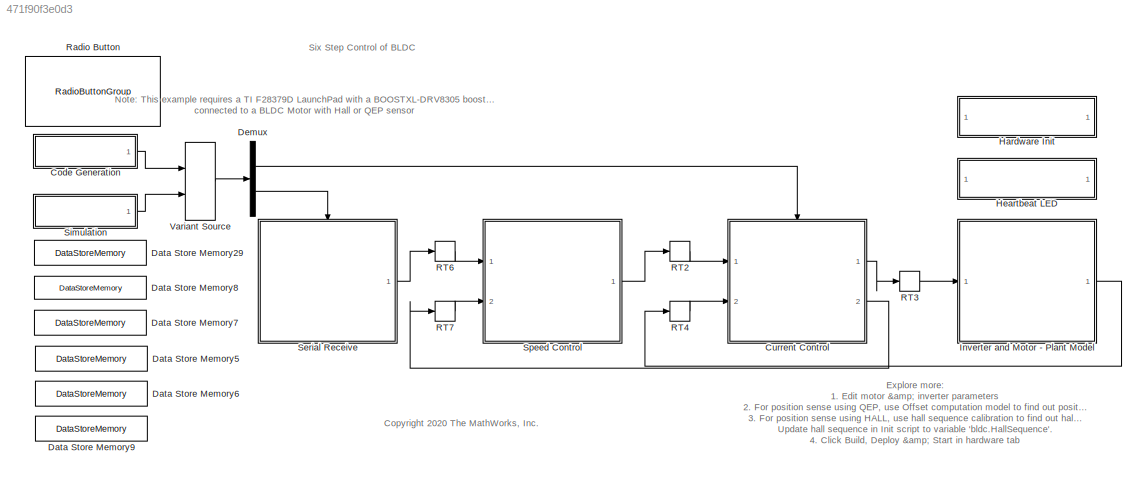
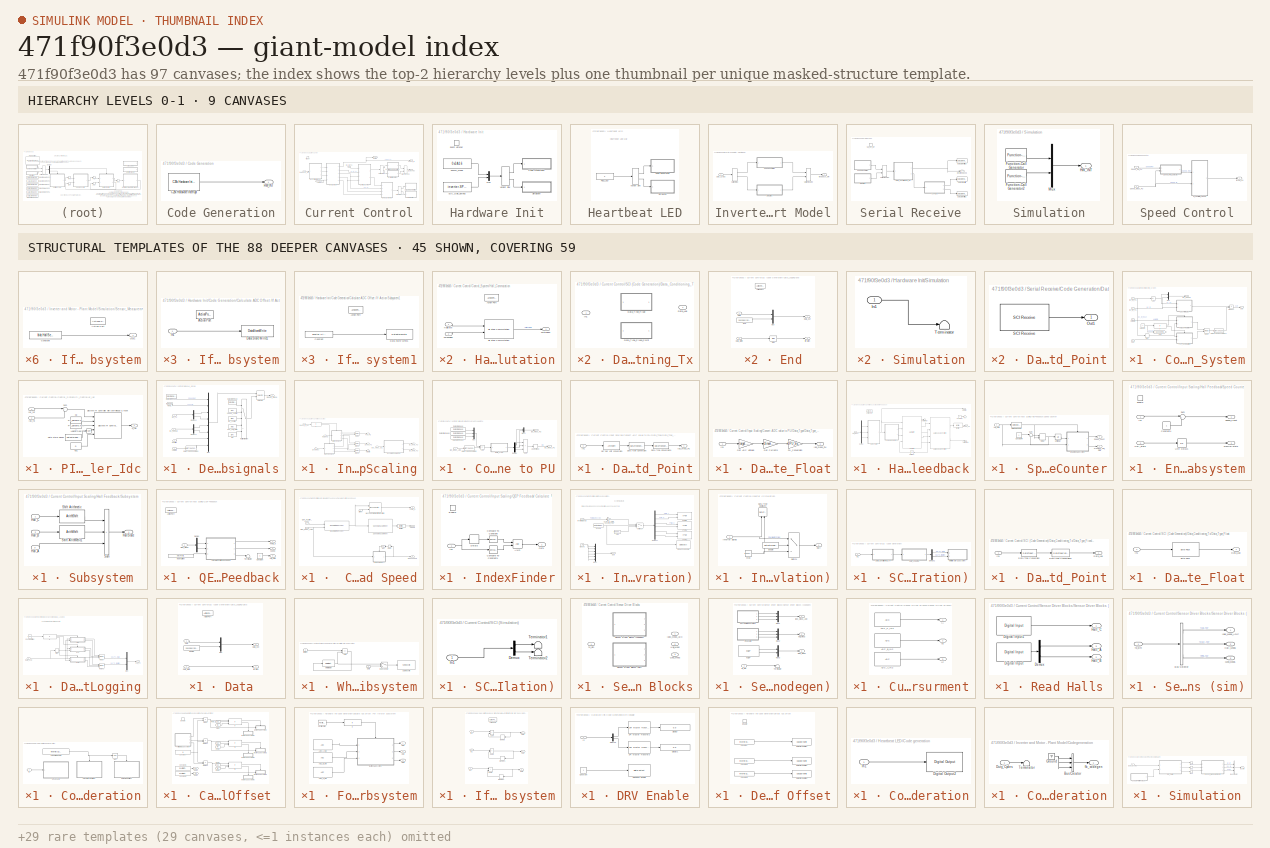
[diagram: thumbnail index - top-2 hierarchy levels (9 canvases) + 45 structural-template representatives of the remaining 88 canvases]
MODEL slx_471f90f3e0d3
KIND model
CONFIG AbsTol = auto
CONFIG EnableMultiTasking = on
CONFIG FixedStep = auto
CONFIG InitFcn = pull_data ;
CONFIG MaxStep = auto
CONFIG MinStep = auto
CONFIG RelTol = 1e-3
CONFIG SampleTimeConstraint = Unconstrained
CONFIG SolverName = FixedStepDiscrete
CONFIG StartTime = 0.0
CONFIG StopTime = 2
WORKSPACE source: mxarray member
WORKSPACE encoderResolution = 2000
WORKSPACE hallOffset = '0.5'
WORKSPACE indexOffset = 850
WORKSPACE polePairs = '4'
BLOCK [SubSystem] Code Generation
  Ports = [0, 1]
  RequestExecContextInheritance = off
BLOCK [Reference] Code Generation/C28x Hardware Interrupt  REF=c2000lib/Scheduling/C28x Hardware Interrupt
  Ports = [0, 1]
  SourceBlock = c2000lib/Scheduling/C28x Hardware Interrupt
  SourceProductBaseCode = TIC2000
  SourceType = C28x Interrupt Block
BLOCK [Outport] Code Generation/HW_INT
  VectorParamsAs1DForOutWhenUnconnected = off
BLOCK [SubSystem] Current Control
  Ports = [2, 2, 0, 1]
  RTWMemSecFuncExecute = code_ramfuncs
  RTWSystemCode = Nonreusable function
  RequestExecContextInheritance = off
BLOCK [SubSystem] Current Control/Control_System
  Ports = [4, 2]
  RequestExecContextInheritance = off
BLOCK [Abs] Current Control/Control_System/Abs
  SaturateOnIntegerOverflow = off
BLOCK [DataTypeConversion] Current Control/Control_System/Data Type Conversion1
  OutDataTypeStr = dataType
  RndMeth = Simplest
  SaturateOnIntegerOverflow = off
BLOCK [Outport] Current Control/Control_System/Duty
  VectorParamsAs1DForOutWhenUnconnected = off
BLOCK [Goto] Current Control/Control_System/Goto
  GotoTag = SpeedRefSelector
  NameLocation = top
  TagVisibility = global
BLOCK [SubSystem] Current Control/Control_System/Hall_Commutation
  Ports = [2, 1, 0, 0, 0, 0, 0, 1]
  RequestExecContextInheritance = off
BLOCK [ActionPort] Current Control/Control_System/Hall_Commutation/Action Port
  ActionPortLabel = if(u1 ==1)
BLOCK [Inport] Current Control/Control_System/Hall_Commutation/Hallstate
BLOCK [Reference] Current Control/Control_System/Hall_Commutation/Six Step Commutation  REF=mcbcontrolslib/Six Step Commutation
  Ports = [2, 1]
  SourceBlock = mcbcontrolslib/Six Step Commutation
  SourceProductBaseCode = MT
  SourceType = Six-Step Commutation
BLOCK [Inport] Current Control/Control_System/Hall_Commutation/TorqueSign
  Port = 2
BLOCK [Outport] Current Control/Control_System/Hall_Commutation/switching3
BLOCK [Inport] Current Control/Control_System/Hallstate
  Port = 4
BLOCK [Outport] Current Control/Control_System/Idc_debug
  Port = 2
  VectorParamsAs1DForOutWhenUnconnected = off
BLOCK [Inport] Current Control/Control_System/Idc_fb_PU
  Port = 2
BLOCK [Inport] Current Control/Control_System/Idc_ref_PU
BLOCK [If] Current Control/Control_System/If
  IfExpression = u1 ==1
  Ports = [1, 2]
BLOCK [Merge] Current Control/Control_System/Merge
  Ports = [2, 1]
BLOCK [Mux] Current Control/Control_System/Mux
  DisplayOption = bar
  Inputs = 2
  Ports = [2, 1]
BLOCK [SubSystem] Current Control/Control_System/PI_Controller_Idc
  Ports = [2, 1]
  RequestExecContextInheritance = off
BLOCK [DataStoreRead] Current Control/Control_System/PI_Controller_Idc/Data Store Read1
  DataStoreName = Enable
  IndexOptions = Index vector (dialog)
  Indices = 1
  OutputSizes = 1
  Ports = [0, 1]
BLOCK [Reference] Current Control/Control_System/PI_Controller_Idc/Discrete PI Controller with anti-windup & reset  REF=mcbcontrolslib/Discrete PI Controller 
with anti-windup & reset
  Ports = [5, 1]
  SourceBlock = mcbcontrolslib/Discrete PI Controller \nwith anti-windup & reset
  SourceProductBaseCode = MT
  SourceType = Discrete PI Controller with anti-windup and reset
BLOCK [Inport] Current Control/Control_System/PI_Controller_Idc/Idc_fb
  Port = 2
BLOCK [Inport] Current Control/Control_System/PI_Controller_Idc/Idc_ref
BLOCK [Constant] Current Control/Control_System/PI_Controller_Idc/Ki
  OutDataTypeStr = dataType
  SampleTime = -1
  Value = PI_params.Ki_i*Ts
BLOCK [Constant] Current Control/Control_System/PI_Controller_Idc/Kp
  NameLocation = top
  OutDataTypeStr = dataType
  SampleTime = -1
  Value = PI_params.Kp_i
BLOCK [Constant] Current Control/Control_System/PI_Controller_Idc/Kp1
  NameLocation = top
  OutDataTypeStr = dataType
  SampleTime = -1
  Value = 0
BLOCK [Logic] Current Control/Control_System/PI_Controller_Idc/Logical Operator
  AllPortsSameDT = off
  IconShape = distinctive
  Operator = NOT
  OutDataTypeStr = boolean
  Ports = [1, 1]
BLOCK [Sum] Current Control/Control_System/PI_Controller_Idc/Sum
  AccumDataTypeStr = Inherit: Same as first input
  Inputs = |+-
  OutDataTypeStr = Inherit: Same as first input
  Ports = [2, 1]
BLOCK [Outport] Current Control/Control_System/PI_Controller_Idc/V_ref
  VectorParamsAs1DForOutWhenUnconnected = off
BLOCK [Inport] Current Control/Control_System/Pos
  Port = 3
BLOCK [SubSystem] Current Control/Control_System/Pos_Commutation
  Ports = [2, 1, 0, 0, 0, 0, 0, 1]
  RequestExecContextInheritance = off
BLOCK [ActionPort] Current Control/Control_System/Pos_Commutation/Action Port
  ActionPortLabel = else
BLOCK [Inport] Current Control/Control_System/Pos_Commutation/PositionInput
  Port = 2
BLOCK [Reference] Current Control/Control_System/Pos_Commutation/Six Step Commutation  REF=mcbcontrolslib/Six Step Commutation
  Ports = [2, 1]
  SourceBlock = mcbcontrolslib/Six Step Commutation
  SourceProductBaseCode = MT
  SourceType = Six-Step Commutation
BLOCK [Inport] Current Control/Control_System/Pos_Commutation/TorqueSign
BLOCK [Outport] Current Control/Control_System/Pos_Commutation/switching3
BLOCK [Product] Current Control/Control_System/Product
  OutDataTypeStr = Inherit: Same as first input
  Ports = [2, 1]
  RndMeth = Simplest
BLOCK [Constant] Current Control/Control_System/Selector
  OutDataTypeStr = uint16
  SampleTime = -1
BLOCK [Signum] Current Control/Control_System/Sign
BLOCK [SubSystem] Current Control/Debug_signals
  Ports = [4, 1]
  RequestExecContextInheritance = off
BLOCK [DataStoreRead] Current Control/Debug_signals/Data Store Read
  DataStoreName = Debug_signals
  IndexOptions = Index vector (dialog)
  Indices = 1
  OutputSizes = 1
  Ports = [0, 1]
BLOCK [DataStoreRead] Current Control/Debug_signals/Data Store Read1
  DataStoreName = Speed_ref
  IndexOptions = Index vector (dialog)
  Indices = 1
  OutputSizes = 1
  Ports = [0, 1]
BLOCK [DataTypeConversion] Current Control/Debug_signals/Data Type Conversion
  OutDataTypeStr = dataType
  RndMeth = Simplest
  SaturateOnIntegerOverflow = off
BLOCK [Outport] Current Control/Debug_signals/Debug_signal
BLOCK [Demux] Current Control/Debug_signals/Demux1
  Outputs = 2
  Ports = [1, 2]
BLOCK [Demux] Current Control/Debug_signals/Demux2
  Outputs = 2
  Ports = [1, 2]
BLOCK [From] Current Control/Debug_signals/From1
  GotoTag = debug1
  TagVisibility = global
BLOCK [Inport] Current Control/Debug_signals/HallState
  Port = 3
BLOCK [Constant] Current Control/Debug_signals/Iab
  OutDataTypeStr = uint16
  SampleTime = -1
  Value = [3 4]
BLOCK [Inport] Current Control/Debug_signals/Iab_PU
  Port = 4
BLOCK [Constant] Current Control/Debug_signals/Idc_control
  OutDataTypeStr = uint16
  SampleTime = -1
  Value = [5 6]
BLOCK [Inport] Current Control/Debug_signals/Idc_debug
BLOCK [MultiPortSwitch] Current Control/Debug_signals/Multiport Switch
  DiagnosticForDefault = Warning
  InputSameDT = off
  Inputs = 4
  OutDataTypeStr = uint16
  Ports = [5, 1]
  RndMeth = Simplest
  SaturateOnIntegerOverflow = off
BLOCK [Mux] Current Control/Debug_signals/Mux
  DisplayOption = bar
  Inputs = 8
  Ports = [8, 1]
BLOCK [Constant] Current Control/Debug_signals/Pos_hall_state
  OutDataTypeStr = uint16
  SampleTime = -1
  Value = [7 8]
BLOCK [Inport] Current Control/Debug_signals/Position
  Port = 2
BLOCK [Selector] Current Control/Debug_signals/Selector
  IndexOptions = Index vector (port)
  Indices = [1 3]
  InputPortWidth = 8
  OutputSizes = 1
  Ports = [2, 1]
BLOCK [Constant] Current Control/Debug_signals/speed_control
  OutDataTypeStr = uint16
  SampleTime = -1
  Value = [1 2]
BLOCK [Outport] Current Control/DutyCycles
  InitialOutput = 0
  VectorParamsAs1DForOutWhenUnconnected = off
BLOCK [From] Current Control/From
  GotoTag = SpeedRefSelector
  TagVisibility = global
BLOCK [Goto] Current Control/Goto1
  GotoTag = debug1
  TagVisibility = global
BLOCK [Inport] Current Control/Idc_ref_PU
BLOCK [SubSystem] Current Control/Input Scaling
  Ports = [4, 5]
  RequestExecContextInheritance = off
BLOCK [SubSystem] Current Control/Input Scaling/Convert ADC value to PU
  Ports = [1, 2]
  RequestExecContextInheritance = off
BLOCK [Sum] Current Control/Input Scaling/Convert ADC value to PU/Add
  IconShape = rectangular
  Inputs = -+
  Ports = [2, 1]
BLOCK [DataStoreRead] Current Control/Input Scaling/Convert ADC value to PU/Data Store Read
  DataStoreName = IaOffset
  IndexOptions = Index vector (dialog)
  Indices = 1
  OutputSizes = 1
  Ports = [0, 1]
BLOCK [DataStoreRead] Current Control/Input Scaling/Convert ADC value to PU/Data Store Read1
  DataStoreName = IbOffset
  IndexOptions = Index vector (dialog)
  Indices = 1
  OutputSizes = 1
  Ports = [0, 1]
BLOCK [DataStoreRead] Current Control/Input Scaling/Convert ADC value to PU/Data Store Read2
  DataStoreName = IcOffset
  IndexOptions = Index vector (dialog)
  Indices = 1
  OutputSizes = 1
  Ports = [0, 1]
BLOCK [DataTypeConversion] Current Control/Input Scaling/Convert ADC value to PU/Data Type Conversion
  ConvertRealWorld = Stored Integer (SI)
  OutDataTypeStr = int32
  RndMeth = Floor
  SaturateOnIntegerOverflow = off
BLOCK [SubSystem] Current Control/Input Scaling/Convert ADC value to PU/Data_Type
  Ports = [1, 1]
  RequestExecContextInheritance = off
  Variant = on
BLOCK [SubSystem] Current Control/Input Scaling/Convert ADC value to PU/Data_Type/Data_Type_Fixed_Point
  Ports = [1, 1]
  RequestExecContextInheritance = off
  VariantControl = ~isequal(dataType,'single')
BLOCK [DataTypeConversion] Current Control/Input Scaling/Convert ADC value to PU/Data_Type/Data_Type_Fixed_Point/Data Type Conversion
  ConvertRealWorld = Stored Integer (SI)
  OutDataTypeStr = fixdt(1,32,17)
  RndMeth = Simplest
  SaturateOnIntegerOverflow = off
BLOCK [DataTypeConversion] Current Control/Input Scaling/Convert ADC value to PU/Data_Type/Data_Type_Fixed_Point/Data Type Conversion1
  OutDataTypeStr = dataType
  RndMeth = Simplest
  SaturateOnIntegerOverflow = off
BLOCK [Outport] Current Control/Input Scaling/Convert ADC value to PU/Data_Type/Data_Type_Fixed_Point/Iab_meas_PU
BLOCK [Inport] Current Control/Input Scaling/Convert ADC value to PU/Data_Type/Data_Type_Fixed_Point/In1
BLOCK [ArithShift] Current Control/Input Scaling/Convert ADC value to PU/Data_Type/Data_Type_Fixed_Point/Q17 per unit conversion
  BitShiftNumber = -6
  InputPortMap = u0
  Ports = [1, 1]
BLOCK [SubSystem] Current Control/Input Scaling/Convert ADC value to PU/Data_Type/Data_Type_Float
  Ports = [1, 1]
  RequestExecContextInheritance = off
  VariantControl = isequal(dataType,'single')
BLOCK [Gain] Current Control/Input Scaling/Convert ADC value to PU/Data_Type/Data_Type_Float/Get ADC Voltage
  Gain = target.ADC_Vref /target.ADC_MaxCount
  OutDataTypeStr = dataType
  RndMeth = Simplest
BLOCK [Gain] Current Control/Input Scaling/Convert ADC value to PU/Data_Type/Data_Type_Float/Get Currents
  Gain = 1/inverter.ISenseVoltPerAmp
  OutDataTypeStr = Inherit: Same as input
  RndMeth = Simplest
BLOCK [Outport] Current Control/Input Scaling/Convert ADC value to PU/Data_Type/Data_Type_Float/Iab_meas_PU
BLOCK [Inport] Current Control/Input Scaling/Convert ADC value to PU/Data_Type/Data_Type_Float/In1
BLOCK [Gain] Current Control/Input Scaling/Convert ADC value to PU/Data_Type/Data_Type_Float/PU_Conversion
  Gain = 1/PU_System.I_base
  OutDataTypeStr = Inherit: Same as input
  RndMeth = Simplest
BLOCK [Outport] Current Control/Input Scaling/Convert ADC value to PU/Data_Type/Iab_meas_PU
BLOCK [Inport] Current Control/Input Scaling/Convert ADC value to PU/Data_Type/In1
BLOCK [Demux] Current Control/Input Scaling/Convert ADC value to PU/Demux
  Outputs = 3
  Ports = [1, 3]
BLOCK [Inport] Current Control/Input Scaling/Convert ADC value to PU/Iab_meas_ADC
BLOCK [Outport] Current Control/Input Scaling/Convert ADC value to PU/Iab_meas_PU
  Port = 2
  VectorParamsAs1DForOutWhenUnconnected = off
BLOCK [Outport] Current Control/Input Scaling/Convert ADC value to PU/Idc_meas_PU
BLOCK [Mux] Current Control/Input Scaling/Convert ADC value to PU/Mux
  DisplayOption = bar
  Inputs = 3
  Ports = [3, 1]
BLOCK [Mux] Current Control/Input Scaling/Convert ADC value to PU/Mux1
  DisplayOption = bar
  Inputs = 2
  Ports = [2, 1]
BLOCK [Sum] Current Control/Input Scaling/Convert ADC value to PU/Sum
  IconShape = rectangular
  Inputs = |+++
  Ports = [3, 1]
BLOCK [UnaryMinus] Current Control/Input Scaling/Convert ADC value to PU/Unary Minus
BLOCK [SubSystem] Current Control/Input Scaling/Hall Feedback
  Ports = [1, 3, 0, 0, 0, 0, 0, 1]
  RequestExecContextInheritance = off
  TreatAsAtomicUnit = on
BLOCK [ActionPort] Current Control/Input Scaling/Hall Feedback/Action Port
  ActionPortLabel = if(u1 ==1)
BLOCK [Constant] Current Control/Input Scaling/Hall Feedback/Constant1
  LockScale = on
  OutDataTypeStr = dataType
  SampleTime = -1
BLOCK [Demux] Current Control/Input Scaling/Hall Feedback/Demux
  Outputs = 3
  Ports = [1, 3]
BLOCK [Reference] Current Control/Input Scaling/Hall Feedback/Hall Speed and Position  REF=mcbpositiondecoderlib/Hall Speed and Position
  Ports = [4, 2]
  SourceBlock = mcbpositiondecoderlib/Hall Speed and Position
  SourceProductBaseCode = MT
  SourceType = Hall Speed and Position
BLOCK [Reference] Current Control/Input Scaling/Hall Feedback/Hall Validity  REF=mcbpositiondecoderlib/Hall Validity
  Ports = [4, 5]
  SourceBlock = mcbpositiondecoderlib/Hall Validity
  SourceProductBaseCode = MT
  SourceType = Hall Validity
BLOCK [Outport] Current Control/Input Scaling/Hall Feedback/HallState
  InitialOutput = 0
  Port = 3
  VectorParamsAs1DForOutWhenUnconnected = off
BLOCK [Inport] Current Control/Input Scaling/Hall Feedback/Hall_Meas
BLOCK [Reference] Current Control/Input Scaling/Hall Feedback/IIR Filter  REF=mcbcontrolslib/IIR Filter
  Ports = [1, 1]
  SourceBlock = mcbcontrolslib/IIR Filter
  SourceProductBaseCode = MT
  SourceType = IIR Filter
BLOCK [Outport] Current Control/Input Scaling/Hall Feedback/Pos
  InitialOutput = 0
  VectorParamsAs1DForOutWhenUnconnected = off
BLOCK [SubSystem] Current Control/Input Scaling/Hall Feedback/Speed Counter
  Ports = [1, 2]
  RequestExecContextInheritance = off
BLOCK [Constant] Current Control/Input Scaling/Hall Feedback/Speed Counter/Constant4
  OutDataTypeStr = uint32
  SampleTime = -1
BLOCK [Delay] Current Control/Input Scaling/Hall Feedback/Speed Counter/Delay
  DelayLength = 1
  ExternalReset = Level
  InitialCondition = 1
  InputPortMap = u0,r5
  Ports = [2, 1]
BLOCK [Reference] Current Control/Input Scaling/Hall Feedback/Speed Counter/Detect Change  REF=simulink/Logic and Bit
Operations/Detect
Change
  Ports = [1, 1]
  SourceBlock = simulink/Logic and Bit\nOperations/Detect\nChange
  SourceProductBaseCode = SL
  SourceType = Detect Change
BLOCK [SubSystem] Current Control/Input Scaling/Hall Feedback/Speed Counter/Enabled Subsystem
  Ports = [2, 2, 1]
  RequestExecContextInheritance = off
  TreatAsAtomicUnit = on
BLOCK [Constant] Current Control/Input Scaling/Hall Feedback/Speed Counter/Enabled Subsystem/Constant4
  OutDataTypeStr = uint32
  SampleTime = -1
BLOCK [EnablePort] Current Control/Input Scaling/Hall Feedback/Speed Counter/Enabled Subsystem/Enable
  Ports = []
BLOCK [Inport] Current Control/Input Scaling/Hall Feedback/Speed Counter/Enabled Subsystem/Hall_State
  Port = 2
BLOCK [Inport] Current Control/Input Scaling/Hall Feedback/Speed Counter/Enabled Subsystem/In1
BLOCK [Outport] Current Control/Input Scaling/Hall Feedback/Speed Counter/Enabled Subsystem/PrevHallState
  Port = 2
BLOCK [Outport] Current Control/Input Scaling/Hall Feedback/Speed Counter/Enabled Subsystem/Speed_Count
BLOCK [Sum] Current Control/Input Scaling/Hall Feedback/Speed Counter/Enabled Subsystem/Sum
  AccumDataTypeStr = uint32
  Inputs = |++
  OutDataTypeStr = uint32
  Ports = [2, 1]
  RndMeth = Simplest
BLOCK [UnitDelay] Current Control/Input Scaling/Hall Feedback/Speed Counter/Enabled Subsystem/Unit Delay1
  HasFrameUpgradeWarning = on
  InitialCondition = 1
  SampleTime = -1
BLOCK [Inport] Current Control/Input Scaling/Hall Feedback/Speed Counter/Hall_State
BLOCK [Outport] Current Control/Input Scaling/Hall Feedback/Speed Counter/Previous_Hall_State
BLOCK [Outport] Current Control/Input Scaling/Hall Feedback/Speed Counter/Speed_Count
  Port = 2
BLOCK [Sum] Current Control/Input Scaling/Hall Feedback/Speed Counter/Sum
  AccumDataTypeStr = uint32
  Inputs = |++
  OutDataTypeStr = uint32
  Ports = [2, 1]
  RndMeth = Simplest
BLOCK [UnitDelay] Current Control/Input Scaling/Hall Feedback/Speed Counter/Unit Delay
  HasFrameUpgradeWarning = on
  InitialCondition = 1
  SampleTime = -1
BLOCK [Outport] Current Control/Input Scaling/Hall Feedback/Speed_PU
  InitialOutput = 0
  NameLocation = top
  Port = 2
  VectorParamsAs1DForOutWhenUnconnected = off
BLOCK [SubSystem] Current Control/Input Scaling/Hall Feedback/Subsystem
  Ports = [3, 1]
  RequestExecContextInheritance = off
BLOCK [Outport] Current Control/Input Scaling/Hall Feedback/Subsystem/HallState
BLOCK [Inport] Current Control/Input Scaling/Hall Feedback/Subsystem/Hall_A
  Port = 3
BLOCK [Inport] Current Control/Input Scaling/Hall Feedback/Subsystem/Hall_B
  Port = 2
BLOCK [Inport] Current Control/Input Scaling/Hall Feedback/Subsystem/Hall_C
BLOCK [ArithShift] Current Control/Input Scaling/Hall Feedback/Subsystem/Shift Arithmetic
  BitShiftDirection = Left
  BitShiftNumber = 2
  InputPortMap = u0
  NameLocation = right
  Ports = [1, 1]
BLOCK [ArithShift] Current Control/Input Scaling/Hall Feedback/Subsystem/Shift Arithmetic1
  BitShiftDirection = Left
  BitShiftNumber = 1
  InputPortMap = u0
  Ports = [1, 1]
BLOCK [Sum] Current Control/Input Scaling/Hall Feedback/Subsystem/Sum
  IconShape = rectangular
  Inputs = +++
  Ports = [3, 1]
BLOCK [Terminator] Current Control/Input Scaling/Hall Feedback/Terminator
BLOCK [Terminator] Current Control/Input Scaling/Hall Feedback/Terminator1
BLOCK [UnitDelay] Current Control/Input Scaling/Hall Feedback/Unit Delay
  HasFrameUpgradeWarning = on
  InitialCondition = 1
  NameLocation = top
  SampleTime = -1
BLOCK [Outport] Current Control/Input Scaling/HallState
  InitialOutput = 0
  Port = 4
  VectorParamsAs1DForOutWhenUnconnected = off
BLOCK [Inport] Current Control/Input Scaling/Hall_Meas
  Port = 2
BLOCK [Outport] Current Control/Input Scaling/Iab_meas_PU
  Port = 5
  VectorParamsAs1DForOutWhenUnconnected = off
BLOCK [Inport] Current Control/Input Scaling/Iabc_meas_ADC
BLOCK [Outport] Current Control/Input Scaling/Idc_meas_PU
  Port = 2
  VectorParamsAs1DForOutWhenUnconnected = off
BLOCK [If] Current Control/Input Scaling/If
  IfExpression = u1 ==1
  Ports = [1, 2]
BLOCK [Merge] Current Control/Input Scaling/Merge
  Ports = [2, 1]
BLOCK [Merge] Current Control/Input Scaling/Merge1
  Ports = [2, 1]
BLOCK [Merge] Current Control/Input Scaling/Merge2
  Ports = [2, 1]
BLOCK [Outport] Current Control/Input Scaling/Pos_PU
  InitialOutput = 0
  Port = 3
  VectorParamsAs1DForOutWhenUnconnected = off
BLOCK [SubSystem] Current Control/Input Scaling/QEP Feedback
  Ports = [1, 3, 0, 0, 0, 0, 0, 1]
  RequestExecContextInheritance = off
  TreatAsAtomicUnit = on
BLOCK [SubSystem] Current Control/Input Scaling/QEP Feedback/ Calculate Position and Speed
  Ports = [3, 3]
  RequestExecContextInheritance = off
BLOCK [Delay] Current Control/Input Scaling/QEP Feedback/ Calculate Position and Speed/Delay
  DelayLength = 1
  InputPortMap = u0
  Ports = [1, 1]
BLOCK [Reference] Current Control/Input Scaling/QEP Feedback/ Calculate Position and Speed/IIR Filter  REF=mcbcontrolslib/IIR Filter
  Ports = [1, 1]
  SourceBlock = mcbcontrolslib/IIR Filter
  SourceProductBaseCode = MT
  SourceType = IIR Filter
BLOCK [SubSystem] Current Control/Input Scaling/QEP Feedback/ Calculate Position and Speed/IndexFinder
  Ports = [1, 1, 1]
  RequestExecContextInheritance = off
BLOCK [Logic] Current Control/Input Scaling/QEP Feedback/ Calculate Position and Speed/IndexFinder/AND
  AllPortsSameDT = off
  OutDataTypeStr = boolean
  Ports = [2, 1]
BLOCK [Reference] Current Control/Input Scaling/QEP Feedback/ Calculate Position and Speed/IndexFinder/Compare To Constant  REF=simulink/Logic and Bit
Operations/Compare
To Constant
  Ports = [1, 1]
  SourceBlock = simulink/Logic and Bit\nOperations/Compare\nTo Constant
  SourceProductBaseCode = SL
  SourceType = Compare To Constant
BLOCK [Reference] Current Control/Input Scaling/QEP Feedback/ Calculate Position and Speed/IndexFinder/Compare To Constant1  REF=simulink/Logic and Bit
Operations/Compare
To Constant
  Ports = [1, 1]
  SourceBlock = simulink/Logic and Bit\nOperations/Compare\nTo Constant
  SourceProductBaseCode = SL
  SourceType = Compare To Constant
BLOCK [Delay] Current Control/Input Scaling/QEP Feedback/ Calculate Position and Speed/IndexFinder/Delay3
  DelayLength = 1
  InputPortMap = u0
  Ports = [1, 1]
BLOCK [EnablePort] Current Control/Input Scaling/QEP Feedback/ Calculate Position and Speed/IndexFinder/Enable
  Ports = []
BLOCK [Inport] Current Control/Input Scaling/QEP Feedback/ Calculate Position and Speed/IndexFinder/In1
BLOCK [Outport] Current Control/Input Scaling/QEP Feedback/ Calculate Position and Speed/IndexFinder/Out1
BLOCK [Outport] Current Control/Input Scaling/QEP Feedback/ Calculate Position and Speed/IndexFound
  InitialOutput = 0
  Port = 3
  VectorParamsAs1DForOutWhenUnconnected = off
BLOCK [Reference] Current Control/Input Scaling/QEP Feedback/ Calculate Position and Speed/Mechanical to Electrical Position  REF=mcbpositiondecoderlib/Mechanical to Electrical Position
  Ports = [2, 1]
  SourceBlock = mcbpositiondecoderlib/Mechanical to Electrical Position
  SourceProductBaseCode = MT
  SourceType = Mechanical to Electrical Position
BLOCK [Logic] Current Control/Input Scaling/QEP Feedback/ Calculate Position and Speed/NOT
  AllPortsSameDT = off
  Operator = NOT
  OutDataTypeStr = boolean
  Ports = [1, 1]
BLOCK [Inport] Current Control/Input Scaling/QEP Feedback/ Calculate Position and Speed/Offset
  Port = 3
BLOCK [Inport] Current Control/Input Scaling/QEP Feedback/ Calculate Position and Speed/QEP_Index_Latch
  Port = 2
BLOCK [Inport] Current Control/Input Scaling/QEP Feedback/ Calculate Position and Speed/QEP_Position_Count
BLOCK [Reference] Current Control/Input Scaling/QEP Feedback/ Calculate Position and Speed/Quadrature Decoder  REF=mcbpositiondecoderlib/Quadrature Decoder
  Ports = [2, 1]
  SourceBlock = mcbpositiondecoderlib/Quadrature Decoder
  SourceProductBaseCode = MT
  SourceType = Quadrature Decoder
BLOCK [Reference] Current Control/Input Scaling/QEP Feedback/ Calculate Position and Speed/Speed Measurement  REF=mcbpositiondecoderlib/Speed Measurement
  Ports = [1, 1]
  SourceBlock = mcbpositiondecoderlib/Speed Measurement
  SourceProductBaseCode = MT
  SourceType = Speed Measurement
BLOCK [Outport] Current Control/Input Scaling/QEP Feedback/ Calculate Position and Speed/Theta_e
  VectorParamsAs1DForOutWhenUnconnected = off
BLOCK [Outport] Current Control/Input Scaling/QEP Feedback/ Calculate Position and Speed/speed
  Port = 2
  VectorParamsAs1DForOutWhenUnconnected = off
BLOCK [ActionPort] Current Control/Input Scaling/QEP Feedback/Action Port
  ActionPortLabel = else
BLOCK [Constant] Current Control/Input Scaling/QEP Feedback/Constant
  LockScale = on
  OutDataTypeStr = uint32
  SampleTime = -1
BLOCK [Demux] Current Control/Input Scaling/QEP Feedback/Demux
  Outputs = 2
  Ports = [1, 2]
BLOCK [Outport] Current Control/Input Scaling/QEP Feedback/Hall_State
  Port = 3
BLOCK [Constant] Current Control/Input Scaling/QEP Feedback/IndexOffset
  OutDataTypeStr = dataType
  SampleTime = -1
  Value = bldc.PositionOffset
BLOCK [Inport] Current Control/Input Scaling/QEP Feedback/Qep_Meas
BLOCK [Terminator] Current Control/Input Scaling/QEP Feedback/Terminator
BLOCK [Outport] Current Control/Input Scaling/QEP Feedback/Theta_e
BLOCK [Outport] Current Control/Input Scaling/QEP Feedback/speed
  Port = 2
BLOCK [Inport] Current Control/Input Scaling/Qep_Meas
  Port = 3
BLOCK [Outport] Current Control/Input Scaling/Speed_PU
  InitialOutput = 0
  VectorParamsAs1DForOutWhenUnconnected = off
BLOCK [Inport] Current Control/Input Scaling/Speed_fb_Sel
  Port = 4
BLOCK [SubSystem] Current Control/Inverter (Code Generation)
  Ports = [1, 1]
  RequestExecContextInheritance = off
BLOCK [Reference] Current Control/Inverter (Code Generation)/DRV830x Enable  REF=c2837xDlib/Digital Output
  Ports = [1]
  SourceBlock = c2837xDlib/Digital Output
  SourceProductBaseCode = TIC2000
  SourceType = F2837x GPIO Digital Output
  UserDataPersistent = on
BLOCK [Demux] Current Control/Inverter (Code Generation)/Demux1
  Outputs = 6
  Ports = [1, 6]
BLOCK [Outport] Current Control/Inverter (Code Generation)/Duty
  VectorParamsAs1DForOutWhenUnconnected = off
BLOCK [DataStoreRead] Current Control/Inverter (Code Generation)/Enable
  DataStoreName = Enable
  IndexOptions = Index vector (dialog)
  Indices = 1
  OutputSizes = 1
  Ports = [0, 1]
BLOCK [Ground] Current Control/Inverter (Code Generation)/Ground
  NameLocation = top
BLOCK [Inport] Current Control/Inverter (Code Generation)/Inverter Signals
BLOCK [Mux] Current Control/Inverter (Code Generation)/Mux1
  DisplayOption = bar
  Inputs = 6
  Ports = [6, 1]
BLOCK [Gain] Current Control/Inverter (Code Generation)/Scale_to_PWM_Counter_PRD
  Gain = target.PWM_Counter_Period
  OutDataTypeStr = uint16
  RndMeth = Simplest
BLOCK [Switch] Current Control/Inverter (Code Generation)/Switch1
  InputSameDT = off
  SaturateOnIntegerOverflow = off
  Threshold = 0.5
BLOCK [Reference] Current Control/Inverter (Code Generation)/ePWM1  REF=c2802xlib/ePWM
  Ports = [2]
  SourceBlock = c2802xlib/ePWM
  SourceProductBaseCode = TIC2000
  SourceType = C2802x/03x/05x/06x/M3x/37x/07x/004x/38x/002x ePWM
  UserDataPersistent = on
BLOCK [Reference] Current Control/Inverter (Code Generation)/ePWM2  REF=c2802xlib/ePWM
  Ports = [2]
  SourceBlock = c2802xlib/ePWM
  SourceProductBaseCode = TIC2000
  SourceType = C2802x/03x/05x/06x/M3x/37x/07x/004x/38x/002x ePWM
  UserDataPersistent = on
BLOCK [Reference] Current Control/Inverter (Code Generation)/ePWM3  REF=c2802xlib/ePWM
  Ports = [2]
  SourceBlock = c2802xlib/ePWM
  SourceProductBaseCode = TIC2000
  SourceType = C2802x/03x/05x/06x/M3x/37x/07x/004x/38x/002x ePWM
  UserDataPersistent = on
BLOCK [Constant] Current Control/Inverter (Code Generation)/stop
  OutDataTypeStr = uint16
  Value = [0 0 0 0 0 0]
BLOCK [SubSystem] Current Control/Inverter (Simulation)
  Ports = [1, 1]
  RequestExecContextInheritance = off
BLOCK [DataTypeDuplicate] Current Control/Inverter (Simulation)/Data Type Duplicate
  Ports = [2]
BLOCK [Outport] Current Control/Inverter (Simulation)/Duty
  VectorParamsAs1DForOutWhenUnconnected = off
BLOCK [DataStoreRead] Current Control/Inverter (Simulation)/Enable
  DataStoreName = Enable
  IndexOptions = Index vector (dialog)
  Indices = 1
  OutputSizes = 1
  Ports = [0, 1]
BLOCK [Inport] Current Control/Inverter (Simulation)/Inverter Signals
BLOCK [Switch] Current Control/Inverter (Simulation)/Switch1
  InputSameDT = off
  RndMeth = Simplest
  SaturateOnIntegerOverflow = off
  Threshold = 0.5
BLOCK [Constant] Current Control/Inverter (Simulation)/stop
  OutDataTypeStr = Inherit: Inherit via back propagation
  Value = [0 0 0 0 0 0]
BLOCK [SubSystem] Current Control/SCI (Code Generation)
  Ports = [1]
  RequestExecContextInheritance = off
BLOCK [SubSystem] Current Control/SCI (Code Generation)/Data_Conditioning_Tx
  Ports = [1, 1]
  RequestExecContextInheritance = off
  Variant = on
BLOCK [Outport] Current Control/SCI (Code Generation)/Data_Conditioning_Tx/Data_Log
BLOCK [SubSystem] Current Control/SCI (Code Generation)/Data_Conditioning_Tx/Data_Type_Fixed_Point
  Ports = [1, 1]
  RequestExecContextInheritance = off
  VariantControl = ~isequal(dataType,'single')
BLOCK [DataTypeConversion] Current Control/SCI (Code Generation)/Data_Conditioning_Tx/Data_Type_Fixed_Point/Data Type Conversion
  OutDataTypeStr = fixdt(1,32,28)
  RndMeth = Simplest
  SaturateOnIntegerOverflow = off
BLOCK [DataTypeConversion] Current Control/SCI (Code Generation)/Data_Conditioning_Tx/Data_Type_Fixed_Point/Data Type Conversion3
  ConvertRealWorld = Stored Integer (SI)
  OutDataTypeStr = uint32
  RndMeth = Simplest
  SaturateOnIntegerOverflow = off
BLOCK [Outport] Current Control/SCI (Code Generation)/Data_Conditioning_Tx/Data_Type_Fixed_Point/Data_Log
BLOCK [Inport] Current Control/SCI (Code Generation)/Data_Conditioning_Tx/Data_Type_Fixed_Point/In1
BLOCK [SubSystem] Current Control/SCI (Code Generation)/Data_Conditioning_Tx/Data_Type_Float
  Ports = [1, 1]
  RequestExecContextInheritance = off
  VariantControl = isequal(dataType, 'single')
BLOCK [Reference] Current Control/SCI (Code Generation)/Data_Conditioning_Tx/Data_Type_Float/Byte Pack  REF=svdutilitieslib/Byte Pack
  Ports = [1, 1]
  SourceBlock = svdutilitieslib/Byte Pack
  SourceProductBaseCode = ANDROID,ARDUINO,ML_ARDUINO,ECCORTEXA,ECCORTEXR,SC_BEAGLEBONE_BLUE,EC_FREEDOM_BOARD,EC_FRDM_K64F,INTEL_BLOCKSET,JETSONCPU,MICROBIT,NUCLEO,NVIDIA,PX4AUTOPILOTS,RASPPIIO,STMICRODIS,TIC2000,XILINX_BLOCKSET
  SourceType = Byte pack
BLOCK [Outport] Current Control/SCI (Code Generation)/Data_Conditioning_Tx/Data_Type_Float/Data_Log
BLOCK [Inport] Current Control/SCI (Code Generation)/Data_Conditioning_Tx/Data_Type_Float/In1
BLOCK [Inport] Current Control/SCI (Code Generation)/Data_Conditioning_Tx/In1
BLOCK [SubSystem] Current Control/SCI (Code Generation)/Data_Logging
  Ports = [1, 1]
  RequestExecContextInheritance = off
BLOCK [Reference] Current Control/SCI (Code Generation)/Data_Logging/Counter Limited  REF=simulink/Sources/Counter
Limited
  Ports = [0, 1]
  SourceBlock = simulink/Sources/Counter\nLimited
  SourceProductBaseCode = SL
  SourceType = Counter Limited
BLOCK [SubSystem] Current Control/SCI (Code Generation)/Data_Logging/Data
  Ports = [2, 2, 0, 0, 0, 0, 0, 1]
  RequestExecContextInheritance = off
  TreatAsAtomicUnit = on
BLOCK [ActionPort] Current Control/SCI (Code Generation)/Data_Logging/Data/Action Port
  ActionPortLabel = else
BLOCK [Inport] Current Control/SCI (Code Generation)/Data_Logging/Data/Data
BLOCK [Outport] Current Control/SCI (Code Generation)/Data_Logging/Data/Data_out
  VectorParamsAs1DForOutWhenUnconnected = off
BLOCK [Inport] Current Control/SCI (Code Generation)/Data_Logging/Data/Data_width
  Port = 2
BLOCK [Constant] Current Control/SCI (Code Generation)/Data_Logging/Data/Dummy
  OutDataTypeStr = uint32
  Value = hex2dec('0000')
BLOCK [Outport] Current Control/SCI (Code Generation)/Data_Logging/Data/Iteration
  Port = 2
  VectorParamsAs1DForOutWhenUnconnected = off
BLOCK [Mux] Current Control/SCI (Code Generation)/Data_Logging/Data/Mux
  DisplayOption = bar
  Inputs = 2
  Ports = [2, 1]
BLOCK [Inport] Current Control/SCI (Code Generation)/Data_Logging/Data_Log
BLOCK [SubSystem] Current Control/SCI (Code Generation)/Data_Logging/End
  Ports = [2, 2, 0, 0, 0, 0, 0, 1]
  RequestExecContextInheritance = off
  TreatAsAtomicUnit = on
BLOCK [ActionPort] Current Control/SCI (Code Generation)/Data_Logging/End/Action Port
  ActionPortLabel = elseif(u1 == 599)
BLOCK [Bias] Current Control/SCI (Code Generation)/Data_Logging/End/Bias
  Bias = 1
  SaturateOnIntegerOverflow = off
BLOCK [Inport] Current Control/SCI (Code Generation)/Data_Logging/End/Data
BLOCK [Outport] Current Control/SCI (Code Generation)/Data_Logging/End/Data_out
  VectorParamsAs1DForOutWhenUnconnected = off
BLOCK [Inport] Current Control/SCI (Code Generation)/Data_Logging/End/Data_width
  Port = 2
BLOCK [Constant] Current Control/SCI (Code Generation)/Data_Logging/End/End
  OutDataTypeStr = uint32
  Value = hex2dec('45454545')
BLOCK [Outport] Current Control/SCI (Code Generation)/Data_Logging/End/Iteration
  Port = 2
  VectorParamsAs1DForOutWhenUnconnected = off
BLOCK [Mux] Current Control/SCI (Code Generation)/Data_Logging/End/Mux
  DisplayOption = bar
  Inputs = 2
  Ports = [2, 1]
BLOCK [If] Current Control/SCI (Code Generation)/Data_Logging/If
  ElseIfExpressions = u1 == 599
  IfExpression = u1 == 0
  Ports = [1, 3]
BLOCK [Merge] Current Control/SCI (Code Generation)/Data_Logging/Merge
  Inputs = 3
  Ports = [3, 1]
BLOCK [Merge] Current Control/SCI (Code Generation)/Data_Logging/Merge1
  Inputs = 3
  Ports = [3, 1]
BLOCK [Mux] Current Control/SCI (Code Generation)/Data_Logging/Mux
  DisplayOption = bar
  Inputs = 2
  Ports = [2, 1]
BLOCK [Outport] Current Control/SCI (Code Generation)/Data_Logging/SCI_Tx
BLOCK [SubSystem] Current Control/SCI (Code Generation)/Data_Logging/Start
  Ports = [2, 2, 0, 0, 0, 0, 0, 1]
  RequestExecContextInheritance = off
  TreatAsAtomicUnit = on
BLOCK [ActionPort] Current Control/SCI (Code Generation)/Data_Logging/Start/Action Port
  ActionPortLabel = if(u1 == 0)
BLOCK [Bias] Current Control/SCI (Code Generation)/Data_Logging/Start/Bias
  Bias = 1
  SaturateOnIntegerOverflow = off
BLOCK [Inport] Current Control/SCI (Code Generation)/Data_Logging/Start/Data
BLOCK [Outport] Current Control/SCI (Code Generation)/Data_Logging/Start/Data_out
  VectorParamsAs1DForOutWhenUnconnected = off
BLOCK [Inport] Current Control/SCI (Code Generation)/Data_Logging/Start/Data_width
  Port = 2
BLOCK [Outport] Current Control/SCI (Code Generation)/Data_Logging/Start/Iteration
  Port = 2
  VectorParamsAs1DForOutWhenUnconnected = off
BLOCK [Mux] Current Control/SCI (Code Generation)/Data_Logging/Start/Mux
  DisplayOption = bar
  Inputs = 2
  Ports = [2, 1]
BLOCK [Constant] Current Control/SCI (Code Generation)/Data_Logging/Start/Start
  OutDataTypeStr = uint32
  Value = hex2dec('53535353')
BLOCK [Width] Current Control/SCI (Code Generation)/Data_Logging/Width
  DataType = uint16
  OutDataTypeMode = All ports same datatype
BLOCK [Demux] Current Control/SCI (Code Generation)/Demux2
  Outputs = 2
  Ports = [1, 2]
BLOCK [Inport] Current Control/SCI (Code Generation)/In1
BLOCK [SubSystem] Current Control/SCI (Code Generation)/While Iterator Subsystem
  Ports = [2]
  RequestExecContextInheritance = off
  TreatAsAtomicUnit = on
BLOCK [Sum] Current Control/SCI (Code Generation)/While Iterator Subsystem/Add
  IconShape = rectangular
  Inputs = +-
  OutDataTypeStr = Inherit: Same as first input
  Ports = [2, 1]
BLOCK [Inport] Current Control/SCI (Code Generation)/While Iterator Subsystem/Data
BLOCK [MultiPortSwitch] Current Control/SCI (Code Generation)/While Iterator Subsystem/Index Vector
  InputSameDT = off
  Inputs = 1
  Ports = [2, 1]
  SaturateOnIntegerOverflow = off
BLOCK [Inport] Current Control/SCI (Code Generation)/While Iterator Subsystem/Iteration
  Port = 2
BLOCK [Reference] Current Control/SCI (Code Generation)/While Iterator Subsystem/SCI Transmit  REF=c280xlib/SCI Transmit
  Ports = [1]
  SourceBlock = c280xlib/SCI Transmit
  SourceProductBaseCode = TIC2000
  SourceType = C28x SCI Transmit
BLOCK [WhileIterator] Current Control/SCI (Code Generation)/While Iterator Subsystem/While Iterator
  MaxIters = -1
  OutputDataType = int16
  Ports = [1, 1]
  ShowIterationPort = on
  WhileBlockType = do-while
BLOCK [SubSystem] Current Control/SCI (Simulation)
  Ports = [1]
  RequestExecContextInheritance = off
BLOCK [Demux] Current Control/SCI (Simulation)/Demux
  Outputs = 2
  Ports = [1, 2]
BLOCK [Inport] Current Control/SCI (Simulation)/In1
BLOCK [Terminator] Current Control/SCI (Simulation)/Terminator1
BLOCK [Terminator] Current Control/SCI (Simulation)/Terminator2
BLOCK [SubSystem] Current Control/Sensor Driver Blocks
  Ports = [1, 3]
  RequestExecContextInheritance = off
  Variant = on
  VariantControlMode = sim codegen switching
BLOCK [Outport] Current Control/Sensor Driver Blocks/Hall_Meas
  Port = 2
BLOCK [Outport] Current Control/Sensor Driver Blocks/Iabc_Meas_ADC
BLOCK [Outport] Current Control/Sensor Driver Blocks/Qep_Meas
  Port = 3
BLOCK [SubSystem] Current Control/Sensor Driver Blocks/Sensor Driver Blocks (codegen)
  Ports = [1, 3]
  RequestExecContextInheritance = off
  VariantControl = (codegen)
BLOCK [SubSystem] Current Control/Sensor Driver Blocks/Sensor Driver Blocks (codegen)/Current Measurment
  Ports = [0, 3]
  RequestExecContextInheritance = off
BLOCK [Reference] Current Control/Sensor Driver Blocks/Sensor Driver Blocks (codegen)/Current Measurment/ADC_A_IN2  REF=c2802xlib/ADC
  Ports = [0, 1]
  SourceBlock = c2802xlib/ADC
  SourceProductBaseCode = TIC2000
  SourceType = C2802x/03x/05x/06x/M3x/37x/07x/004x/38x/002x ADC
  UserDataPersistent = on
BLOCK [Reference] Current Control/Sensor Driver Blocks/Sensor Driver Blocks (codegen)/Current Measurment/ADC_B_IN2  REF=c2802xlib/ADC
  Ports = [0, 1]
  SourceBlock = c2802xlib/ADC
  SourceProductBaseCode = TIC2000
  SourceType = C2802x/03x/05x/06x/M3x/37x/07x/004x/38x/002x ADC
  UserDataPersistent = on
BLOCK [Reference] Current Control/Sensor Driver Blocks/Sensor Driver Blocks (codegen)/Current Measurment/ADC_C_IN2  REF=c2802xlib/ADC
  Ports = [0, 1]
  SourceBlock = c2802xlib/ADC
  SourceProductBaseCode = TIC2000
  SourceType = C2802x/03x/05x/06x/M3x/37x/07x/004x/38x/002x ADC
  UserDataPersistent = on
BLOCK [Outport] Current Control/Sensor Driver Blocks/Sensor Driver Blocks (codegen)/Current Measurment/IA
BLOCK [Outport] Current Control/Sensor Driver Blocks/Sensor Driver Blocks (codegen)/Current Measurment/IB
  Port = 2
BLOCK [Outport] Current Control/Sensor Driver Blocks/Sensor Driver Blocks (codegen)/Current Measurment/IC
  Port = 3
BLOCK [Outport] Current Control/Sensor Driver Blocks/Sensor Driver Blocks (codegen)/Hall_Meas
  Port = 2
BLOCK [Outport] Current Control/Sensor Driver Blocks/Sensor Driver Blocks (codegen)/Iabc_Meas_ADC
BLOCK [Mux] Current Control/Sensor Driver Blocks/Sensor Driver Blocks (codegen)/Mux1
  DisplayOption = bar
  Inputs = 3
  Ports = [3, 1]
BLOCK [Mux] Current Control/Sensor Driver Blocks/Sensor Driver Blocks (codegen)/Mux2
  DisplayOption = bar
  Inputs = 3
  Ports = [3, 1]
BLOCK [Mux] Current Control/Sensor Driver Blocks/Sensor Driver Blocks (codegen)/Mux3
  DisplayOption = bar
  Inputs = 2
  Ports = [2, 1]
BLOCK [Outport] Current Control/Sensor Driver Blocks/Sensor Driver Blocks (codegen)/Qep_Meas
  Port = 3
BLOCK [SubSystem] Current Control/Sensor Driver Blocks/Sensor Driver Blocks (codegen)/Read Halls
  Ports = [0, 3]
  RequestExecContextInheritance = off
BLOCK [Demux] Current Control/Sensor Driver Blocks/Sensor Driver Blocks (codegen)/Read Halls/Demux
  Outputs = 2
  Ports = [1, 2]
BLOCK [Reference] Current Control/Sensor Driver Blocks/Sensor Driver Blocks (codegen)/Read Halls/Digital Input  REF=c2837xDlib/Digital Input
  Ports = [0, 1]
  SourceBlock = c2837xDlib/Digital Input
  SourceProductBaseCode = TIC2000
  SourceType = F2837x GPIO Digital Input
  UserDataPersistent = on
BLOCK [Reference] Current Control/Sensor Driver Blocks/Sensor Driver Blocks (codegen)/Read Halls/Digital Input1  REF=c2837xDlib/Digital Input
  Ports = [0, 1]
  SourceBlock = c2837xDlib/Digital Input
  SourceProductBaseCode = TIC2000
  SourceType = F2837x GPIO Digital Input
  UserDataPersistent = on
BLOCK [Outport] Current Control/Sensor Driver Blocks/Sensor Driver Blocks (codegen)/Read Halls/Hall_A
  Port = 3
BLOCK [Outport] Current Control/Sensor Driver Blocks/Sensor Driver Blocks (codegen)/Read Halls/Hall_B
  Port = 2
BLOCK [Outport] Current Control/Sensor Driver Blocks/Sensor Driver Blocks (codegen)/Read Halls/Hall_C
BLOCK [Terminator] Current Control/Sensor Driver Blocks/Sensor Driver Blocks (codegen)/Terminator
BLOCK [Reference] Current Control/Sensor Driver Blocks/Sensor Driver Blocks (codegen)/eQEP  REF=c280xlib/eQEP
  Ports = [0, 2]
  SourceBlock = c280xlib/eQEP
  SourceProductBaseCode = TIC2000
  SourceType = C28x eQEP
BLOCK [Inport] Current Control/Sensor Driver Blocks/Sensor Driver Blocks (codegen)/fb_sim
BLOCK [SubSystem] Current Control/Sensor Driver Blocks/Sensor Driver Blocks (sim)
  Ports = [1, 3]
  RequestExecContextInheritance = off
  VariantControl = (sim)
BLOCK [BusSelector] Current Control/Sensor Driver Blocks/Sensor Driver Blocks (sim)/Bus Selector
  OutputSignals = Iac_fb,Hall_fb,Pos_fb
  Ports = [1, 3]
BLOCK [Outport] Current Control/Sensor Driver Blocks/Sensor Driver Blocks (sim)/Hall_Meas
  Port = 2
BLOCK [Outport] Current Control/Sensor Driver Blocks/Sensor Driver Blocks (sim)/Iabc_Meas_ADC
BLOCK [Outport] Current Control/Sensor Driver Blocks/Sensor Driver Blocks (sim)/Qep_Meas
  Port = 3
BLOCK [Inport] Current Control/Sensor Driver Blocks/Sensor Driver Blocks (sim)/fb_sim
BLOCK [Inport] Current Control/Sensor Driver Blocks/fb_sim
BLOCK [Outport] Current Control/Speed_fb
  InitialOutput = 0
  Port = 2
  VectorParamsAs1DForOutWhenUnconnected = off
BLOCK [TriggerPort] Current Control/Trigger
  PortDimensions = 1
  Ports = []
  StatesWhenEnabling = held
  TriggerType = function-call
  VariantControl = Variant
BLOCK [VariantSink] Current Control/Variant Sink
  Ports = [1, 2]
  VariantControlMode = sim codegen switching
BLOCK [VariantSink] Current Control/Variant Sink2
  Ports = [1, 2]
  VariantControlMode = sim codegen switching
BLOCK [VariantSource] Current Control/Variant Source1
  Ports = [2, 1]
  VariantControlMode = sim codegen switching
BLOCK [Inport] Current Control/feedback_sim
  Port = 2
BLOCK [DataStoreMemory] Data Store Memory29
  DataStoreName = Enable
  OutDataTypeStr = boolean
  ShowAdditionalParam = off
BLOCK [DataStoreMemory] Data Store Memory5
  DataStoreName = IaOffset
  InitialValue = inverter.CtSensAOffset
  ShowAdditionalParam = off
BLOCK [DataStoreMemory] Data Store Memory6
  DataStoreName = IbOffset
  InitialValue = inverter.CtSensBOffset
  NameLocation = top
  ShowAdditionalParam = off
BLOCK [DataStoreMemory] Data Store Memory7
  DataStoreName = Debug_signals
  InitialValue = 5
  OutDataTypeStr = uint16
  ReadBeforeWriteMsg = warning
  ShowAdditionalParam = off
  WriteAfterReadMsg = warning
  WriteAfterWriteMsg = warning
BLOCK [DataStoreMemory] Data Store Memory8
  DataStoreName = Speed_ref
  OutDataTypeStr = dataType
  ReadBeforeWriteMsg = warning
  ShowAdditionalParam = off
  WriteAfterReadMsg = warning
  WriteAfterWriteMsg = warning
BLOCK [DataStoreMemory] Data Store Memory9
  DataStoreName = IcOffset
  InitialValue = inverter.CtSensBOffset
  NameLocation = top
  ShowAdditionalParam = off
BLOCK [Demux] Demux
  Outputs = 2
  Ports = [1, 2]
BLOCK [SubSystem] Hardware Init
  Ports = []
  RequestExecContextInheritance = off
  TreatAsAtomicUnit = on
BLOCK [Constant] Hardware Init/6PWM_Mode
  OutDataTypeStr = uint16
  Priority = 1000
  SampleTime = -1
  Value = 0x3A16
BLOCK [Constant] Hardware Init/ADC_Gain_Setting
  OutDataTypeStr = uint16
  Priority = 1000
  SampleTime = -1
  Value = inverter.SPI_Gain_Setting
BLOCK [SubSystem] Hardware Init/Code Generation
  Ports = [1]
  RequestExecContextInheritance = off
BLOCK [Constant] Hardware Init/Code Generation/ADC Calib Enable
  OutDataTypeStr = Inherit: Inherit via back propagation
  Value = inverter.ADCOffsetCalibEnable
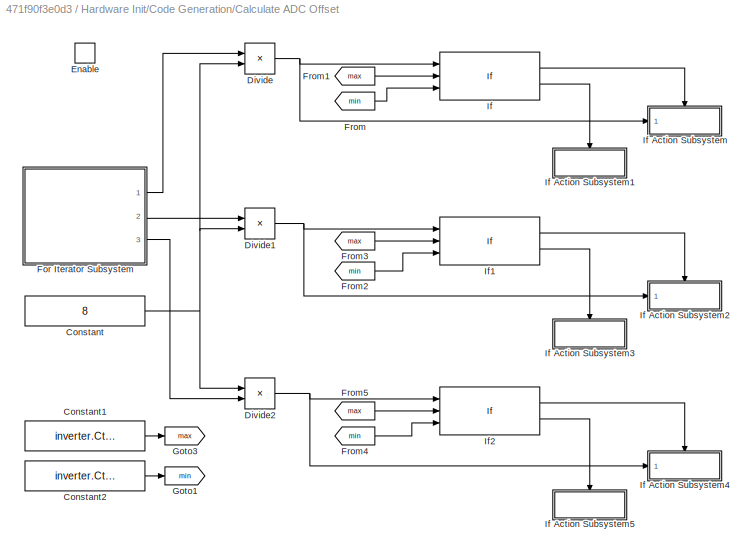
BLOCK [SubSystem] Hardware Init/Code Generation/Calculate ADC Offset 
  Ports = [0, 0, 1]
  Priority = 1001
  RequestExecContextInheritance = off
  TreatAsAtomicUnit = on
BLOCK [Constant] Hardware Init/Code Generation/Calculate ADC Offset /Constant
  Value = 8
BLOCK [Constant] Hardware Init/Code Generation/Calculate ADC Offset /Constant1
  OutDataTypeStr = Inherit: Inherit via back propagation
  Value = inverter.CtSensOffsetMax
BLOCK [Constant] Hardware Init/Code Generation/Calculate ADC Offset /Constant2
  OutDataTypeStr = Inherit: Inherit via back propagation
  Value = inverter.CtSensOffsetMin
BLOCK [Product] Hardware Init/Code Generation/Calculate ADC Offset /Divide
  Inputs = */
  OutDataTypeStr = uint16
  Ports = [2, 1]
BLOCK [Product] Hardware Init/Code Generation/Calculate ADC Offset /Divide1
  Inputs = */
  OutDataTypeStr = uint16
  Ports = [2, 1]
BLOCK [Product] Hardware Init/Code Generation/Calculate ADC Offset /Divide2
  Inputs = /*
  OutDataTypeStr = uint16
  Ports = [2, 1]
BLOCK [EnablePort] Hardware Init/Code Generation/Calculate ADC Offset /Enable
  Ports = []
BLOCK [SubSystem] Hardware Init/Code Generation/Calculate ADC Offset /For Iterator Subsystem
  Ports = [0, 3]
  RequestExecContextInheritance = off
  TreatAsAtomicUnit = on
BLOCK [Reference] Hardware Init/Code Generation/Calculate ADC Offset /For Iterator Subsystem/ADC_A_IN0  REF=c2802xlib/ADC
  Ports = [0, 1]
  Priority = 20
  SourceBlock = c2802xlib/ADC
  SourceProductBaseCode = TIC2000
  SourceType = C2802x/03x/05x/06x/M3x/37x/07x/004x/38x/002x ADC
  UserDataPersistent = on
BLOCK [Reference] Hardware Init/Code Generation/Calculate ADC Offset /For Iterator Subsystem/ADC_B_IN0  REF=c2802xlib/ADC
  Ports = [0, 1]
  Priority = 20
  SourceBlock = c2802xlib/ADC
  SourceProductBaseCode = TIC2000
  SourceType = C2802x/03x/05x/06x/M3x/37x/07x/004x/38x/002x ADC
  UserDataPersistent = on
BLOCK [Reference] Hardware Init/Code Generation/Calculate ADC Offset /For Iterator Subsystem/ADC_C_IN0  REF=c2802xlib/ADC
  Ports = [0, 1]
  Priority = 20
  SourceBlock = c2802xlib/ADC
  SourceProductBaseCode = TIC2000
  SourceType = C2802x/03x/05x/06x/M3x/37x/07x/004x/38x/002x ADC
  UserDataPersistent = on
BLOCK [ForIterator] Hardware Init/Code Generation/Calculate ADC Offset /For Iterator Subsystem/For Iterator
  IterationLimit = 16
  IterationVariableDataType = uint16
  Ports = [0, 1]
BLOCK [If] Hardware Init/Code Generation/Calculate ADC Offset /For Iterator Subsystem/If
  IfExpression = u1 > 8
  Ports = [1, 1]
  ShowElse = off
BLOCK [SubSystem] Hardware Init/Code Generation/Calculate ADC Offset /For Iterator Subsystem/If Action Subsystem
  Ports = [3, 3, 0, 0, 0, 0, 0, 1]
  RequestExecContextInheritance = off
  TreatAsAtomicUnit = on
BLOCK [ActionPort] Hardware Init/Code Generation/Calculate ADC Offset /For Iterator Subsystem/If Action Subsystem/Action Port
  ActionPortLabel = if(u1 > 8)
BLOCK [Inport] Hardware Init/Code Generation/Calculate ADC Offset /For Iterator Subsystem/If Action Subsystem/In1
BLOCK [Inport] Hardware Init/Code Generation/Calculate ADC Offset /For Iterator Subsystem/If Action Subsystem/In2
  Port = 2
BLOCK [Inport] Hardware Init/Code Generation/Calculate ADC Offset /For Iterator Subsystem/If Action Subsystem/In3
  Port = 3
BLOCK [Memory] Hardware Init/Code Generation/Calculate ADC Offset /For Iterator Subsystem/If Action Subsystem/Memory
  InheritSampleTime = on
  NameLocation = top
BLOCK [Memory] Hardware Init/Code Generation/Calculate ADC Offset /For Iterator Subsystem/If Action Subsystem/Memory1
  InheritSampleTime = on
  NameLocation = top
BLOCK [Memory] Hardware Init/Code Generation/Calculate ADC Offset /For Iterator Subsystem/If Action Subsystem/Memory2
  InheritSampleTime = on
  NameLocation = top
BLOCK [Outport] Hardware Init/Code Generation/Calculate ADC Offset /For Iterator Subsystem/If Action Subsystem/Out1
BLOCK [Outport] Hardware Init/Code Generation/Calculate ADC Offset /For Iterator Subsystem/If Action Subsystem/Out2
  Port = 2
BLOCK [Outport] Hardware Init/Code Generation/Calculate ADC Offset /For Iterator Subsystem/If Action Subsystem/Out3
  Port = 3
BLOCK [Sum] Hardware Init/Code Generation/Calculate ADC Offset /For Iterator Subsystem/If Action Subsystem/Sum
  IconShape = rectangular
  Ports = [2, 1]
BLOCK [Sum] Hardware Init/Code Generation/Calculate ADC Offset /For Iterator Subsystem/If Action Subsystem/Sum1
  IconShape = rectangular
  Ports = [2, 1]
BLOCK [Sum] Hardware Init/Code Generation/Calculate ADC Offset /For Iterator Subsystem/If Action Subsystem/Sum2
  IconShape = rectangular
  Ports = [2, 1]
BLOCK [Outport] Hardware Init/Code Generation/Calculate ADC Offset /For Iterator Subsystem/Out1
BLOCK [Outport] Hardware Init/Code Generation/Calculate ADC Offset /For Iterator Subsystem/Out2
  Port = 2
BLOCK [Outport] Hardware Init/Code Generation/Calculate ADC Offset /For Iterator Subsystem/Out3
  Port = 3
BLOCK [From] Hardware Init/Code Generation/Calculate ADC Offset /From
  GotoTag = min
BLOCK [From] Hardware Init/Code Generation/Calculate ADC Offset /From1
  GotoTag = max
BLOCK [From] Hardware Init/Code Generation/Calculate ADC Offset /From2
  GotoTag = min
BLOCK [From] Hardware Init/Code Generation/Calculate ADC Offset /From3
  GotoTag = max
BLOCK [From] Hardware Init/Code Generation/Calculate ADC Offset /From4
  GotoTag = min
BLOCK [From] Hardware Init/Code Generation/Calculate ADC Offset /From5
  GotoTag = max
BLOCK [Goto] Hardware Init/Code Generation/Calculate ADC Offset /Goto1
  GotoTag = min
BLOCK [Goto] Hardware Init/Code Generation/Calculate ADC Offset /Goto3
  GotoTag = max
BLOCK [If] Hardware Init/Code Generation/Calculate ADC Offset /If
  IfExpression = u1 > u3 & u1 < u2
  NumInputs = 3
  Ports = [3, 2]
BLOCK [SubSystem] Hardware Init/Code Generation/Calculate ADC Offset /If Action Subsystem
  Ports = [1, 0, 0, 0, 0, 0, 0, 1]
  RequestExecContextInheritance = off
  TreatAsAtomicUnit = on
BLOCK [ActionPort] Hardware Init/Code Generation/Calculate ADC Offset /If Action Subsystem/Action Port
  ActionPortLabel = if(u1 > 1500 & u1 < 2500)
BLOCK [DataStoreWrite] Hardware Init/Code Generation/Calculate ADC Offset /If Action Subsystem/Data Store Write1
  DataStoreName = IaOffset
  IndexOptions = Index vector (dialog)
  Indices = 1
  OutputSizes = 1
  Ports = [1]
BLOCK [Inport] Hardware Init/Code Generation/Calculate ADC Offset /If Action Subsystem/In1
BLOCK [SubSystem] Hardware Init/Code Generation/Calculate ADC Offset /If Action Subsystem1
  Ports = [0, 0, 0, 0, 0, 0, 0, 1]
  RequestExecContextInheritance = off
  TreatAsAtomicUnit = on
BLOCK [ActionPort] Hardware Init/Code Generation/Calculate ADC Offset /If Action Subsystem1/Action Port
  ActionPortLabel = else
BLOCK [Constant] Hardware Init/Code Generation/Calculate ADC Offset /If Action Subsystem1/Constant
  OutDataTypeStr = Inherit: Inherit via back propagation
  Value = inverter.CtSensAOffset
BLOCK [DataStoreWrite] Hardware Init/Code Generation/Calculate ADC Offset /If Action Subsystem1/Data Store Write1
  DataStoreName = IaOffset
  IndexOptions = Index vector (dialog)
  Indices = 1
  OutputSizes = 1
  Ports = [1]
BLOCK [SubSystem] Hardware Init/Code Generation/Calculate ADC Offset /If Action Subsystem2
  Ports = [1, 0, 0, 0, 0, 0, 0, 1]
  RequestExecContextInheritance = off
  TreatAsAtomicUnit = on
BLOCK [ActionPort] Hardware Init/Code Generation/Calculate ADC Offset /If Action Subsystem2/Action Port
  ActionPortLabel = if(u1 > 1500 & u1 < 2500)
BLOCK [DataStoreWrite] Hardware Init/Code Generation/Calculate ADC Offset /If Action Subsystem2/Data Store Write2
  DataStoreName = IbOffset
  IndexOptions = Index vector (dialog)
  Indices = 1
  OutputSizes = 1
  Ports = [1]
BLOCK [Inport] Hardware Init/Code Generation/Calculate ADC Offset /If Action Subsystem2/In1
BLOCK [SubSystem] Hardware Init/Code Generation/Calculate ADC Offset /If Action Subsystem3
  Ports = [0, 0, 0, 0, 0, 0, 0, 1]
  RequestExecContextInheritance = off
  TreatAsAtomicUnit = on
BLOCK [ActionPort] Hardware Init/Code Generation/Calculate ADC Offset /If Action Subsystem3/Action Port
  ActionPortLabel = else
BLOCK [Constant] Hardware Init/Code Generation/Calculate ADC Offset /If Action Subsystem3/Constant1
  OutDataTypeStr = Inherit: Inherit via back propagation
  Value = inverter.CtSensBOffset
BLOCK [DataStoreWrite] Hardware Init/Code Generation/Calculate ADC Offset /If Action Subsystem3/Data Store Write2
  DataStoreName = IbOffset
  IndexOptions = Index vector (dialog)
  Indices = 1
  OutputSizes = 1
  Ports = [1]
BLOCK [SubSystem] Hardware Init/Code Generation/Calculate ADC Offset /If Action Subsystem4
  Ports = [1, 0, 0, 0, 0, 0, 0, 1]
  RequestExecContextInheritance = off
  TreatAsAtomicUnit = on
BLOCK [ActionPort] Hardware Init/Code Generation/Calculate ADC Offset /If Action Subsystem4/Action Port
  ActionPortLabel = if(u1 > 1500 & u1 < 2500)
BLOCK [DataStoreWrite] Hardware Init/Code Generation/Calculate ADC Offset /If Action Subsystem4/Data Store Write2
  DataStoreName = IcOffset
  IndexOptions = Index vector (dialog)
  Indices = 1
  OutputSizes = 1
  Ports = [1]
BLOCK [Inport] Hardware Init/Code Generation/Calculate ADC Offset /If Action Subsystem4/In1
BLOCK [SubSystem] Hardware Init/Code Generation/Calculate ADC Offset /If Action Subsystem5
  Ports = [0, 0, 0, 0, 0, 0, 0, 1]
  RequestExecContextInheritance = off
  TreatAsAtomicUnit = on
BLOCK [ActionPort] Hardware Init/Code Generation/Calculate ADC Offset /If Action Subsystem5/Action Port
  ActionPortLabel = else
BLOCK [Constant] Hardware Init/Code Generation/Calculate ADC Offset /If Action Subsystem5/Constant1
  OutDataTypeStr = Inherit: Inherit via back propagation
  Value = inverter.CtSensCOffset
BLOCK [DataStoreWrite] Hardware Init/Code Generation/Calculate ADC Offset /If Action Subsystem5/Data Store Write2
  DataStoreName = IcOffset
  IndexOptions = Index vector (dialog)
  Indices = 1
  OutputSizes = 1
  Ports = [1]
BLOCK [If] Hardware Init/Code Generation/Calculate ADC Offset /If1
  IfExpression = u1 > u3 & u1 < u2
  NumInputs = 3
  Ports = [3, 2]
BLOCK [If] Hardware Init/Code Generation/Calculate ADC Offset /If2
  IfExpression = u1 > u3 & u1 < u2
  NumInputs = 3
  Ports = [3, 2]
BLOCK [SubSystem] Hardware Init/Code Generation/DRV Enable
  Ports = [1]
  Priority = 1
  RequestExecContextInheritance = off
BLOCK [Constant] Hardware Init/Code Generation/DRV Enable/Constant
  OutDataTypeStr = Inherit: Inherit via back propagation
BLOCK [Reference] Hardware Init/Code Generation/DRV Enable/DRV830x Enable  REF=c2837xDlib/Digital Output
  Ports = [1]
  SourceBlock = c2837xDlib/Digital Output
  SourceProductBaseCode = TIC2000
  SourceType = F2837x GPIO Digital Output
  UserDataPersistent = on
BLOCK [Demux] Hardware Init/Code Generation/DRV Enable/Demux
  Outputs = 2
  Ports = [1, 2]
BLOCK [Display] Hardware Init/Code Generation/DRV Enable/Display
  Decimation = 1
  Format = hex (Stored Integer)
  Ports = [1]
BLOCK [Display] Hardware Init/Code Generation/DRV Enable/Display1
  Decimation = 1
  Format = hex (Stored Integer)
  Ports = [1]
BLOCK [Inport] Hardware Init/Code Generation/DRV Enable/In
BLOCK [Reference] Hardware Init/Code Generation/DRV Enable/SPI Master Transfer2  REF=c280xlib/SPI Master Transfer
  Ports = [1, 1]
  SourceBlock = c280xlib/SPI Master Transfer
  SourceProductBaseCode = TIC2000
  SourceType = codertarget.tic2000.blocks.SPIMasterTransfer
BLOCK [Reference] Hardware Init/Code Generation/DRV Enable/SPI Master Transfer3  REF=c280xlib/SPI Master Transfer
  Ports = [1, 1]
  SourceBlock = c280xlib/SPI Master Transfer
  SourceProductBaseCode = TIC2000
  SourceType = codertarget.tic2000.blocks.SPIMasterTransfer
BLOCK [SubSystem] Hardware Init/Code Generation/Default ADC Offset
  Ports = [0, 0, 1]
  Priority = 1001
  RequestExecContextInheritance = off
  TreatAsAtomicUnit = on
BLOCK [Constant] Hardware Init/Code Generation/Default ADC Offset/Constant
  OutDataTypeStr = Inherit: Inherit via back propagation
  Value = inverter.CtSensAOffset
BLOCK [Constant] Hardware Init/Code Generation/Default ADC Offset/Constant1
  OutDataTypeStr = Inherit: Inherit via back propagation
  Value = inverter.CtSensBOffset
BLOCK [Constant] Hardware Init/Code Generation/Default ADC Offset/Constant2
  OutDataTypeStr = Inherit: Inherit via back propagation
  Value = inverter.CtSensCOffset
BLOCK [DataStoreWrite] Hardware Init/Code Generation/Default ADC Offset/Data Store Write1
  DataStoreName = IaOffset
  IndexOptions = Index vector (dialog)
  Indices = 1
  OutputSizes = 1
  Ports = [1]
BLOCK [DataStoreWrite] Hardware Init/Code Generation/Default ADC Offset/Data Store Write2
  DataStoreName = IbOffset
  IndexOptions = Index vector (dialog)
  Indices = 1
  OutputSizes = 1
  Ports = [1]
BLOCK [DataStoreWrite] Hardware Init/Code Generation/Default ADC Offset/Data Store Write3
  DataStoreName = IcOffset
  IndexOptions = Index vector (dialog)
  Indices = 1
  OutputSizes = 1
  Ports = [1]
BLOCK [EnablePort] Hardware Init/Code Generation/Default ADC Offset/Enable
  Ports = []
BLOCK [Inport] Hardware Init/Code Generation/In
BLOCK [Logic] Hardware Init/Code Generation/NOT
  AllPortsSameDT = off
  IconShape = distinctive
  Operator = NOT
  OutDataTypeStr = boolean
  Ports = [1, 1]
BLOCK [EventListener] Hardware Init/Event Listener
  DisableCoverage = on
  EventName = reset
BLOCK [Mux] Hardware Init/Mux
  DisplayOption = bar
  Inputs = 2
  Ports = [2, 1]
BLOCK [SubSystem] Hardware Init/Simulation
  Ports = [1]
  RequestExecContextInheritance = off
BLOCK [Inport] Hardware Init/Simulation/In1
BLOCK [Terminator] Hardware Init/Simulation/Terminator
BLOCK [VariantSink] Hardware Init/Variant Sink
  Ports = [1, 2]
  VariantControlMode = sim codegen switching
BLOCK [SubSystem] Heartbeat LED
  Ports = []
  RequestExecContextInheritance = off
  TreatAsAtomicUnit = on
BLOCK [SubSystem] Heartbeat LED/Code generation
  Ports = [1]
  RequestExecContextInheritance = off
BLOCK [Reference] Heartbeat LED/Code generation/Digital Output2  REF=c2837xDlib/Digital Output
  Ports = [1]
  SourceBlock = c2837xDlib/Digital Output
  SourceProductBaseCode = TIC2000
  SourceType = F2837x GPIO Digital Output
  UserDataPersistent = on
BLOCK [Inport] Heartbeat LED/Code generation/In1
BLOCK [Constant] Heartbeat LED/RED_LED
  OutDataTypeStr = uint16
  SampleTime = 0.5
BLOCK [SubSystem] Heartbeat LED/Simulation
  Ports = [1]
  RequestExecContextInheritance = off
BLOCK [Inport] Heartbeat LED/Simulation/In1
BLOCK [Terminator] Heartbeat LED/Simulation/Simulation_Terminator
BLOCK [VariantSink] Heartbeat LED/Variant Sink
  Ports = [1, 2]
  VariantControlMode = sim codegen switching
BLOCK [SubSystem] Inverter and Motor - Plant Model
  Ports = [1, 1]
  RTWSystemCode = Reusable function
  RequestExecContextInheritance = off
BLOCK [SubSystem] Inverter and Motor - Plant Model/Codegeneration
  Ports = [1, 1]
  RequestExecContextInheritance = off
BLOCK [BusCreator] Inverter and Motor - Plant Model/Codegeneration/Bus Creator
  DisplayOption = bar
  InheritFromInputs = on
  Inputs = 3
  Ports = [3, 1]
BLOCK [Inport] Inverter and Motor - Plant Model/Codegeneration/Duty_Cycles
BLOCK [Ground] Inverter and Motor - Plant Model/Codegeneration/Ground
BLOCK [Terminator] Inverter and Motor - Plant Model/Codegeneration/Terminator
BLOCK [Outport] Inverter and Motor - Plant Model/Codegeneration/fb_codegen
  VectorParamsAs1DForOutWhenUnconnected = off
BLOCK [Inport] Inverter and Motor - Plant Model/Duty_Cycles
BLOCK [SubSystem] Inverter and Motor - Plant Model/Simulation
  Ports = [1, 1]
  RequestExecContextInheritance = off
BLOCK [BusCreator] Inverter and Motor - Plant Model/Simulation/Bus Creator
  DisplayOption = bar
  InheritFromInputs = on
  Inputs = 3
  Ports = [3, 1]
BLOCK [Inport] Inverter and Motor - Plant Model/Simulation/Duty_Cycles
BLOCK [SubSystem] Inverter and Motor - Plant Model/Simulation/EE_PWM
  Ports = [2, 3]
  RequestExecContextInheritance = off
  VariantControl = (get_param([bdroot '/InverterSelected'], 'Value') == '1')
BLOCK [SubSystem] Inverter and Motor - Plant Model/Simulation/EE_PWM/3phase converter
  NameLocation = top
  Ports = [1, 0, 0, 0, 0, 1, 2]
  RequestExecContextInheritance = off
BLOCK [PMIOPort] Inverter and Motor - Plant Model/Simulation/EE_PWM/3phase converter/+
  Side = Right
BLOCK [PMIOPort] Inverter and Motor - Plant Model/Simulation/EE_PWM/3phase converter/-
  Port = 3
  Side = Right
BLOCK [Demux] Inverter and Motor - Plant Model/Simulation/EE_PWM/3phase converter/Demux
  Outputs = 6
  Ports = [1, 6]
BLOCK [Reference] Inverter and Motor - Plant Model/Simulation/EE_PWM/3phase converter/Inverter  REF=ee_lib/Semiconductors &
Converters/Converters/Converter
(Three-Phase)
  Ports = [0, 0, 0, 0, 0, 2, 2]
  SourceBlock = ee_lib/Semiconductors &\nConverters/Converters/Converter\n(Three-Phase)
  SourceProductBaseCode = PS
  SourceType = Converter\n(Three-Phase)
BLOCK [Reference] Inverter and Motor - Plant Model/Simulation/EE_PWM/3phase converter/Simulink-PS Converter  REF=nesl_utility/Simulink-PS
Converter
  Ports = [1, 0, 0, 0, 0, 0, 1]
  SourceBlock = nesl_utility/Simulink-PS\nConverter
  SourceProductBaseCode = PW,SS
  SourceType = Simulink-PS\nConverter
BLOCK [Reference] Inverter and Motor - Plant Model/Simulation/EE_PWM/3phase converter/Simulink-PS Converter1  REF=nesl_utility/Simulink-PS
Converter
  Ports = [1, 0, 0, 0, 0, 0, 1]
  SourceBlock = nesl_utility/Simulink-PS\nConverter
  SourceProductBaseCode = PW,SS
  SourceType = Simulink-PS\nConverter
BLOCK [Reference] Inverter and Motor - Plant Model/Simulation/EE_PWM/3phase converter/Simulink-PS Converter2  REF=nesl_utility/Simulink-PS
Converter
  Ports = [1, 0, 0, 0, 0, 0, 1]
  SourceBlock = nesl_utility/Simulink-PS\nConverter
  SourceProductBaseCode = PW,SS
  SourceType = Simulink-PS\nConverter
BLOCK [Reference] Inverter and Motor - Plant Model/Simulation/EE_PWM/3phase converter/Simulink-PS Converter3  REF=nesl_utility/Simulink-PS
Converter
  Ports = [1, 0, 0, 0, 0, 0, 1]
  SourceBlock = nesl_utility/Simulink-PS\nConverter
  SourceProductBaseCode = PW,SS
  SourceType = Simulink-PS\nConverter
BLOCK [Reference] Inverter and Motor - Plant Model/Simulation/EE_PWM/3phase converter/Simulink-PS Converter4  REF=nesl_utility/Simulink-PS
Converter
  Ports = [1, 0, 0, 0, 0, 0, 1]
  SourceBlock = nesl_utility/Simulink-PS\nConverter
  SourceProductBaseCode = PW,SS
  SourceType = Simulink-PS\nConverter
BLOCK [Reference] Inverter and Motor - Plant Model/Simulation/EE_PWM/3phase converter/Simulink-PS Converter5  REF=nesl_utility/Simulink-PS
Converter
  Ports = [1, 0, 0, 0, 0, 0, 1]
  SourceBlock = nesl_utility/Simulink-PS\nConverter
  SourceProductBaseCode = PW,SS
  SourceType = Simulink-PS\nConverter
BLOCK [Reference] Inverter and Motor - Plant Model/Simulation/EE_PWM/3phase converter/Six-Pulse Gate Multiplexer  REF=ee_lib/Semiconductors &
Converters/Converters/Six-Pulse Gate
Multiplexer
  Ports = [0, 0, 0, 0, 0, 6, 1]
  SourceBlock = ee_lib/Semiconductors &\nConverters/Converters/Six-Pulse Gate\nMultiplexer
  SourceProductBaseCode = PS
  SourceType = Six-Pulse Gate\nMultiplexer
BLOCK [Inport] Inverter and Motor - Plant Model/Simulation/EE_PWM/3phase converter/g
BLOCK [PMIOPort] Inverter and Motor - Plant Model/Simulation/EE_PWM/3phase converter/~
  Port = 2
  Side = Left
BLOCK [SubSystem] Inverter and Motor - Plant Model/Simulation/EE_PWM/6-pulse PWM generator
  Ports = [1, 1]
  RequestExecContextInheritance = off
BLOCK [Inport] Inverter and Motor - Plant Model/Simulation/EE_PWM/6-pulse PWM generator/ModWave
BLOCK [Relay] Inverter and Motor - Plant Model/Simulation/EE_PWM/6-pulse PWM generator/Relay
BLOCK [Reference] Inverter and Motor - Plant Model/Simulation/EE_PWM/6-pulse PWM generator/Repeating Sequence Interpolated  REF=simulink/Sources/Repeating
Sequence
Interpolated
  Ports = [0, 1]
  SourceBlock = simulink/Sources/Repeating\nSequence\nInterpolated
  SourceProductBaseCode = SL
  SourceType = Repeating Sequence Interpolated
BLOCK [Sum] Inverter and Motor - Plant Model/Simulation/EE_PWM/6-pulse PWM generator/Sum
  Inputs = |+-
  Ports = [2, 1]
BLOCK [Outport] Inverter and Motor - Plant Model/Simulation/EE_PWM/6-pulse PWM generator/g
  NameLocation = top
BLOCK [Reference] Inverter and Motor - Plant Model/Simulation/EE_PWM/BLDC  REF=ee_lib/Electromechanical/Permanent Magnet/BLDC
  Ports = [0, 0, 0, 0, 0, 1, 2]
  SourceBlock = ee_lib/Electromechanical/Permanent Magnet/BLDC
  SourceProductBaseCode = PS
  SourceType = BLDC
BLOCK [Reference] Inverter and Motor - Plant Model/Simulation/EE_PWM/DC Voltage Source  REF=fl_lib/Electrical/Electrical Sources/DC Voltage Source
  NameLocation = left
  Ports = [0, 0, 0, 0, 0, 1, 1]
  SourceBlock = fl_lib/Electrical/Electrical Sources/DC Voltage Source
  SourceProductBaseCode = SS
  SourceType = DC Voltage Source
BLOCK [Inport] Inverter and Motor - Plant Model/Simulation/EE_PWM/Duty_Cycles
BLOCK [Reference] Inverter and Motor - Plant Model/Simulation/EE_PWM/Electrical Reference1  REF=fl_lib/Electrical/Electrical Elements/Electrical Reference
  NameLocation = right
  Ports = [0, 0, 0, 0, 0, 1]
  SourceBlock = fl_lib/Electrical/Electrical Elements/Electrical Reference
  SourceProductBaseCode = SS
  SourceType = Electrical Reference
BLOCK [From] Inverter and Motor - Plant Model/Simulation/EE_PWM/From
  GotoTag = Iabc
  TagVisibility = global
BLOCK [From] Inverter and Motor - Plant Model/Simulation/EE_PWM/From1
  GotoTag = theta
  TagVisibility = global
BLOCK [From] Inverter and Motor - Plant Model/Simulation/EE_PWM/From2
  GotoTag = Vabc
  TagVisibility = global
BLOCK [From] Inverter and Motor - Plant Model/Simulation/EE_PWM/From3
  GotoTag = HallSim
  TagVisibility = global
BLOCK [Outport] Inverter and Motor - Plant Model/Simulation/EE_PWM/Hall
  Port = 3
BLOCK [Outport] Inverter and Motor - Plant Model/Simulation/EE_PWM/Iabc
BLOCK [Reference] Inverter and Motor - Plant Model/Simulation/EE_PWM/Ideal Rotational Motion Sensor  REF=fl_lib/Mechanical/Mechanical Sensors/Ideal Rotational
Motion Sensor
  Ports = [0, 0, 0, 0, 0, 1, 3]
  SourceBlock = fl_lib/Mechanical/Mechanical Sensors/Ideal Rotational\nMotion Sensor
  SourceProductBaseCode = SS
  SourceType = Ideal Rotational\nMotion Sensor
BLOCK [Inport] Inverter and Motor - Plant Model/Simulation/EE_PWM/Load
  Port = 2
BLOCK [Reference] Inverter and Motor - Plant Model/Simulation/EE_PWM/Mechanical Rotational Reference  REF=fl_lib/Mechanical/Rotational Elements/Mechanical
Rotational Reference
  NameLocation = right
  Ports = [0, 0, 0, 0, 0, 1]
  SourceBlock = fl_lib/Mechanical/Rotational Elements/Mechanical\nRotational Reference
  SourceProductBaseCode = SS
  SourceType = Mechanical\nRotational Reference
BLOCK [Reference] Inverter and Motor - Plant Model/Simulation/EE_PWM/PS-Simulink Converter  REF=nesl_utility/PS-Simulink
Converter
  Ports = [0, 1, 0, 0, 0, 1]
  SourceBlock = nesl_utility/PS-Simulink\nConverter
  SourceProductBaseCode = PW,SS
  SourceType = PS-Simulink\nConverter
BLOCK [RateTransition] Inverter and Motor - Plant Model/Simulation/EE_PWM/Rate Transition2
  Deterministic = off
  OutPortSampleTime = Ts_motor_simscape
BLOCK [RateTransition] Inverter and Motor - Plant Model/Simulation/EE_PWM/Rate Transition3
  Deterministic = off
  NameLocation = top
  OutPortSampleTime = Ts_motor_simscape
BLOCK [SubSystem] Inverter and Motor - Plant Model/Simulation/EE_PWM/Scale
  Ports = [1, 1]
  RequestExecContextInheritance = off
BLOCK [Constant] Inverter and Motor - Plant Model/Simulation/EE_PWM/Scale/Constant
  OutDataTypeStr = single
  SampleTime = Ts_motor_simscape
  Value = 0
BLOCK [DataTypeConversion] Inverter and Motor - Plant Model/Simulation/EE_PWM/Scale/Data Type Conversion
  RndMeth = Floor
  SaturateOnIntegerOverflow = off
BLOCK [Gain] Inverter and Motor - Plant Model/Simulation/EE_PWM/Scale/Gain
BLOCK [Outport] Inverter and Motor - Plant Model/Simulation/EE_PWM/Scale/ModWave
BLOCK [RateTransition] Inverter and Motor - Plant Model/Simulation/EE_PWM/Scale/Rate Transition
BLOCK [Sum] Inverter and Motor - Plant Model/Simulation/EE_PWM/Scale/Sum
  Inputs = |++
  Ports = [2, 1]
BLOCK [Inport] Inverter and Motor - Plant Model/Simulation/EE_PWM/Scale/duty_abc
BLOCK [Scope] Inverter and Motor - Plant Model/Simulation/EE_PWM/Scope
  Floating = off
  NumInputPorts = 1
  Ports = [1]
  ScopeSpecificationString = Simulink.scopes.TimeScopeBlockCfg('CurrentConfiguration', extmgr.ConfigurationSet(extmgr.Configuration('Core','General UI',true),extmgr.Configuration('Core','Source UI',true),extmgr.Configuration('Sources','WiredSimulink',true),extmgr.Configuration('Visuals','Time Domain',true,'SerializedDisplays',{struct('MinYLimReal','-325.95336','MaxYLimReal','1001.02078','YLabelReal','','MinYLimMag',' 0.00000'...<+1359ch>
BLOCK [Reference] Inverter and Motor - Plant Model/Simulation/EE_PWM/Solver Configuration  REF=nesl_utility/Solver
Configuration
  Ports = [0, 0, 0, 0, 0, 0, 1]
  SourceBlock = nesl_utility/Solver\nConfiguration
  SourceProductBaseCode = PW,SS
  SourceType = Solver\nConfiguration
BLOCK [SubSystem] Inverter and Motor - Plant Model/Simulation/EE_PWM/Subsystem1
  NameLocation = top
  Ports = [1, 0, 0, 0, 0, 0, 1]
  RequestExecContextInheritance = off
BLOCK [DataTypeConversion] Inverter and Motor - Plant Model/Simulation/EE_PWM/Subsystem1/Data Type Conversion1
  NameLocation = top
  RndMeth = Floor
  SaturateOnIntegerOverflow = off
BLOCK [Gain] Inverter and Motor - Plant Model/Simulation/EE_PWM/Subsystem1/Gain
  Gain = 1/bldc.N_base
BLOCK [Gain] Inverter and Motor - Plant Model/Simulation/EE_PWM/Subsystem1/Gain1
  Gain = -1
  NameLocation = top
BLOCK [Goto] Inverter and Motor - Plant Model/Simulation/EE_PWM/Subsystem1/Goto
  GotoTag = theta
  TagVisibility = global
BLOCK [Reference] Inverter and Motor - Plant Model/Simulation/EE_PWM/Subsystem1/Ideal Rotational Motion Sensor  REF=fl_lib/Mechanical/Mechanical Sensors/Ideal Rotational
Motion Sensor
  Ports = [0, 0, 0, 0, 0, 1, 3]
  SourceBlock = fl_lib/Mechanical/Mechanical Sensors/Ideal Rotational\nMotion Sensor
  SourceProductBaseCode = SS
  SourceType = Ideal Rotational\nMotion Sensor
BLOCK [Reference] Inverter and Motor - Plant Model/Simulation/EE_PWM/Subsystem1/Ideal Torque Source  REF=fl_lib/Mechanical/Mechanical Sources/Ideal Torque Source
  NameLocation = top
  Ports = [0, 0, 0, 0, 0, 1, 2]
  SourceBlock = fl_lib/Mechanical/Mechanical Sources/Ideal Torque Source
  SourceProductBaseCode = SS
  SourceType = Ideal Torque Source
BLOCK [Reference] Inverter and Motor - Plant Model/Simulation/EE_PWM/Subsystem1/Mechanical Rotational Reference1  REF=fl_lib/Mechanical/Rotational Elements/Mechanical
Rotational Reference
  NameLocation = top
  Ports = [0, 0, 0, 0, 0, 1]
  SourceBlock = fl_lib/Mechanical/Rotational Elements/Mechanical\nRotational Reference
  SourceProductBaseCode = SS
  SourceType = Mechanical\nRotational Reference
BLOCK [Reference] Inverter and Motor - Plant Model/Simulation/EE_PWM/Subsystem1/Mechanical Rotational Reference2  REF=fl_lib/Mechanical/Rotational Elements/Mechanical
Rotational Reference
  NameLocation = top
  Ports = [0, 0, 0, 0, 0, 1]
  SourceBlock = fl_lib/Mechanical/Rotational Elements/Mechanical\nRotational Reference
  SourceProductBaseCode = SS
  SourceType = Mechanical\nRotational Reference
BLOCK [Reference] Inverter and Motor - Plant Model/Simulation/EE_PWM/Subsystem1/PS-Simulink Converter  REF=nesl_utility/PS-Simulink
Converter
  Ports = [0, 1, 0, 0, 0, 1]
  SourceBlock = nesl_utility/PS-Simulink\nConverter
  SourceProductBaseCode = PW,SS
  SourceType = PS-Simulink\nConverter
BLOCK [Reference] Inverter and Motor - Plant Model/Simulation/EE_PWM/Subsystem1/PS-Simulink Converter1  REF=nesl_utility/PS-Simulink
Converter
  Ports = [0, 1, 0, 0, 0, 1]
  SourceBlock = nesl_utility/PS-Simulink\nConverter
  SourceProductBaseCode = PW,SS
  SourceType = PS-Simulink\nConverter
BLOCK [PMIOPort] Inverter and Motor - Plant Model/Simulation/EE_PWM/Subsystem1/R 
  Side = Right
BLOCK [RateTransition] Inverter and Motor - Plant Model/Simulation/EE_PWM/Subsystem1/Rate Transition1
  NameLocation = top
BLOCK [SubSystem] Inverter and Motor - Plant Model/Simulation/EE_PWM/Subsystem1/Sensing w a
  NameLocation = top
  Ports = [0, 0, 0, 0, 0, 1]
  RequestExecContextInheritance = off
BLOCK [Goto] Inverter and Motor - Plant Model/Simulation/EE_PWM/Subsystem1/Sensing w a/Goto1
  GotoTag = HallSim
  TagVisibility = global
BLOCK [SubSystem] Inverter and Motor - Plant Model/Simulation/EE_PWM/Subsystem1/Sensing w a/Hall sensor
  Ports = [1, 1]
  RequestExecContextInheritance = off
BLOCK [Constant] Inverter and Motor - Plant Model/Simulation/EE_PWM/Subsystem1/Sensing w a/Hall sensor/Constant
  Value = 30
BLOCK [Constant] Inverter and Motor - Plant Model/Simulation/EE_PWM/Subsystem1/Sensing w a/Hall sensor/Constant1
  Value = -150
BLOCK [Constant] Inverter and Motor - Plant Model/Simulation/EE_PWM/Subsystem1/Sensing w a/Hall sensor/Constant2
  Value = 150
BLOCK [Constant] Inverter and Motor - Plant Model/Simulation/EE_PWM/Subsystem1/Sensing w a/Hall sensor/Constant3
  Value = -30
BLOCK [Constant] Inverter and Motor - Plant Model/Simulation/EE_PWM/Subsystem1/Sensing w a/Hall sensor/Constant4
  Value = -90
BLOCK [Constant] Inverter and Motor - Plant Model/Simulation/EE_PWM/Subsystem1/Sensing w a/Hall sensor/Constant5
  Value = 90
BLOCK [Outport] Inverter and Motor - Plant Model/Simulation/EE_PWM/Subsystem1/Sensing w a/Hall sensor/Hall
  VectorParamsAs1DForOutWhenUnconnected = off
BLOCK [Logic] Inverter and Motor - Plant Model/Simulation/EE_PWM/Subsystem1/Sensing w a/Hall sensor/Logical Operator
  AllPortsSameDT = off
  Operator = OR
  OutDataTypeStr = boolean
  Ports = [2, 1]
BLOCK [Logic] Inverter and Motor - Plant Model/Simulation/EE_PWM/Subsystem1/Sensing w a/Hall sensor/Logical Operator1
  AllPortsSameDT = off
  Operator = OR
  OutDataTypeStr = boolean
  Ports = [2, 1]
BLOCK [Logic] Inverter and Motor - Plant Model/Simulation/EE_PWM/Subsystem1/Sensing w a/Hall sensor/Logical Operator2
  AllPortsSameDT = off
  OutDataTypeStr = boolean
  Ports = [2, 1]
BLOCK [Mux] Inverter and Motor - Plant Model/Simulation/EE_PWM/Subsystem1/Sensing w a/Hall sensor/Mux
  DisplayOption = bar
  Inputs = 3
  Ports = [3, 1]
BLOCK [RelationalOperator] Inverter and Motor - Plant Model/Simulation/EE_PWM/Subsystem1/Sensing w a/Hall sensor/Relational Operator1
  Operator = <=
  Ports = [2, 1]
BLOCK [RelationalOperator] Inverter and Motor - Plant Model/Simulation/EE_PWM/Subsystem1/Sensing w a/Hall sensor/Relational Operator2
  Ports = [2, 1]
BLOCK [RelationalOperator] Inverter and Motor - Plant Model/Simulation/EE_PWM/Subsystem1/Sensing w a/Hall sensor/Relational Operator3
  Operator = <=
  Ports = [2, 1]
BLOCK [RelationalOperator] Inverter and Motor - Plant Model/Simulation/EE_PWM/Subsystem1/Sensing w a/Hall sensor/Relational Operator4
  Ports = [2, 1]
BLOCK [RelationalOperator] Inverter and Motor - Plant Model/Simulation/EE_PWM/Subsystem1/Sensing w a/Hall sensor/Relational Operator5
  Operator = <=
  Ports = [2, 1]
BLOCK [RelationalOperator] Inverter and Motor - Plant Model/Simulation/EE_PWM/Subsystem1/Sensing w a/Hall sensor/Relational Operator6
  Ports = [2, 1]
BLOCK [SubSystem] Inverter and Motor - Plant Model/Simulation/EE_PWM/Subsystem1/Sensing w a/Hall sensor/Subsystem
  Ports = [1, 1]
  RequestExecContextInheritance = off
BLOCK [Trigonometry] Inverter and Motor - Plant Model/Simulation/EE_PWM/Subsystem1/Sensing w a/Hall sensor/Subsystem/Trigonometric Function
  Operator = sincos
  Ports = [1, 2]
BLOCK [Trigonometry] Inverter and Motor - Plant Model/Simulation/EE_PWM/Subsystem1/Sensing w a/Hall sensor/Subsystem/Trigonometric Function2
  Operator = atan2
  Ports = [2, 1]
BLOCK [Outport] Inverter and Motor - Plant Model/Simulation/EE_PWM/Subsystem1/Sensing w a/Hall sensor/Subsystem/deg
  VectorParamsAs1DForOutWhenUnconnected = off
BLOCK [Gain] Inverter and Motor - Plant Model/Simulation/EE_PWM/Subsystem1/Sensing w a/Hall sensor/Subsystem/mech->elec
  Gain = bldc.p
BLOCK [Gain] Inverter and Motor - Plant Model/Simulation/EE_PWM/Subsystem1/Sensing w a/Hall sensor/Subsystem/rad->deg
  Gain = 180/pi
  OutDataTypeStr = Inherit: Same as input
  ParamDataTypeStr = Inherit: Same as input
  SaturateOnIntegerOverflow = on
BLOCK [Inport] Inverter and Motor - Plant Model/Simulation/EE_PWM/Subsystem1/Sensing w a/Hall sensor/Subsystem/theta
BLOCK [Inport] Inverter and Motor - Plant Model/Simulation/EE_PWM/Subsystem1/Sensing w a/Hall sensor/theta
BLOCK [Reference] Inverter and Motor - Plant Model/Simulation/EE_PWM/Subsystem1/Sensing w a/MRRef  REF=fl_lib/Mechanical/Rotational Elements/Mechanical
Rotational Reference
  NameLocation = left
  Ports = [0, 0, 0, 0, 0, 1]
  SourceBlock = fl_lib/Mechanical/Rotational Elements/Mechanical\nRotational Reference
  SourceProductBaseCode = SS
  SourceType = Mechanical\nRotational Reference
BLOCK [Reference] Inverter and Motor - Plant Model/Simulation/EE_PWM/Subsystem1/Sensing w a/Motion Sensor  REF=fl_lib/Mechanical/Mechanical Sensors/Ideal Rotational
Motion Sensor
  Ports = [0, 0, 0, 0, 0, 1, 3]
  SourceBlock = fl_lib/Mechanical/Mechanical Sensors/Ideal Rotational\nMotion Sensor
  SourceProductBaseCode = SS
  SourceType = Ideal Rotational\nMotion Sensor
BLOCK [Reference] Inverter and Motor - Plant Model/Simulation/EE_PWM/Subsystem1/Sensing w a/PS-Simulink Converter1  REF=nesl_utility/PS-Simulink
Converter
  Ports = [0, 1, 0, 0, 0, 1]
  SourceBlock = nesl_utility/PS-Simulink\nConverter
  SourceProductBaseCode = PW,SS
  SourceType = PS-Simulink\nConverter
BLOCK [Reference] Inverter and Motor - Plant Model/Simulation/EE_PWM/Subsystem1/Sensing w a/PS-Simulink Converter2  REF=nesl_utility/PS-Simulink
Converter
  Ports = [0, 1, 0, 0, 0, 1]
  SourceBlock = nesl_utility/PS-Simulink\nConverter
  SourceProductBaseCode = PW,SS
  SourceType = PS-Simulink\nConverter
BLOCK [PMIOPort] Inverter and Motor - Plant Model/Simulation/EE_PWM/Subsystem1/Sensing w a/R
  Side = Left
BLOCK [Terminator] Inverter and Motor - Plant Model/Simulation/EE_PWM/Subsystem1/Sensing w a/Terminator
BLOCK [Reference] Inverter and Motor - Plant Model/Simulation/EE_PWM/Subsystem1/Simulink-PS Converter  REF=nesl_utility/Simulink-PS
Converter
  NameLocation = top
  Ports = [1, 0, 0, 0, 0, 0, 1]
  SourceBlock = nesl_utility/Simulink-PS\nConverter
  SourceProductBaseCode = PW,SS
  SourceType = Simulink-PS\nConverter
BLOCK [Terminator] Inverter and Motor - Plant Model/Simulation/EE_PWM/Subsystem1/Terminator1
BLOCK [Inport] Inverter and Motor - Plant Model/Simulation/EE_PWM/Subsystem1/Tm
BLOCK [Terminator] Inverter and Motor - Plant Model/Simulation/EE_PWM/Terminator
BLOCK [Outport] Inverter and Motor - Plant Model/Simulation/EE_PWM/Theta
  Port = 2
BLOCK [SubSystem] Inverter and Motor - Plant Model/Simulation/EE_PWM/measVI
  Ports = [0, 0, 0, 0, 0, 1, 1]
  RequestExecContextInheritance = off
BLOCK [Reference] Inverter and Motor - Plant Model/Simulation/EE_PWM/measVI/Current Sensor (Three-Phase)  REF=ee_lib/Sensors &
Transducers/Current Sensor
(Three-Phase)
  Ports = [0, 0, 0, 0, 0, 1, 2]
  SourceBlock = ee_lib/Sensors &\nTransducers/Current Sensor\n(Three-Phase)
  SourceProductBaseCode = PS
  SourceType = Current Sensor\n(Three-Phase)
BLOCK [Goto] Inverter and Motor - Plant Model/Simulation/EE_PWM/measVI/Goto
  GotoTag = Iabc
  TagVisibility = global
BLOCK [Goto] Inverter and Motor - Plant Model/Simulation/EE_PWM/measVI/Goto1
  GotoTag = Vabc
  TagVisibility = global
BLOCK [Reference] Inverter and Motor - Plant Model/Simulation/EE_PWM/measVI/Line Voltage Sensor (Three-Phase)  REF=ee_lib/Sensors &
Transducers/Line Voltage Sensor
(Three-Phase)
  NameLocation = right
  Ports = [0, 0, 0, 0, 0, 1, 1]
  SourceBlock = ee_lib/Sensors &\nTransducers/Line Voltage Sensor\n(Three-Phase)
  SourceProductBaseCode = PS
  SourceType = Line Voltage Sensor\n(Three-Phase)
BLOCK [Reference] Inverter and Motor - Plant Model/Simulation/EE_PWM/measVI/PS-Simulink Converter2  REF=nesl_utility/PS-Simulink
Converter
  Ports = [0, 1, 0, 0, 0, 1]
  SourceBlock = nesl_utility/PS-Simulink\nConverter
  SourceProductBaseCode = PW,SS
  SourceType = PS-Simulink\nConverter
BLOCK [Reference] Inverter and Motor - Plant Model/Simulation/EE_PWM/measVI/PS-Simulink Converter3  REF=nesl_utility/PS-Simulink
Converter
  Ports = [0, 1, 0, 0, 0, 1]
  SourceBlock = nesl_utility/PS-Simulink\nConverter
  SourceProductBaseCode = PW,SS
  SourceType = PS-Simulink\nConverter
BLOCK [PMIOPort] Inverter and Motor - Plant Model/Simulation/EE_PWM/measVI/~1
  Side = Left
BLOCK [PMIOPort] Inverter and Motor - Plant Model/Simulation/EE_PWM/measVI/~2
  Port = 2
  Side = Right
BLOCK [SubSystem] Inverter and Motor - Plant Model/Simulation/Load_Profile (Torque)
  Ports = [0, 1]
  RequestExecContextInheritance = off
BLOCK [DataTypeConversion] Inverter and Motor - Plant Model/Simulation/Load_Profile (Torque)/Data Type Conversion
  OutDataTypeStr = single
  RndMeth = Floor
  SaturateOnIntegerOverflow = off
BLOCK [Reference] Inverter and Motor - Plant Model/Simulation/Load_Profile (Torque)/IIR Filter  REF=mcbcontrolslib/IIR Filter
  Ports = [1, 1]
  SourceBlock = mcbcontrolslib/IIR Filter
  SourceProductBaseCode = MT
  SourceType = IIR Filter
BLOCK [Outport] Inverter and Motor - Plant Model/Simulation/Load_Profile (Torque)/Load_Trq
  VectorParamsAs1DForOutWhenUnconnected = off
BLOCK [Constant] Inverter and Motor - Plant Model/Simulation/Load_Profile (Torque)/Motor Load reverse 
  OutDataTypeStr = dataType
  SampleTime = -1
  Value = -0.5*bldc.T_rated
BLOCK [Step] Inverter and Motor - Plant Model/Simulation/Load_Profile (Torque)/Reversal
  NameLocation = top
  Time = 1.2
BLOCK [Switch] Inverter and Motor - Plant Model/Simulation/Load_Profile (Torque)/Switch
  Criteria = u2 > Threshold
  InputSameDT = off
  SaturateOnIntegerOverflow = off
BLOCK [Step] Inverter and Motor - Plant Model/Simulation/Load_Profile (Torque)/T_load
  After = 0.5*bldc.T_rated
  Before = 0.05*bldc.T_rated
  SampleTime = Ts_simulink
  Time = 0.8
BLOCK [RateTransition] Inverter and Motor - Plant Model/Simulation/RT1
  Deterministic = off
  OutPortSampleTime = Ts_simulink
BLOCK [RateTransition] Inverter and Motor - Plant Model/Simulation/RT2
  Deterministic = off
  OutPortSampleTime = Ts_simulink
BLOCK [RateTransition] Inverter and Motor - Plant Model/Simulation/RT3
  Deterministic = off
  OutPortSampleTime = Ts_simulink
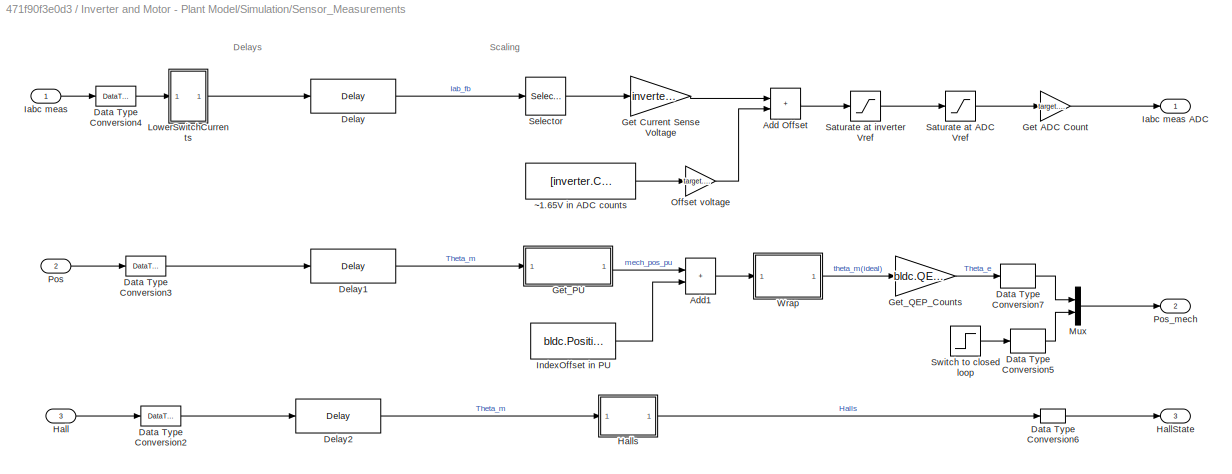
BLOCK [SubSystem] Inverter and Motor - Plant Model/Simulation/Sensor_Measurements
  Ports = [3, 3]
  RequestExecContextInheritance = off
BLOCK [Sum] Inverter and Motor - Plant Model/Simulation/Sensor_Measurements/Add Offset
  IconShape = rectangular
  Ports = [2, 1]
  RndMeth = Simplest
BLOCK [Sum] Inverter and Motor - Plant Model/Simulation/Sensor_Measurements/Add1
  IconShape = rectangular
  Ports = [2, 1]
  RndMeth = Simplest
BLOCK [DataTypeConversion] Inverter and Motor - Plant Model/Simulation/Sensor_Measurements/Data Type Conversion2
  OutDataTypeStr = single
  RndMeth = Simplest
  SaturateOnIntegerOverflow = off
BLOCK [DataTypeConversion] Inverter and Motor - Plant Model/Simulation/Sensor_Measurements/Data Type Conversion3
  OutDataTypeStr = single
  RndMeth = Simplest
  SaturateOnIntegerOverflow = off
BLOCK [DataTypeConversion] Inverter and Motor - Plant Model/Simulation/Sensor_Measurements/Data Type Conversion4
  OutDataTypeStr = single
  RndMeth = Simplest
  SaturateOnIntegerOverflow = off
BLOCK [DataTypeConversion] Inverter and Motor - Plant Model/Simulation/Sensor_Measurements/Data Type Conversion5
  OutDataTypeStr = uint16
  RndMeth = Simplest
  SaturateOnIntegerOverflow = off
BLOCK [DataTypeConversion] Inverter and Motor - Plant Model/Simulation/Sensor_Measurements/Data Type Conversion6
  OutDataTypeStr = uint32
  RndMeth = Floor
  SaturateOnIntegerOverflow = off
BLOCK [DataTypeConversion] Inverter and Motor - Plant Model/Simulation/Sensor_Measurements/Data Type Conversion7
  OutDataTypeStr = uint16
  RndMeth = Simplest
  SaturateOnIntegerOverflow = off
BLOCK [Delay] Inverter and Motor - Plant Model/Simulation/Sensor_Measurements/Delay
  DelayLength = PI_params.delay_Currents
  InputPortMap = u0
  Ports = [1, 1]
BLOCK [Delay] Inverter and Motor - Plant Model/Simulation/Sensor_Measurements/Delay1
  DelayLength = PI_params.delay_Position
  InputPortMap = u0
  Ports = [1, 1]
BLOCK [Delay] Inverter and Motor - Plant Model/Simulation/Sensor_Measurements/Delay2
  DelayLength = PI_params.delay_Position
  InputPortMap = u0
  Ports = [1, 1]
BLOCK [Gain] Inverter and Motor - Plant Model/Simulation/Sensor_Measurements/Get ADC Count
  Gain = target.ADC_MaxCount/target.ADC_Vref
  OutDataTypeStr = uint16
  OutMax = target.ADC_MaxCount
  OutMin = 0
  RndMeth = Simplest
BLOCK [Gain] Inverter and Motor - Plant Model/Simulation/Sensor_Measurements/Get Current Sense Voltage
  Gain = inverter.ISenseVoltPerAmp
  OutDataTypeStr = Inherit: Same as input
  RndMeth = Simplest
BLOCK [SubSystem] Inverter and Motor - Plant Model/Simulation/Sensor_Measurements/Get_PU 
  Ports = [1, 1]
  RequestExecContextInheritance = off
BLOCK [Constant] Inverter and Motor - Plant Model/Simulation/Sensor_Measurements/Get_PU /Constant2
  OutDataTypeStr = single
  SampleTime = -1
  Value = 2*pi
BLOCK [Gain] Inverter and Motor - Plant Model/Simulation/Sensor_Measurements/Get_PU /Get_PU
  Gain = 1/(2*pi)
  OutDataTypeStr = Inherit: Same as input
  RndMeth = Simplest
BLOCK [Math] Inverter and Motor - Plant Model/Simulation/Sensor_Measurements/Get_PU /Mod
  Operator = mod
  Ports = [2, 1]
BLOCK [Outport] Inverter and Motor - Plant Model/Simulation/Sensor_Measurements/Get_PU /PU
  VectorParamsAs1DForOutWhenUnconnected = off
BLOCK [Inport] Inverter and Motor - Plant Model/Simulation/Sensor_Measurements/Get_PU /rad
BLOCK [Gain] Inverter and Motor - Plant Model/Simulation/Sensor_Measurements/Get_QEP_Counts
  Gain = bldc.QEPSlits*4
  OutDataTypeStr = uint16
  RndMeth = Simplest
BLOCK [Inport] Inverter and Motor - Plant Model/Simulation/Sensor_Measurements/Hall
  Port = 3
BLOCK [Outport] Inverter and Motor - Plant Model/Simulation/Sensor_Measurements/HallState
  Port = 3
BLOCK [SubSystem] Inverter and Motor - Plant Model/Simulation/Sensor_Measurements/Halls
  Ports = [1, 1]
  RequestExecContextInheritance = off
BLOCK [Gain] Inverter and Motor - Plant Model/Simulation/Sensor_Measurements/Halls/Gain
  Gain = [4 2 1]
  Multiplication = Matrix(K*u)
BLOCK [SubSystem] Inverter and Motor - Plant Model/Simulation/Sensor_Measurements/Halls/Hall Signals HW
  Ports = [1, 1]
  RequestExecContextInheritance = off
BLOCK [Reference] Inverter and Motor - Plant Model/Simulation/Sensor_Measurements/Halls/Hall Signals HW/Bitwise AND1  REF=simulink/Logic and Bit
Operations/Bitwise
Operator
  Ports = [1, 1]
  SourceBlock = simulink/Logic and Bit\nOperations/Bitwise\nOperator
  SourceProductBaseCode = SL
  SourceType = Bitwise Operator
BLOCK [Reference] Inverter and Motor - Plant Model/Simulation/Sensor_Measurements/Halls/Hall Signals HW/Bitwise AND2  REF=simulink/Logic and Bit
Operations/Bitwise
Operator
  Ports = [1, 1]
  SourceBlock = simulink/Logic and Bit\nOperations/Bitwise\nOperator
  SourceProductBaseCode = SL
  SourceType = Bitwise Operator
BLOCK [Reference] Inverter and Motor - Plant Model/Simulation/Sensor_Measurements/Halls/Hall Signals HW/Bitwise AND3  REF=simulink/Logic and Bit
Operations/Bitwise
Operator
  Ports = [1, 1]
  SourceBlock = simulink/Logic and Bit\nOperations/Bitwise\nOperator
  SourceProductBaseCode = SL
  SourceType = Bitwise Operator
BLOCK [DataTypeConversion] Inverter and Motor - Plant Model/Simulation/Sensor_Measurements/Halls/Hall Signals HW/Data Type Conversion
  OutDataTypeStr = boolean
  RndMeth = Floor
  SaturateOnIntegerOverflow = off
BLOCK [DataTypeConversion] Inverter and Motor - Plant Model/Simulation/Sensor_Measurements/Halls/Hall Signals HW/Data Type Conversion1
  OutDataTypeStr = boolean
  RndMeth = Floor
  SaturateOnIntegerOverflow = off
BLOCK [DataTypeConversion] Inverter and Motor - Plant Model/Simulation/Sensor_Measurements/Halls/Hall Signals HW/Data Type Conversion2
  OutDataTypeStr = boolean
  RndMeth = Floor
  SaturateOnIntegerOverflow = off
BLOCK [Outport] Inverter and Motor - Plant Model/Simulation/Sensor_Measurements/Halls/Hall Signals HW/Hall Signals
BLOCK [Inport] Inverter and Motor - Plant Model/Simulation/Sensor_Measurements/Halls/Hall Signals HW/HallState
BLOCK [Mux] Inverter and Motor - Plant Model/Simulation/Sensor_Measurements/Halls/Hall Signals HW/Mux
  DisplayOption = bar
  Inputs = 3
  Ports = [3, 1]
BLOCK [SubSystem] Inverter and Motor - Plant Model/Simulation/Sensor_Measurements/Halls/Hall State Plant to HW
  Ports = [1, 1]
  RequestExecContextInheritance = off
BLOCK [DataTypeConversion] Inverter and Motor - Plant Model/Simulation/Sensor_Measurements/Halls/Hall State Plant to HW/Data Type Conversion
  OutDataTypeStr = uint8
  RndMeth = Floor
  SaturateOnIntegerOverflow = off
BLOCK [Inport] Inverter and Motor - Plant Model/Simulation/Sensor_Measurements/Halls/Hall State Plant to HW/HallStatePlant
BLOCK [Outport] Inverter and Motor - Plant Model/Simulation/Sensor_Measurements/Halls/Hall State Plant to HW/HallstateHw
BLOCK [SubSystem] Inverter and Motor - Plant Model/Simulation/Sensor_Measurements/Halls/Hall State Plant to HW/If Action Subsystem
  Ports = [0, 1, 0, 0, 0, 0, 0, 1]
  RequestExecContextInheritance = off
  TreatAsAtomicUnit = on
BLOCK [ActionPort] Inverter and Motor - Plant Model/Simulation/Sensor_Measurements/Halls/Hall State Plant to HW/If Action Subsystem/Action Port
  ActionPortLabel = case [ 1 ]:
BLOCK [Constant] Inverter and Motor - Plant Model/Simulation/Sensor_Measurements/Halls/Hall State Plant to HW/If Action Subsystem/Constant
  OutDataTypeStr = uint16
  Value = bldc.HallSequence(1)
BLOCK [Outport] Inverter and Motor - Plant Model/Simulation/Sensor_Measurements/Halls/Hall State Plant to HW/If Action Subsystem/Out1
BLOCK [SubSystem] Inverter and Motor - Plant Model/Simulation/Sensor_Measurements/Halls/Hall State Plant to HW/If Action Subsystem1
  Ports = [0, 1, 0, 0, 0, 0, 0, 1]
  RequestExecContextInheritance = off
  TreatAsAtomicUnit = on
BLOCK [ActionPort] Inverter and Motor - Plant Model/Simulation/Sensor_Measurements/Halls/Hall State Plant to HW/If Action Subsystem1/Action Port
  ActionPortLabel = case [ 5 ]:
BLOCK [Constant] Inverter and Motor - Plant Model/Simulation/Sensor_Measurements/Halls/Hall State Plant to HW/If Action Subsystem1/Constant
  OutDataTypeStr = uint16
  Value = bldc.HallSequence(2)
BLOCK [Outport] Inverter and Motor - Plant Model/Simulation/Sensor_Measurements/Halls/Hall State Plant to HW/If Action Subsystem1/Out1
BLOCK [SubSystem] Inverter and Motor - Plant Model/Simulation/Sensor_Measurements/Halls/Hall State Plant to HW/If Action Subsystem2
  Ports = [0, 1, 0, 0, 0, 0, 0, 1]
  RequestExecContextInheritance = off
  TreatAsAtomicUnit = on
BLOCK [ActionPort] Inverter and Motor - Plant Model/Simulation/Sensor_Measurements/Halls/Hall State Plant to HW/If Action Subsystem2/Action Port
  ActionPortLabel = case [ 4 ]:
BLOCK [Constant] Inverter and Motor - Plant Model/Simulation/Sensor_Measurements/Halls/Hall State Plant to HW/If Action Subsystem2/Constant
  OutDataTypeStr = uint16
  Value = bldc.HallSequence(3)
BLOCK [Outport] Inverter and Motor - Plant Model/Simulation/Sensor_Measurements/Halls/Hall State Plant to HW/If Action Subsystem2/Out1
BLOCK [SubSystem] Inverter and Motor - Plant Model/Simulation/Sensor_Measurements/Halls/Hall State Plant to HW/If Action Subsystem3
  Ports = [0, 1, 0, 0, 0, 0, 0, 1]
  RequestExecContextInheritance = off
  TreatAsAtomicUnit = on
BLOCK [ActionPort] Inverter and Motor - Plant Model/Simulation/Sensor_Measurements/Halls/Hall State Plant to HW/If Action Subsystem3/Action Port
  ActionPortLabel = case [ 6 ]:
BLOCK [Constant] Inverter and Motor - Plant Model/Simulation/Sensor_Measurements/Halls/Hall State Plant to HW/If Action Subsystem3/Constant
  OutDataTypeStr = uint16
  Value = bldc.HallSequence(4)
BLOCK [Outport] Inverter and Motor - Plant Model/Simulation/Sensor_Measurements/Halls/Hall State Plant to HW/If Action Subsystem3/Out1
BLOCK [SubSystem] Inverter and Motor - Plant Model/Simulation/Sensor_Measurements/Halls/Hall State Plant to HW/If Action Subsystem4
  Ports = [0, 1, 0, 0, 0, 0, 0, 1]
  RequestExecContextInheritance = off
  TreatAsAtomicUnit = on
BLOCK [ActionPort] Inverter and Motor - Plant Model/Simulation/Sensor_Measurements/Halls/Hall State Plant to HW/If Action Subsystem4/Action Port
  ActionPortLabel = case [ 2 ]:
BLOCK [Constant] Inverter and Motor - Plant Model/Simulation/Sensor_Measurements/Halls/Hall State Plant to HW/If Action Subsystem4/Constant
  OutDataTypeStr = uint16
  Value = bldc.HallSequence(5)
BLOCK [Outport] Inverter and Motor - Plant Model/Simulation/Sensor_Measurements/Halls/Hall State Plant to HW/If Action Subsystem4/Out1
BLOCK [SubSystem] Inverter and Motor - Plant Model/Simulation/Sensor_Measurements/Halls/Hall State Plant to HW/If Action Subsystem5
  Ports = [0, 1, 0, 0, 0, 0, 0, 1]
  RequestExecContextInheritance = off
  TreatAsAtomicUnit = on
BLOCK [ActionPort] Inverter and Motor - Plant Model/Simulation/Sensor_Measurements/Halls/Hall State Plant to HW/If Action Subsystem5/Action Port
  ActionPortLabel = case [ 3 ]:
BLOCK [Constant] Inverter and Motor - Plant Model/Simulation/Sensor_Measurements/Halls/Hall State Plant to HW/If Action Subsystem5/Constant
  OutDataTypeStr = uint16
  Value = bldc.HallSequence(6)
BLOCK [Outport] Inverter and Motor - Plant Model/Simulation/Sensor_Measurements/Halls/Hall State Plant to HW/If Action Subsystem5/Out1
BLOCK [Merge] Inverter and Motor - Plant Model/Simulation/Sensor_Measurements/Halls/Hall State Plant to HW/Merge
  Inputs = 6
  Ports = [6, 1]
BLOCK [SwitchCase] Inverter and Motor - Plant Model/Simulation/Sensor_Measurements/Halls/Hall State Plant to HW/Switch Case
  CaseConditions = {1,5,4,6,2,3}
  Ports = [1, 6]
  ShowDefaultCase = off
BLOCK [Sum] Inverter and Motor - Plant Model/Simulation/Sensor_Measurements/Halls/Sum of Elements
  IconShape = rectangular
  Inputs = +
  Ports = [1, 1]
BLOCK [Inport] Inverter and Motor - Plant Model/Simulation/Sensor_Measurements/Halls/x
BLOCK [Outport] Inverter and Motor - Plant Model/Simulation/Sensor_Measurements/Halls/y
  VectorParamsAs1DForOutWhenUnconnected = off
BLOCK [Inport] Inverter and Motor - Plant Model/Simulation/Sensor_Measurements/Iabc meas
BLOCK [Outport] Inverter and Motor - Plant Model/Simulation/Sensor_Measurements/Iabc meas ADC
  VectorParamsAs1DForOutWhenUnconnected = off
BLOCK [Constant] Inverter and Motor - Plant Model/Simulation/Sensor_Measurements/IndexOffset in PU
  OutDataTypeStr = single
  SampleTime = -1
  Value = bldc.PositionOffset
BLOCK [SubSystem] Inverter and Motor - Plant Model/Simulation/Sensor_Measurements/LowerSwitchCurrents
  Ports = [1, 1]
  RequestExecContextInheritance = off
BLOCK [Constant] Inverter and Motor - Plant Model/Simulation/Sensor_Measurements/LowerSwitchCurrents/Constant
  Value = 0
BLOCK [Inport] Inverter and Motor - Plant Model/Simulation/Sensor_Measurements/LowerSwitchCurrents/In1
BLOCK [Switch] Inverter and Motor - Plant Model/Simulation/Sensor_Measurements/LowerSwitchCurrents/Switch
  Criteria = u2 > Threshold
  InputSameDT = off
  SaturateOnIntegerOverflow = off
BLOCK [Outport] Inverter and Motor - Plant Model/Simulation/Sensor_Measurements/LowerSwitchCurrents/cu
BLOCK [Mux] Inverter and Motor - Plant Model/Simulation/Sensor_Measurements/Mux
  DisplayOption = bar
  Inputs = 2
  Ports = [2, 1]
BLOCK [Gain] Inverter and Motor - Plant Model/Simulation/Sensor_Measurements/Offset voltage
  Gain = target.ADC_Vref / target.ADC_MaxCount
  RndMeth = Simplest
BLOCK [Inport] Inverter and Motor - Plant Model/Simulation/Sensor_Measurements/Pos
  Port = 2
BLOCK [Outport] Inverter and Motor - Plant Model/Simulation/Sensor_Measurements/Pos_mech
  Port = 2
BLOCK [Saturate] Inverter and Motor - Plant Model/Simulation/Sensor_Measurements/Saturate at ADC Vref
  LowerLimit = 0
  UpperLimit = target.ADC_Vref
BLOCK [Saturate] Inverter and Motor - Plant Model/Simulation/Sensor_Measurements/Saturate at inverter Vref
  LowerLimit = 0
  UpperLimit = inverter.ISenseVref
BLOCK [Selector] Inverter and Motor - Plant Model/Simulation/Sensor_Measurements/Selector
  IndexOptions = Index vector (dialog)
  Indices = [1 2 3]
  InputPortWidth = 3
  OutputSizes = 1
  Ports = [1, 1]
BLOCK [Step] Inverter and Motor - Plant Model/Simulation/Sensor_Measurements/Switch to closed loop 
  SampleTime = Ts_motor
  Time = 0.1
BLOCK [SubSystem] Inverter and Motor - Plant Model/Simulation/Sensor_Measurements/Wrap
  Ports = [1, 1]
  RequestExecContextInheritance = off
BLOCK [Constant] Inverter and Motor - Plant Model/Simulation/Sensor_Measurements/Wrap/Constant2
  OutDataTypeStr = single
  SampleTime = -1
BLOCK [Math] Inverter and Motor - Plant Model/Simulation/Sensor_Measurements/Wrap/Mod
  Operator = mod
  Ports = [2, 1]
BLOCK [Inport] Inverter and Motor - Plant Model/Simulation/Sensor_Measurements/Wrap/in
BLOCK [Outport] Inverter and Motor - Plant Model/Simulation/Sensor_Measurements/Wrap/out
  VectorParamsAs1DForOutWhenUnconnected = off
BLOCK [Constant] Inverter and Motor - Plant Model/Simulation/Sensor_Measurements/~1.65V in ADC counts
  OutDataTypeStr = single
  SampleTime = -1
  Value = [inverter.CtSensAOffset inverter.CtSensBOffset  inverter.CtSensCOffset]
BLOCK [Outport] Inverter and Motor - Plant Model/Simulation/fb_sim
BLOCK [VariantSink] Inverter and Motor - Plant Model/Variant Sink
  Ports = [1, 2]
  VariantControlMode = sim codegen switching
BLOCK [VariantSource] Inverter and Motor - Plant Model/Variant Source
  Ports = [2, 1]
  VariantControlMode = sim codegen switching
BLOCK [Outport] Inverter and Motor - Plant Model/feedback_sim
  VectorParamsAs1DForOutWhenUnconnected = off
BLOCK [RateTransition] RT2
  Deterministic = off
BLOCK [RateTransition] RT3
  Deterministic = off
BLOCK [RateTransition] RT4
  Deterministic = off
BLOCK [RateTransition] RT6
  Deterministic = off
  OutPortSampleTime = Ts_speed
BLOCK [RateTransition] RT7
  Deterministic = off
  OutPortSampleTime = Ts_speed
BLOCK [RadioButtonGroup] Radio Button
  ButtonGroupName = Speed_Feedback
  LabelPosition = Hide
  SelectedLabel = Hall
BLOCK [SubSystem] Serial Receive
  Ports = [0, 1, 0, 1]
  RTWMemSecFuncExecute = code_ramfuncs
  RequestExecContextInheritance = off
  SystemSampleTime = 1e-3
BLOCK [SubSystem] Serial Receive/Code Generation
  Ports = [0, 1]
  RequestExecContextInheritance = off
  Variant = on
BLOCK [SubSystem] Serial Receive/Code Generation/Data_Type_Fixed_Point
  Ports = [0, 1]
  RequestExecContextInheritance = off
  VariantControl = ~isequal(dataType, 'single')
BLOCK [Outport] Serial Receive/Code Generation/Data_Type_Fixed_Point/Out1
BLOCK [Reference] Serial Receive/Code Generation/Data_Type_Fixed_Point/SCI Receive  REF=c280xlib/SCI Receive
  Ports = [0, 1]
  SourceBlock = c280xlib/SCI Receive
  SourceProductBaseCode = TIC2000
  SourceType = C28x SCI Receive
BLOCK [SubSystem] Serial Receive/Code Generation/Data_Type_Float
  Ports = [0, 1]
  RequestExecContextInheritance = off
  VariantControl = isequal(dataType, 'single')
BLOCK [Outport] Serial Receive/Code Generation/Data_Type_Float/Out1
BLOCK [Reference] Serial Receive/Code Generation/Data_Type_Float/SCI Receive  REF=c280xlib/SCI Receive
  Ports = [0, 1]
  SourceBlock = c280xlib/SCI Receive
  SourceProductBaseCode = TIC2000
  SourceType = C28x SCI Receive
BLOCK [Outport] Serial Receive/Code Generation/Out1
BLOCK [DataStoreWrite] Serial Receive/Data Store Write
  DataStoreName = Enable
  IndexOptions = Index vector (dialog)
  Indices = 1
  OutputSizes = 1
  Ports = [1]
BLOCK [DataStoreWrite] Serial Receive/Data Store Write1
  DataStoreName = Speed_ref
  IndexOptions = Index vector (dialog)
  Indices = 1
  OutputSizes = 1
  Ports = [1]
BLOCK [DataStoreWrite] Serial Receive/Data Store Write2
  DataStoreName = Debug_signals
  IndexOptions = Index vector (dialog)
  Indices = 1
  OutputSizes = 1
  Ports = [1]
BLOCK [SubSystem] Serial Receive/Data_Conditioning_Rx
  Ports = [1, 2]
  RequestExecContextInheritance = off
  Variant = on
BLOCK [SubSystem] Serial Receive/Data_Conditioning_Rx/Data_Type_Fixed_Point
  Ports = [1, 2]
  RequestExecContextInheritance = off
  VariantControl = ~isequal(dataType, 'single')
BLOCK [DataTypeConversion] Serial Receive/Data_Conditioning_Rx/Data_Type_Fixed_Point/Data Type Conversion1
  OutDataTypeStr = dataType
  RndMeth = Simplest
  SaturateOnIntegerOverflow = off
BLOCK [DataTypeConversion] Serial Receive/Data_Conditioning_Rx/Data_Type_Fixed_Point/Data Type Conversion2
  ConvertRealWorld = Stored Integer (SI)
  OutDataTypeStr = fixdt(1,32,28)
  RndMeth = Simplest
  SaturateOnIntegerOverflow = off
BLOCK [DataTypeConversion] Serial Receive/Data_Conditioning_Rx/Data_Type_Fixed_Point/Data Type Conversion3
  OutDataTypeStr = uint16
  RndMeth = Simplest
  SaturateOnIntegerOverflow = off
BLOCK [Demux] Serial Receive/Data_Conditioning_Rx/Data_Type_Fixed_Point/Demux
  Outputs = 2
  Ports = [1, 2]
BLOCK [Outport] Serial Receive/Data_Conditioning_Rx/Data_Type_Fixed_Point/Desired Speed
BLOCK [Inport] Serial Receive/Data_Conditioning_Rx/Data_Type_Fixed_Point/In1
BLOCK [Outport] Serial Receive/Data_Conditioning_Rx/Data_Type_Fixed_Point/Out2
  Port = 2
BLOCK [SubSystem] Serial Receive/Data_Conditioning_Rx/Data_Type_Float
  Ports = [1, 2]
  RequestExecContextInheritance = off
  VariantControl = isequal(dataType, 'single')
BLOCK [DataTypeConversion] Serial Receive/Data_Conditioning_Rx/Data_Type_Float/Data Type Conversion2
  OutDataTypeStr = uint16
  RndMeth = Simplest
  SaturateOnIntegerOverflow = off
BLOCK [Demux] Serial Receive/Data_Conditioning_Rx/Data_Type_Float/Demux
  Outputs = 2
  Ports = [1, 2]
BLOCK [Outport] Serial Receive/Data_Conditioning_Rx/Data_Type_Float/Desired Speed
BLOCK [Inport] Serial Receive/Data_Conditioning_Rx/Data_Type_Float/In1
BLOCK [Outport] Serial Receive/Data_Conditioning_Rx/Data_Type_Float/Out2
  Port = 2
BLOCK [Outport] Serial Receive/Data_Conditioning_Rx/Desired Speed
BLOCK [Inport] Serial Receive/Data_Conditioning_Rx/In1
BLOCK [Outport] Serial Receive/Data_Conditioning_Rx/Out2
  Port = 2
BLOCK [Outport] Serial Receive/Desired Speed
  VectorParamsAs1DForOutWhenUnconnected = off
BLOCK [TriggerPort] Serial Receive/SCI_Rx_INT
  Ports = []
  StatesWhenEnabling = held
  TriggerType = function-call
  VariantControl = Variant
BLOCK [SubSystem] Serial Receive/Simulation
  Ports = [0, 1]
  RequestExecContextInheritance = off
BLOCK [Outport] Serial Receive/Simulation/Data
BLOCK [DataTypeConversion] Serial Receive/Simulation/Data Type Conversion2
  OutDataTypeStr = dataType
  RndMeth = Simplest
  SaturateOnIntegerOverflow = off
BLOCK [SubSystem] Serial Receive/Simulation/Data_Conditioning_Tx
  Ports = [2, 1]
  RequestExecContextInheritance = off
  Variant = on
BLOCK [Outport] Serial Receive/Simulation/Data_Conditioning_Tx/Data
BLOCK [SubSystem] Serial Receive/Simulation/Data_Conditioning_Tx/Data_Type_Fixed_Point
  Ports = [2, 1]
  RequestExecContextInheritance = off
  VariantControl = ~isequal(dataType, 'single')
BLOCK [Outport] Serial Receive/Simulation/Data_Conditioning_Tx/Data_Type_Fixed_Point/Data
BLOCK [DataTypeConversion] Serial Receive/Simulation/Data_Conditioning_Tx/Data_Type_Fixed_Point/Data Type Conversion
  OutDataTypeStr = fixdt(1,32,28)
  RndMeth = Simplest
  SaturateOnIntegerOverflow = off
BLOCK [DataTypeConversion] Serial Receive/Simulation/Data_Conditioning_Tx/Data_Type_Fixed_Point/Data Type Conversion1
  OutDataTypeStr = uint32
  RndMeth = Simplest
  SaturateOnIntegerOverflow = off
BLOCK [DataTypeConversion] Serial Receive/Simulation/Data_Conditioning_Tx/Data_Type_Fixed_Point/Data Type Conversion3
  ConvertRealWorld = Stored Integer (SI)
  OutDataTypeStr = uint32
  RndMeth = Simplest
  SaturateOnIntegerOverflow = off
BLOCK [Inport] Serial Receive/Simulation/Data_Conditioning_Tx/Data_Type_Fixed_Point/In1
BLOCK [Inport] Serial Receive/Simulation/Data_Conditioning_Tx/Data_Type_Fixed_Point/In2
  Port = 2
BLOCK [Mux] Serial Receive/Simulation/Data_Conditioning_Tx/Data_Type_Fixed_Point/Mux
  DisplayOption = bar
  Inputs = 2
  Ports = [2, 1]
BLOCK [SubSystem] Serial Receive/Simulation/Data_Conditioning_Tx/Data_Type_Float
  Ports = [2, 1]
  RequestExecContextInheritance = off
  VariantControl = isequal(dataType, 'single')
BLOCK [Outport] Serial Receive/Simulation/Data_Conditioning_Tx/Data_Type_Float/Data
BLOCK [DataTypeConversion] Serial Receive/Simulation/Data_Conditioning_Tx/Data_Type_Float/Data Type Conversion2
  OutDataTypeStr = single
  RndMeth = Simplest
  SaturateOnIntegerOverflow = off
BLOCK [Inport] Serial Receive/Simulation/Data_Conditioning_Tx/Data_Type_Float/In1
BLOCK [Inport] Serial Receive/Simulation/Data_Conditioning_Tx/Data_Type_Float/In2
  Port = 2
BLOCK [Mux] Serial Receive/Simulation/Data_Conditioning_Tx/Data_Type_Float/Mux
  DisplayOption = bar
  Inputs = 2
  Ports = [2, 1]
BLOCK [Inport] Serial Receive/Simulation/Data_Conditioning_Tx/In1
BLOCK [Inport] Serial Receive/Simulation/Data_Conditioning_Tx/In2
  Port = 2
BLOCK [Constant] Serial Receive/Simulation/Debug_signals
  OutDataTypeStr = uint16
  SampleTime = -1
BLOCK [Constant] Serial Receive/Simulation/Enable
  OutDataTypeStr = uint16
  SampleTime = -1
BLOCK [SubSystem] Serial Receive/Simulation/Parse
  Ports = [2, 1]
  RequestExecContextInheritance = off
BLOCK [Reference] Serial Receive/Simulation/Parse/Bitwise Operator  REF=simulink/Logic and Bit
Operations/Bitwise
Operator
  Ports = [1, 1]
  SourceBlock = simulink/Logic and Bit\nOperations/Bitwise\nOperator
  SourceProductBaseCode = SL
  SourceType = Bitwise Operator
BLOCK [Reference] Serial Receive/Simulation/Parse/Bitwise Operator1  REF=simulink/Logic and Bit
Operations/Bitwise
Operator
  Ports = [1, 1]
  SourceBlock = simulink/Logic and Bit\nOperations/Bitwise\nOperator
  SourceProductBaseCode = SL
  SourceType = Bitwise Operator
BLOCK [Outport] Serial Receive/Simulation/Parse/Data
BLOCK [Inport] Serial Receive/Simulation/Parse/Debug_signals
  Port = 2
BLOCK [Inport] Serial Receive/Simulation/Parse/Enable_PWM
BLOCK [ArithShift] Serial Receive/Simulation/Parse/Shift Arithmetic1
  BitShiftNumber = -4
  InputPortMap = u0
  Ports = [1, 1]
BLOCK [Sum] Serial Receive/Simulation/Parse/Sum
  IconShape = rectangular
  Ports = [2, 1]
BLOCK [Step] Serial Receive/Simulation/Reversal
  Time = 1.2
BLOCK [Constant] Serial Receive/Simulation/Speed_Ref_Final (rpm)
  OutDataTypeStr = dataType
  SampleTime = -1
  Value = -0.8*bldc.N_base
BLOCK [Step] Serial Receive/Simulation/Speed_Ref_Init (rpm)
  After = 0.8*bldc.N_base
  Before = 0.2*bldc.N_base
  Time = 0.5
BLOCK [Switch] Serial Receive/Simulation/Switch
  Criteria = u2 > Threshold
  InputSameDT = off
  SaturateOnIntegerOverflow = off
BLOCK [Gain] Serial Receive/Simulation/rpm2PU
  Gain = 1/bldc.N_base
  OutDataTypeStr = Inherit: Same as input
  RndMeth = Simplest
BLOCK [VariantSource] Serial Receive/Variant Source
  Ports = [2, 1]
  VariantControlMode = sim codegen switching
BLOCK [SubSystem] Serial Receive/unParse
  Ports = [1, 2]
  RequestExecContextInheritance = off
BLOCK [Reference] Serial Receive/unParse/Bitwise Operator  REF=simulink/Logic and Bit
Operations/Bitwise
Operator
  Ports = [1, 1]
  SourceBlock = simulink/Logic and Bit\nOperations/Bitwise\nOperator
  SourceProductBaseCode = SL
  SourceType = Bitwise Operator
BLOCK [Reference] Serial Receive/unParse/Bitwise Operator1  REF=simulink/Logic and Bit
Operations/Bitwise
Operator
  Ports = [1, 1]
  SourceBlock = simulink/Logic and Bit\nOperations/Bitwise\nOperator
  SourceProductBaseCode = SL
  SourceType = Bitwise Operator
BLOCK [Inport] Serial Receive/unParse/Data
BLOCK [DataTypeConversion] Serial Receive/unParse/Data Type Conversion3
  OutDataTypeStr = boolean
  RndMeth = Simplest
  SaturateOnIntegerOverflow = off
BLOCK [DataTypeConversion] Serial Receive/unParse/Data Type Conversion4
  NameLocation = left
  OutDataTypeStr = uint16
  RndMeth = Simplest
  SaturateOnIntegerOverflow = off
BLOCK [Outport] Serial Receive/unParse/Debug_signals
  Port = 2
BLOCK [Outport] Serial Receive/unParse/Enable_PWM
BLOCK [ArithShift] Serial Receive/unParse/Shift Arithmetic1
  BitShiftNumber = 4
  InputPortMap = u0
  Ports = [1, 1]
BLOCK [SubSystem] Simulation
  Ports = [0, 1]
  RequestExecContextInheritance = off
BLOCK [Reference] Simulation/Function-Call Generator  REF=simulink/Ports &
Subsystems/Function-Call
Generator
  Ports = [0, 1]
  SourceBlock = simulink/Ports &\nSubsystems/Function-Call\nGenerator
  SourceProductBaseCode = SL
  SourceType = Function-Call Generator
BLOCK [Reference] Simulation/Function-Call Generator2  REF=simulink/Ports &
Subsystems/Function-Call
Generator
  Ports = [0, 1]
  SourceBlock = simulink/Ports &\nSubsystems/Function-Call\nGenerator
  SourceProductBaseCode = SL
  SourceType = Function-Call Generator
BLOCK [Outport] Simulation/HW_INT
  VectorParamsAs1DForOutWhenUnconnected = off
BLOCK [Mux] Simulation/Mux
  DisplayOption = bar
  Inputs = 2
  Ports = [2, 1]
BLOCK [SubSystem] Speed Control
  Ports = [2, 1]
  RTWSystemCode = Reusable function
  RequestExecContextInheritance = off
  SystemSampleTime = Ts_speed
  TreatAsAtomicUnit = on
BLOCK [Outport] Speed Control/IdcRef_PU
  VectorParamsAs1DForOutWhenUnconnected = off
BLOCK [SubSystem] Speed Control/PI_Controller_Speed
  Ports = [2, 1]
  RequestExecContextInheritance = off
BLOCK [DataStoreRead] Speed Control/PI_Controller_Speed/Data Store Read2
  DataStoreName = Enable
  IndexOptions = Index vector (dialog)
  Indices = 1
  OutputSizes = 1
  Ports = [0, 1]
BLOCK [Reference] Speed Control/PI_Controller_Speed/Discrete PI Controller with anti-windup & reset  REF=mcbcontrolslib/Discrete PI Controller 
with anti-windup & reset
  Ports = [5, 1]
  SourceBlock = mcbcontrolslib/Discrete PI Controller \nwith anti-windup & reset
  SourceProductBaseCode = MT
  SourceType = Discrete PI Controller with anti-windup and reset
BLOCK [Outport] Speed Control/PI_Controller_Speed/Idc_ref
  VectorParamsAs1DForOutWhenUnconnected = off
BLOCK [Constant] Speed Control/PI_Controller_Speed/Ki1
  NameLocation = top
  OutDataTypeStr = dataType
  SampleTime = -1
  Value = PI_params.Ki_speed*Ts_speed
BLOCK [Constant] Speed Control/PI_Controller_Speed/Ki2
  NameLocation = top
  OutDataTypeStr = dataType
  SampleTime = -1
  Value = 0
BLOCK [Constant] Speed Control/PI_Controller_Speed/Kp1
  NameLocation = top
  OutDataTypeStr = dataType
  SampleTime = -1
  Value = PI_params.Kp_speed
BLOCK [Logic] Speed Control/PI_Controller_Speed/Logical Operator
  AllPortsSameDT = off
  IconShape = distinctive
  Operator = NOT
  OutDataTypeStr = boolean
  Ports = [1, 1]
BLOCK [Inport] Speed Control/PI_Controller_Speed/N_fb
  Port = 2
BLOCK [Inport] Speed Control/PI_Controller_Speed/N_ref
BLOCK [Sum] Speed Control/PI_Controller_Speed/Sum
  AccumDataTypeStr = Inherit: Same as first input
  Inputs = |+-
  Ports = [2, 1]
  RndMeth = Round
BLOCK [Reference] Speed Control/PI_Controller_Speed/Zero_Cancellation  REF=mcbcontrolslib/IIR Filter
  Ports = [1, 1]
  SourceBlock = mcbcontrolslib/IIR Filter
  SourceProductBaseCode = MT
  SourceType = IIR Filter
BLOCK [Inport] Speed Control/Speed_Meas_PU
  Port = 2
BLOCK [Inport] Speed Control/Speed_Ref_PU
BLOCK [SubSystem] Speed Control/Speed_Ref_Selector
  Ports = [2, 1]
  RequestExecContextInheritance = off
BLOCK [DataStoreRead] Speed Control/Speed_Ref_Selector/Data Store Read1
  DataStoreName = Enable
  IndexOptions = Index vector (dialog)
  Indices = 1
  OutputSizes = 1
  Ports = [0, 1]
BLOCK [Inport] Speed Control/Speed_Ref_Selector/Speed_Ref_In
BLOCK [Inport] Speed Control/Speed_Ref_Selector/Speed_Ref_Open
  Port = 2
BLOCK [Outport] Speed Control/Speed_Ref_Selector/Speed_Ref_PU
BLOCK [Switch] Speed Control/Speed_Ref_Selector/Switch
  Criteria = u2 > Threshold
  InputSameDT = off
  SaturateOnIntegerOverflow = off
  Threshold = 0.5
BLOCK [VariantSource] Variant Source
  OutputFunctionCall = on
  Ports = [2, 1]
  VariantControlMode = sim codegen switching
ANNOTATION (root): <copyright redacted>
ANNOTATION (root): Note: This example requires a TI F28379D LaunchPad with a BOOSTXL-DRV8305 booster pack connected to a BLDC Motor with Hall or QEP sensor
ANNOTATION (root): Explore more: 1. Edit motor & inverter parameters 2. For position sense using QEP, use Offset computation model to find out position offset. Update offset in Init scrip t to variable ' bldc.PositionOffset '. 3. For position sense using HALL, use hall sequence calibration to find out hall sequence. Update hall sequence in Init scrip t to variable ' bldc.HallSequence '. 4. Click Build, Deploy & Star...<+83ch>
ANNOTATION (root): Six Step Control of BLDC
ANNOTATION Current Control/Inverter (Code Generation): System Outputs
ANNOTATION Current Control/Inverter (Code Generation): for BoostXL-DRV8305 connected with LaunchXL-28379D
ANNOTATION Current Control/SCI (Code Generation)/Data_Logging: Fast Serial Data Monitoring (32-bit)
ANNOTATION Heartbeat LED: Heartbeat LED 1HZ
ANNOTATION Inverter and Motor - Plant Model/Simulation/Sensor_Measurements: Delays
ANNOTATION Inverter and Motor - Plant Model/Simulation/Sensor_Measurements: Scaling
LINE Code Generation/C28x Hardware Interrupt:1 -> Code Generation/HW_INT:1
LINE Code Generation:1 -> Variant Source:1
NET Current Control/Control_System/Abs:1 -> Current Control/Control_System/Mux:1, Current Control/Control_System/PI_Controller_Idc:1
LINE Current Control/Control_System/Data Type Conversion1:1 -> Current Control/Control_System/Product:2
LINE Current Control/Control_System/Hall_Commutation/Hallstate:1 -> Current Control/Control_System/Hall_Commutation/Six Step Commutation:1
LINE Current Control/Control_System/Hall_Commutation/Six Step Commutation:1 -> Current Control/Control_System/Hall_Commutation/switching3:1
LINE Current Control/Control_System/Hall_Commutation/TorqueSign:1 -> Current Control/Control_System/Hall_Commutation/Six Step Commutation:2
LINE Current Control/Control_System/Hall_Commutation:1 -> Current Control/Control_System/Merge:1
LINE Current Control/Control_System/Hallstate:1 -> Current Control/Control_System/Hall_Commutation:1
NET Current Control/Control_System/Idc_fb_PU:1 -> Current Control/Control_System/Mux:2, Current Control/Control_System/PI_Controller_Idc:2
NET Current Control/Control_System/Idc_ref_PU:1 -> Current Control/Control_System/Abs:1, Current Control/Control_System/Sign:1
LINE Current Control/Control_System/If:1 -> Current Control/Control_System/Hall_Commutation:ifaction
LINE Current Control/Control_System/If:2 -> Current Control/Control_System/Pos_Commutation:ifaction
LINE Current Control/Control_System/Merge:1 -> Current Control/Control_System/Data Type Conversion1:1
LINE Current Control/Control_System/Mux:1 -> Current Control/Control_System/Idc_debug:1
LINE Current Control/Control_System/PI_Controller_Idc/Data Store Read1:1 -> Current Control/Control_System/PI_Controller_Idc/Logical Operator:1
LINE Current Control/Control_System/PI_Controller_Idc/Discrete PI Controller with anti-windup & reset:1 -> Current Control/Control_System/PI_Controller_Idc/V_ref:1
LINE Current Control/Control_System/PI_Controller_Idc/Idc_fb:1 -> Current Control/Control_System/PI_Controller_Idc/Sum:2
LINE Current Control/Control_System/PI_Controller_Idc/Idc_ref:1 -> Current Control/Control_System/PI_Controller_Idc/Sum:1
LINE Current Control/Control_System/PI_Controller_Idc/Ki:1 -> Current Control/Control_System/PI_Controller_Idc/Discrete PI Controller with anti-windup & reset:3
LINE Current Control/Control_System/PI_Controller_Idc/Kp1:1 -> Current Control/Control_System/PI_Controller_Idc/Discrete PI Controller with anti-windup & reset:5
LINE Current Control/Control_System/PI_Controller_Idc/Kp:1 -> Current Control/Control_System/PI_Controller_Idc/Discrete PI Controller with anti-windup & reset:2
LINE Current Control/Control_System/PI_Controller_Idc/Logical Operator:1 -> Current Control/Control_System/PI_Controller_Idc/Discrete PI Controller with anti-windup & reset:4
LINE Current Control/Control_System/PI_Controller_Idc/Sum:1 -> Current Control/Control_System/PI_Controller_Idc/Discrete PI Controller with anti-windup & reset:1
LINE Current Control/Control_System/PI_Controller_Idc:1 -> Current Control/Control_System/Product:1
LINE Current Control/Control_System/Pos:1 -> Current Control/Control_System/Pos_Commutation:2
LINE Current Control/Control_System/Pos_Commutation/PositionInput:1 -> Current Control/Control_System/Pos_Commutation/Six Step Commutation:1
LINE Current Control/Control_System/Pos_Commutation/Six Step Commutation:1 -> Current Control/Control_System/Pos_Commutation/switching3:1
LINE Current Control/Control_System/Pos_Commutation/TorqueSign:1 -> Current Control/Control_System/Pos_Commutation/Six Step Commutation:2
LINE Current Control/Control_System/Pos_Commutation:1 -> Current Control/Control_System/Merge:2
LINE Current Control/Control_System/Product:1 -> Current Control/Control_System/Duty:1
NET Current Control/Control_System/Selector:1 -> Current Control/Control_System/Goto:1, Current Control/Control_System/If:1
NET Current Control/Control_System/Sign:1 -> Current Control/Control_System/Hall_Commutation:2, Current Control/Control_System/Pos_Commutation:1
LINE Current Control/Control_System:1 -> Current Control/Variant Sink:1
LINE Current Control/Control_System:2 -> Current Control/Debug_signals:1
LINE Current Control/Debug_signals/Data Store Read1:1 -> Current Control/Debug_signals/Mux:1
LINE Current Control/Debug_signals/Data Store Read:1 -> Current Control/Debug_signals/Multiport Switch:1
LINE Current Control/Debug_signals/Data Type Conversion:1 -> Current Control/Debug_signals/Mux:8
LINE Current Control/Debug_signals/Demux1:1 -> Current Control/Debug_signals/Mux:5
LINE Current Control/Debug_signals/Demux1:2 -> Current Control/Debug_signals/Mux:6
LINE Current Control/Debug_signals/Demux2:1 -> Current Control/Debug_signals/Mux:3
LINE Current Control/Debug_signals/Demux2:2 -> Current Control/Debug_signals/Mux:4
LINE Current Control/Debug_signals/From1:1 -> Current Control/Debug_signals/Mux:2
LINE Current Control/Debug_signals/HallState:1 -> Current Control/Debug_signals/Data Type Conversion:1
LINE Current Control/Debug_signals/Iab:1 -> Current Control/Debug_signals/Multiport Switch:5
LINE Current Control/Debug_signals/Iab_PU:1 -> Current Control/Debug_signals/Demux2:1
LINE Current Control/Debug_signals/Idc_control:1 -> Current Control/Debug_signals/Multiport Switch:3
LINE Current Control/Debug_signals/Idc_debug:1 -> Current Control/Debug_signals/Demux1:1
LINE Current Control/Debug_signals/Multiport Switch:1 -> Current Control/Debug_signals/Selector:2
LINE Current Control/Debug_signals/Mux:1 -> Current Control/Debug_signals/Selector:1
LINE Current Control/Debug_signals/Pos_hall_state:1 -> Current Control/Debug_signals/Multiport Switch:4
LINE Current Control/Debug_signals/Position:1 -> Current Control/Debug_signals/Mux:7
LINE Current Control/Debug_signals/Selector:1 -> Current Control/Debug_signals/Debug_signal:1
LINE Current Control/Debug_signals/speed_control:1 -> Current Control/Debug_signals/Multiport Switch:2
LINE Current Control/Debug_signals:1 -> Current Control/Variant Sink2:1
LINE Current Control/From:1 -> Current Control/Input Scaling:4
LINE Current Control/Idc_ref_PU:1 -> Current Control/Control_System:1
LINE Current Control/Input Scaling/Convert ADC value to PU/Add:1 -> Current Control/Input Scaling/Convert ADC value to PU/Data_Type:1
LINE Current Control/Input Scaling/Convert ADC value to PU/Data Store Read1:1 -> Current Control/Input Scaling/Convert ADC value to PU/Mux:2
LINE Current Control/Input Scaling/Convert ADC value to PU/Data Store Read2:1 -> Current Control/Input Scaling/Convert ADC value to PU/Mux:3
LINE Current Control/Input Scaling/Convert ADC value to PU/Data Store Read:1 -> Current Control/Input Scaling/Convert ADC value to PU/Mux:1
LINE Current Control/Input Scaling/Convert ADC value to PU/Data Type Conversion:1 -> Current Control/Input Scaling/Convert ADC value to PU/Add:2
LINE Current Control/Input Scaling/Convert ADC value to PU/Data_Type/Data_Type_Fixed_Point/Data Type Conversion1:1 -> Current Control/Input Scaling/Convert ADC value to PU/Data_Type/Data_Type_Fixed_Point/Iab_meas_PU:1
LINE Current Control/Input Scaling/Convert ADC value to PU/Data_Type/Data_Type_Fixed_Point/Data Type Conversion:1 -> Current Control/Input Scaling/Convert ADC value to PU/Data_Type/Data_Type_Fixed_Point/Data Type Conversion1:1
LINE Current Control/Input Scaling/Convert ADC value to PU/Data_Type/Data_Type_Fixed_Point/In1:1 -> Current Control/Input Scaling/Convert ADC value to PU/Data_Type/Data_Type_Fixed_Point/Q17 per unit conversion:1
LINE Current Control/Input Scaling/Convert ADC value to PU/Data_Type/Data_Type_Fixed_Point/Q17 per unit conversion:1 -> Current Control/Input Scaling/Convert ADC value to PU/Data_Type/Data_Type_Fixed_Point/Data Type Conversion:1
LINE Current Control/Input Scaling/Convert ADC value to PU/Data_Type/Data_Type_Float/Get ADC Voltage:1 -> Current Control/Input Scaling/Convert ADC value to PU/Data_Type/Data_Type_Float/Get Currents:1
LINE Current Control/Input Scaling/Convert ADC value to PU/Data_Type/Data_Type_Float/Get Currents:1 -> Current Control/Input Scaling/Convert ADC value to PU/Data_Type/Data_Type_Float/PU_Conversion:1
LINE Current Control/Input Scaling/Convert ADC value to PU/Data_Type/Data_Type_Float/In1:1 -> Current Control/Input Scaling/Convert ADC value to PU/Data_Type/Data_Type_Float/Get ADC Voltage:1
LINE Current Control/Input Scaling/Convert ADC value to PU/Data_Type/Data_Type_Float/PU_Conversion:1 -> Current Control/Input Scaling/Convert ADC value to PU/Data_Type/Data_Type_Float/Iab_meas_PU:1
LINE Current Control/Input Scaling/Convert ADC value to PU/Data_Type:1 -> Current Control/Input Scaling/Convert ADC value to PU/Demux:1
NET Current Control/Input Scaling/Convert ADC value to PU/Demux:1 -> Current Control/Input Scaling/Convert ADC value to PU/Mux1:1, Current Control/Input Scaling/Convert ADC value to PU/Sum:1
NET Current Control/Input Scaling/Convert ADC value to PU/Demux:2 -> Current Control/Input Scaling/Convert ADC value to PU/Mux1:2, Current Control/Input Scaling/Convert ADC value to PU/Sum:2
LINE Current Control/Input Scaling/Convert ADC value to PU/Demux:3 -> Current Control/Input Scaling/Convert ADC value to PU/Sum:3
LINE Current Control/Input Scaling/Convert ADC value to PU/Iab_meas_ADC:1 -> Current Control/Input Scaling/Convert ADC value to PU/Data Type Conversion:1
LINE Current Control/Input Scaling/Convert ADC value to PU/Mux1:1 -> Current Control/Input Scaling/Convert ADC value to PU/Iab_meas_PU:1
LINE Current Control/Input Scaling/Convert ADC value to PU/Mux:1 -> Current Control/Input Scaling/Convert ADC value to PU/Add:1
LINE Current Control/Input Scaling/Convert ADC value to PU/Sum:1 -> Current Control/Input Scaling/Convert ADC value to PU/Unary Minus:1
LINE Current Control/Input Scaling/Convert ADC value to PU/Unary Minus:1 -> Current Control/Input Scaling/Convert ADC value to PU/Idc_meas_PU:1
LINE Current Control/Input Scaling/Convert ADC value to PU:1 -> Current Control/Input Scaling/Idc_meas_PU:1
LINE Current Control/Input Scaling/Convert ADC value to PU:2 -> Current Control/Input Scaling/Iab_meas_PU:1
LINE Current Control/Input Scaling/Hall Feedback/Constant1:1 -> Current Control/Input Scaling/Hall Feedback/Pos:1
LINE Current Control/Input Scaling/Hall Feedback/Demux:1 -> Current Control/Input Scaling/Hall Feedback/Subsystem:1
LINE Current Control/Input Scaling/Hall Feedback/Demux:2 -> Current Control/Input Scaling/Hall Feedback/Subsystem:2
LINE Current Control/Input Scaling/Hall Feedback/Demux:3 -> Current Control/Input Scaling/Hall Feedback/Subsystem:3
LINE Current Control/Input Scaling/Hall Feedback/Hall Speed and Position:1 -> Current Control/Input Scaling/Hall Feedback/IIR Filter:1
LINE Current Control/Input Scaling/Hall Feedback/Hall Speed and Position:2 -> Current Control/Input Scaling/Hall Feedback/Terminator1:1
LINE Current Control/Input Scaling/Hall Feedback/Hall Validity:1 -> Current Control/Input Scaling/Hall Feedback/Terminator:1
LINE Current Control/Input Scaling/Hall Feedback/Hall Validity:2 -> Current Control/Input Scaling/Hall Feedback/Hall Speed and Position:1
NET Current Control/Input Scaling/Hall Feedback/Hall Validity:3 -> Current Control/Input Scaling/Hall Feedback/Hall Speed and Position:2, Current Control/Input Scaling/Hall Feedback/Unit Delay:1
LINE Current Control/Input Scaling/Hall Feedback/Hall Validity:4 -> Current Control/Input Scaling/Hall Feedback/Hall Speed and Position:3
LINE Current Control/Input Scaling/Hall Feedback/Hall Validity:5 -> Current Control/Input Scaling/Hall Feedback/Hall Speed and Position:4
LINE Current Control/Input Scaling/Hall Feedback/Hall_Meas:1 -> Current Control/Input Scaling/Hall Feedback/Demux:1
LINE Current Control/Input Scaling/Hall Feedback/IIR Filter:1 -> Current Control/Input Scaling/Hall Feedback/Speed_PU:1
LINE Current Control/Input Scaling/Hall Feedback/Speed Counter/Constant4:1 -> Current Control/Input Scaling/Hall Feedback/Speed Counter/Sum:1
NET Current Control/Input Scaling/Hall Feedback/Speed Counter/Delay:1 -> Current Control/Input Scaling/Hall Feedback/Speed Counter/Sum:2, Current Control/Input Scaling/Hall Feedback/Speed Counter/Unit Delay:1
NET Current Control/Input Scaling/Hall Feedback/Speed Counter/Detect Change:1 -> Current Control/Input Scaling/Hall Feedback/Speed Counter/Delay:2, Current Control/Input Scaling/Hall Feedback/Speed Counter/Enabled Subsystem:enable
LINE Current Control/Input Scaling/Hall Feedback/Speed Counter/Enabled Subsystem/Constant4:1 -> Current Control/Input Scaling/Hall Feedback/Speed Counter/Enabled Subsystem/Sum:2
LINE Current Control/Input Scaling/Hall Feedback/Speed Counter/Enabled Subsystem/Hall_State:1 -> Current Control/Input Scaling/Hall Feedback/Speed Counter/Enabled Subsystem/Unit Delay1:1
LINE Current Control/Input Scaling/Hall Feedback/Speed Counter/Enabled Subsystem/In1:1 -> Current Control/Input Scaling/Hall Feedback/Speed Counter/Enabled Subsystem/Sum:1
LINE Current Control/Input Scaling/Hall Feedback/Speed Counter/Enabled Subsystem/Sum:1 -> Current Control/Input Scaling/Hall Feedback/Speed Counter/Enabled Subsystem/Speed_Count:1
LINE Current Control/Input Scaling/Hall Feedback/Speed Counter/Enabled Subsystem/Unit Delay1:1 -> Current Control/Input Scaling/Hall Feedback/Speed Counter/Enabled Subsystem/PrevHallState:1
LINE Current Control/Input Scaling/Hall Feedback/Speed Counter/Enabled Subsystem:1 -> Current Control/Input Scaling/Hall Feedback/Speed Counter/Speed_Count:1
LINE Current Control/Input Scaling/Hall Feedback/Speed Counter/Enabled Subsystem:2 -> Current Control/Input Scaling/Hall Feedback/Speed Counter/Previous_Hall_State:1
NET Current Control/Input Scaling/Hall Feedback/Speed Counter/Hall_State:1 -> Current Control/Input Scaling/Hall Feedback/Speed Counter/Detect Change:1, Current Control/Input Scaling/Hall Feedback/Speed Counter/Enabled Subsystem:2
LINE Current Control/Input Scaling/Hall Feedback/Speed Counter/Sum:1 -> Current Control/Input Scaling/Hall Feedback/Speed Counter/Delay:1
LINE Current Control/Input Scaling/Hall Feedback/Speed Counter/Unit Delay:1 -> Current Control/Input Scaling/Hall Feedback/Speed Counter/Enabled Subsystem:1
LINE Current Control/Input Scaling/Hall Feedback/Speed Counter:1 -> Current Control/Input Scaling/Hall Feedback/Hall Validity:2
LINE Current Control/Input Scaling/Hall Feedback/Speed Counter:2 -> Current Control/Input Scaling/Hall Feedback/Hall Validity:3
LINE Current Control/Input Scaling/Hall Feedback/Subsystem/Hall_A:1 -> Current Control/Input Scaling/Hall Feedback/Subsystem/Sum:3
LINE Current Control/Input Scaling/Hall Feedback/Subsystem/Hall_B:1 -> Current Control/Input Scaling/Hall Feedback/Subsystem/Shift Arithmetic1:1
LINE Current Control/Input Scaling/Hall Feedback/Subsystem/Hall_C:1 -> Current Control/Input Scaling/Hall Feedback/Subsystem/Shift Arithmetic:1
LINE Current Control/Input Scaling/Hall Feedback/Subsystem/Shift Arithmetic1:1 -> Current Control/Input Scaling/Hall Feedback/Subsystem/Sum:2
LINE Current Control/Input Scaling/Hall Feedback/Subsystem/Shift Arithmetic:1 -> Current Control/Input Scaling/Hall Feedback/Subsystem/Sum:1
LINE Current Control/Input Scaling/Hall Feedback/Subsystem/Sum:1 -> Current Control/Input Scaling/Hall Feedback/Subsystem/HallState:1
NET Current Control/Input Scaling/Hall Feedback/Subsystem:1 -> Current Control/Input Scaling/Hall Feedback/Hall Validity:1, Current Control/Input Scaling/Hall Feedback/HallState:1, Current Control/Input Scaling/Hall Feedback/Speed Counter:1
LINE Current Control/Input Scaling/Hall Feedback/Unit Delay:1 -> Current Control/Input Scaling/Hall Feedback/Hall Validity:4
LINE Current Control/Input Scaling/Hall Feedback:1 -> Current Control/Input Scaling/Merge:1
LINE Current Control/Input Scaling/Hall Feedback:2 -> Current Control/Input Scaling/Merge1:1
LINE Current Control/Input Scaling/Hall Feedback:3 -> Current Control/Input Scaling/Merge2:1
LINE Current Control/Input Scaling/Hall_Meas:1 -> Current Control/Input Scaling/Hall Feedback:1
LINE Current Control/Input Scaling/Iabc_meas_ADC:1 -> Current Control/Input Scaling/Convert ADC value to PU:1
LINE Current Control/Input Scaling/If:1 -> Current Control/Input Scaling/Hall Feedback:ifaction
LINE Current Control/Input Scaling/If:2 -> Current Control/Input Scaling/QEP Feedback:ifaction
LINE Current Control/Input Scaling/Merge1:1 -> Current Control/Input Scaling/Speed_PU:1
LINE Current Control/Input Scaling/Merge2:1 -> Current Control/Input Scaling/HallState:1
LINE Current Control/Input Scaling/Merge:1 -> Current Control/Input Scaling/Pos_PU:1
LINE Current Control/Input Scaling/QEP Feedback/ Calculate Position and Speed/Delay:1 -> Current Control/Input Scaling/QEP Feedback/ Calculate Position and Speed/NOT:1
LINE Current Control/Input Scaling/QEP Feedback/ Calculate Position and Speed/IIR Filter:1 -> Current Control/Input Scaling/QEP Feedback/ Calculate Position and Speed/speed:1
LINE Current Control/Input Scaling/QEP Feedback/ Calculate Position and Speed/IndexFinder/AND:1 -> Current Control/Input Scaling/QEP Feedback/ Calculate Position and Speed/IndexFinder/Out1:1
LINE Current Control/Input Scaling/QEP Feedback/ Calculate Position and Speed/IndexFinder/Compare To Constant1:1 -> Current Control/Input Scaling/QEP Feedback/ Calculate Position and Speed/IndexFinder/AND:2
LINE Current Control/Input Scaling/QEP Feedback/ Calculate Position and Speed/IndexFinder/Compare To Constant:1 -> Current Control/Input Scaling/QEP Feedback/ Calculate Position and Speed/IndexFinder/AND:1
LINE Current Control/Input Scaling/QEP Feedback/ Calculate Position and Speed/IndexFinder/Delay3:1 -> Current Control/Input Scaling/QEP Feedback/ Calculate Position and Speed/IndexFinder/Compare To Constant:1
NET Current Control/Input Scaling/QEP Feedback/ Calculate Position and Speed/IndexFinder/In1:1 -> Current Control/Input Scaling/QEP Feedback/ Calculate Position and Speed/IndexFinder/Compare To Constant1:1, Current Control/Input Scaling/QEP Feedback/ Calculate Position and Speed/IndexFinder/Delay3:1
NET Current Control/Input Scaling/QEP Feedback/ Calculate Position and Speed/IndexFinder:1 -> Current Control/Input Scaling/QEP Feedback/ Calculate Position and Speed/Delay:1, Current Control/Input Scaling/QEP Feedback/ Calculate Position and Speed/IndexFound:1
LINE Current Control/Input Scaling/QEP Feedback/ Calculate Position and Speed/Mechanical to Electrical Position:1 -> Current Control/Input Scaling/QEP Feedback/ Calculate Position and Speed/Theta_e:1
LINE Current Control/Input Scaling/QEP Feedback/ Calculate Position and Speed/NOT:1 -> Current Control/Input Scaling/QEP Feedback/ Calculate Position and Speed/IndexFinder:enable
LINE Current Control/Input Scaling/QEP Feedback/ Calculate Position and Speed/Offset:1 -> Current Control/Input Scaling/QEP Feedback/ Calculate Position and Speed/Mechanical to Electrical Position:2
NET Current Control/Input Scaling/QEP Feedback/ Calculate Position and Speed/QEP_Index_Latch:1 -> Current Control/Input Scaling/QEP Feedback/ Calculate Position and Speed/IndexFinder:1, Current Control/Input Scaling/QEP Feedback/ Calculate Position and Speed/Quadrature Decoder:2
LINE Current Control/Input Scaling/QEP Feedback/ Calculate Position and Speed/QEP_Position_Count:1 -> Current Control/Input Scaling/QEP Feedback/ Calculate Position and Speed/Quadrature Decoder:1
NET Current Control/Input Scaling/QEP Feedback/ Calculate Position and Speed/Quadrature Decoder:1 -> Current Control/Input Scaling/QEP Feedback/ Calculate Position and Speed/Mechanical to Electrical Position:1, Current Control/Input Scaling/QEP Feedback/ Calculate Position and Speed/Speed Measurement:1
LINE Current Control/Input Scaling/QEP Feedback/ Calculate Position and Speed/Speed Measurement:1 -> Current Control/Input Scaling/QEP Feedback/ Calculate Position and Speed/IIR Filter:1
LINE Current Control/Input Scaling/QEP Feedback/ Calculate Position and Speed:1 -> Current Control/Input Scaling/QEP Feedback/Theta_e:1
LINE Current Control/Input Scaling/QEP Feedback/ Calculate Position and Speed:2 -> Current Control/Input Scaling/QEP Feedback/speed:1
LINE Current Control/Input Scaling/QEP Feedback/ Calculate Position and Speed:3 -> Current Control/Input Scaling/QEP Feedback/Terminator:1
LINE Current Control/Input Scaling/QEP Feedback/Constant:1 -> Current Control/Input Scaling/QEP Feedback/Hall_State:1
LINE Current Control/Input Scaling/QEP Feedback/Demux:1 -> Current Control/Input Scaling/QEP Feedback/ Calculate Position and Speed:1
LINE Current Control/Input Scaling/QEP Feedback/Demux:2 -> Current Control/Input Scaling/QEP Feedback/ Calculate Position and Speed:2
LINE Current Control/Input Scaling/QEP Feedback/IndexOffset:1 -> Current Control/Input Scaling/QEP Feedback/ Calculate Position and Speed:3
LINE Current Control/Input Scaling/QEP Feedback/Qep_Meas:1 -> Current Control/Input Scaling/QEP Feedback/Demux:1
LINE Current Control/Input Scaling/QEP Feedback:1 -> Current Control/Input Scaling/Merge:2
LINE Current Control/Input Scaling/QEP Feedback:2 -> Current Control/Input Scaling/Merge1:2
LINE Current Control/Input Scaling/QEP Feedback:3 -> Current Control/Input Scaling/Merge2:2
LINE Current Control/Input Scaling/Qep_Meas:1 -> Current Control/Input Scaling/QEP Feedback:1
LINE Current Control/Input Scaling/Speed_fb_Sel:1 -> Current Control/Input Scaling/If:1
NET Current Control/Input Scaling:1 -> Current Control/Goto1:1, Current Control/Speed_fb:1
LINE Current Control/Input Scaling:2 -> Current Control/Control_System:2
NET Current Control/Input Scaling:3 -> Current Control/Control_System:3, Current Control/Debug_signals:2
NET Current Control/Input Scaling:4 -> Current Control/Control_System:4, Current Control/Debug_signals:3
LINE Current Control/Input Scaling:5 -> Current Control/Debug_signals:4
LINE Current Control/Inverter (Code Generation)/Demux1:1 -> Current Control/Inverter (Code Generation)/ePWM1:1
LINE Current Control/Inverter (Code Generation)/Demux1:2 -> Current Control/Inverter (Code Generation)/ePWM1:2
LINE Current Control/Inverter (Code Generation)/Demux1:3 -> Current Control/Inverter (Code Generation)/ePWM2:1
LINE Current Control/Inverter (Code Generation)/Demux1:4 -> Current Control/Inverter (Code Generation)/ePWM2:2
LINE Current Control/Inverter (Code Generation)/Demux1:5 -> Current Control/Inverter (Code Generation)/ePWM3:1
LINE Current Control/Inverter (Code Generation)/Demux1:6 -> Current Control/Inverter (Code Generation)/ePWM3:2
NET Current Control/Inverter (Code Generation)/Enable:1 -> Current Control/Inverter (Code Generation)/DRV830x Enable:1, Current Control/Inverter (Code Generation)/Switch1:2
NET Current Control/Inverter (Code Generation)/Ground:1 -> Current Control/Inverter (Code Generation)/Mux1:1, Current Control/Inverter (Code Generation)/Mux1:2, Current Control/Inverter (Code Generation)/Mux1:3, Current Control/Inverter (Code Generation)/Mux1:4, Current Control/Inverter (Code Generation)/Mux1:5, Current Control/Inverter (Code Generation)/Mux1:6
LINE Current Control/Inverter (Code Generation)/Inverter Signals:1 -> Current Control/Inverter (Code Generation)/Scale_to_PWM_Counter_PRD:1
LINE Current Control/Inverter (Code Generation)/Mux1:1 -> Current Control/Inverter (Code Generation)/Duty:1
LINE Current Control/Inverter (Code Generation)/Scale_to_PWM_Counter_PRD:1 -> Current Control/Inverter (Code Generation)/Switch1:1
LINE Current Control/Inverter (Code Generation)/Switch1:1 -> Current Control/Inverter (Code Generation)/Demux1:1
LINE Current Control/Inverter (Code Generation)/stop:1 -> Current Control/Inverter (Code Generation)/Switch1:3
LINE Current Control/Inverter (Code Generation):1 -> Current Control/Variant Source1:1
LINE Current Control/Inverter (Simulation)/Enable:1 -> Current Control/Inverter (Simulation)/Switch1:2
NET Current Control/Inverter (Simulation)/Inverter Signals:1 -> Current Control/Inverter (Simulation)/Data Type Duplicate:1, Current Control/Inverter (Simulation)/Switch1:1
LINE Current Control/Inverter (Simulation)/Switch1:1 -> Current Control/Inverter (Simulation)/Duty:1
NET Current Control/Inverter (Simulation)/stop:1 -> Current Control/Inverter (Simulation)/Data Type Duplicate:2, Current Control/Inverter (Simulation)/Switch1:3
LINE Current Control/Inverter (Simulation):1 -> Current Control/Variant Source1:2
LINE Current Control/SCI (Code Generation)/Data_Conditioning_Tx/Data_Type_Fixed_Point/Data Type Conversion3:1 -> Current Control/SCI (Code Generation)/Data_Conditioning_Tx/Data_Type_Fixed_Point/Data_Log:1
LINE Current Control/SCI (Code Generation)/Data_Conditioning_Tx/Data_Type_Fixed_Point/Data Type Conversion:1 -> Current Control/SCI (Code Generation)/Data_Conditioning_Tx/Data_Type_Fixed_Point/Data Type Conversion3:1
LINE Current Control/SCI (Code Generation)/Data_Conditioning_Tx/Data_Type_Fixed_Point/In1:1 -> Current Control/SCI (Code Generation)/Data_Conditioning_Tx/Data_Type_Fixed_Point/Data Type Conversion:1
LINE Current Control/SCI (Code Generation)/Data_Conditioning_Tx/Data_Type_Float/Byte Pack:1 -> Current Control/SCI (Code Generation)/Data_Conditioning_Tx/Data_Type_Float/Data_Log:1
LINE Current Control/SCI (Code Generation)/Data_Conditioning_Tx/Data_Type_Float/In1:1 -> Current Control/SCI (Code Generation)/Data_Conditioning_Tx/Data_Type_Float/Byte Pack:1
LINE Current Control/SCI (Code Generation)/Data_Conditioning_Tx:1 -> Current Control/SCI (Code Generation)/Data_Logging:1
LINE Current Control/SCI (Code Generation)/Data_Logging/Counter Limited:1 -> Current Control/SCI (Code Generation)/Data_Logging/If:1
LINE Current Control/SCI (Code Generation)/Data_Logging/Data/Data:1 -> Current Control/SCI (Code Generation)/Data_Logging/Data/Mux:1
LINE Current Control/SCI (Code Generation)/Data_Logging/Data/Data_width:1 -> Current Control/SCI (Code Generation)/Data_Logging/Data/Iteration:1
LINE Current Control/SCI (Code Generation)/Data_Logging/Data/Dummy:1 -> Current Control/SCI (Code Generation)/Data_Logging/Data/Mux:2
LINE Current Control/SCI (Code Generation)/Data_Logging/Data/Mux:1 -> Current Control/SCI (Code Generation)/Data_Logging/Data/Data_out:1
LINE Current Control/SCI (Code Generation)/Data_Logging/Data:1 -> Current Control/SCI (Code Generation)/Data_Logging/Merge:3
LINE Current Control/SCI (Code Generation)/Data_Logging/Data:2 -> Current Control/SCI (Code Generation)/Data_Logging/Merge1:3
NET Current Control/SCI (Code Generation)/Data_Logging/Data_Log:1 -> Current Control/SCI (Code Generation)/Data_Logging/Data:1, Current Control/SCI (Code Generation)/Data_Logging/End:1, Current Control/SCI (Code Generation)/Data_Logging/Start:1, Current Control/SCI (Code Generation)/Data_Logging/Width:1
LINE Current Control/SCI (Code Generation)/Data_Logging/End/Bias:1 -> Current Control/SCI (Code Generation)/Data_Logging/End/Iteration:1
LINE Current Control/SCI (Code Generation)/Data_Logging/End/Data:1 -> Current Control/SCI (Code Generation)/Data_Logging/End/Mux:1
LINE Current Control/SCI (Code Generation)/Data_Logging/End/Data_width:1 -> Current Control/SCI (Code Generation)/Data_Logging/End/Bias:1
LINE Current Control/SCI (Code Generation)/Data_Logging/End/End:1 -> Current Control/SCI (Code Generation)/Data_Logging/End/Mux:2
LINE Current Control/SCI (Code Generation)/Data_Logging/End/Mux:1 -> Current Control/SCI (Code Generation)/Data_Logging/End/Data_out:1
LINE Current Control/SCI (Code Generation)/Data_Logging/End:1 -> Current Control/SCI (Code Generation)/Data_Logging/Merge:2
LINE Current Control/SCI (Code Generation)/Data_Logging/End:2 -> Current Control/SCI (Code Generation)/Data_Logging/Merge1:2
LINE Current Control/SCI (Code Generation)/Data_Logging/If:1 -> Current Control/SCI (Code Generation)/Data_Logging/Start:ifaction
LINE Current Control/SCI (Code Generation)/Data_Logging/If:2 -> Current Control/SCI (Code Generation)/Data_Logging/End:ifaction
LINE Current Control/SCI (Code Generation)/Data_Logging/If:3 -> Current Control/SCI (Code Generation)/Data_Logging/Data:ifaction
LINE Current Control/SCI (Code Generation)/Data_Logging/Merge1:1 -> Current Control/SCI (Code Generation)/Data_Logging/Mux:2
LINE Current Control/SCI (Code Generation)/Data_Logging/Merge:1 -> Current Control/SCI (Code Generation)/Data_Logging/Mux:1
LINE Current Control/SCI (Code Generation)/Data_Logging/Mux:1 -> Current Control/SCI (Code Generation)/Data_Logging/SCI_Tx:1
LINE Current Control/SCI (Code Generation)/Data_Logging/Start/Bias:1 -> Current Control/SCI (Code Generation)/Data_Logging/Start/Iteration:1
LINE Current Control/SCI (Code Generation)/Data_Logging/Start/Data:1 -> Current Control/SCI (Code Generation)/Data_Logging/Start/Mux:2
LINE Current Control/SCI (Code Generation)/Data_Logging/Start/Data_width:1 -> Current Control/SCI (Code Generation)/Data_Logging/Start/Bias:1
LINE Current Control/SCI (Code Generation)/Data_Logging/Start/Mux:1 -> Current Control/SCI (Code Generation)/Data_Logging/Start/Data_out:1
LINE Current Control/SCI (Code Generation)/Data_Logging/Start/Start:1 -> Current Control/SCI (Code Generation)/Data_Logging/Start/Mux:1
LINE Current Control/SCI (Code Generation)/Data_Logging/Start:1 -> Current Control/SCI (Code Generation)/Data_Logging/Merge:1
LINE Current Control/SCI (Code Generation)/Data_Logging/Start:2 -> Current Control/SCI (Code Generation)/Data_Logging/Merge1:1
NET Current Control/SCI (Code Generation)/Data_Logging/Width:1 -> Current Control/SCI (Code Generation)/Data_Logging/Data:2, Current Control/SCI (Code Generation)/Data_Logging/End:2, Current Control/SCI (Code Generation)/Data_Logging/Start:2
LINE Current Control/SCI (Code Generation)/Data_Logging:1 -> Current Control/SCI (Code Generation)/Demux2:1
LINE Current Control/SCI (Code Generation)/Demux2:1 -> Current Control/SCI (Code Generation)/While Iterator Subsystem:1
LINE Current Control/SCI (Code Generation)/Demux2:2 -> Current Control/SCI (Code Generation)/While Iterator Subsystem:2
LINE Current Control/SCI (Code Generation)/In1:1 -> Current Control/SCI (Code Generation)/Data_Conditioning_Tx:1
LINE Current Control/SCI (Code Generation)/While Iterator Subsystem/Add:1 -> Current Control/SCI (Code Generation)/While Iterator Subsystem/While Iterator:1
LINE Current Control/SCI (Code Generation)/While Iterator Subsystem/Data:1 -> Current Control/SCI (Code Generation)/While Iterator Subsystem/Index Vector:2
LINE Current Control/SCI (Code Generation)/While Iterator Subsystem/Index Vector:1 -> Current Control/SCI (Code Generation)/While Iterator Subsystem/SCI Transmit:1
LINE Current Control/SCI (Code Generation)/While Iterator Subsystem/Iteration:1 -> Current Control/SCI (Code Generation)/While Iterator Subsystem/Add:1
NET Current Control/SCI (Code Generation)/While Iterator Subsystem/While Iterator:1 -> Current Control/SCI (Code Generation)/While Iterator Subsystem/Add:2, Current Control/SCI (Code Generation)/While Iterator Subsystem/Index Vector:1
LINE Current Control/SCI (Simulation)/Demux:1 -> Current Control/SCI (Simulation)/Terminator1:1
LINE Current Control/SCI (Simulation)/Demux:2 -> Current Control/SCI (Simulation)/Terminator2:1
LINE Current Control/SCI (Simulation)/In1:1 -> Current Control/SCI (Simulation)/Demux:1
LINE Current Control/Sensor Driver Blocks/Sensor Driver Blocks (codegen)/Current Measurment/ADC_A_IN2:1 -> Current Control/Sensor Driver Blocks/Sensor Driver Blocks (codegen)/Current Measurment/IC:1
LINE Current Control/Sensor Driver Blocks/Sensor Driver Blocks (codegen)/Current Measurment/ADC_B_IN2:1 -> Current Control/Sensor Driver Blocks/Sensor Driver Blocks (codegen)/Current Measurment/IB:1
LINE Current Control/Sensor Driver Blocks/Sensor Driver Blocks (codegen)/Current Measurment/ADC_C_IN2:1 -> Current Control/Sensor Driver Blocks/Sensor Driver Blocks (codegen)/Current Measurment/IA:1
LINE Current Control/Sensor Driver Blocks/Sensor Driver Blocks (codegen)/Current Measurment:1 -> Current Control/Sensor Driver Blocks/Sensor Driver Blocks (codegen)/Mux1:1
LINE Current Control/Sensor Driver Blocks/Sensor Driver Blocks (codegen)/Current Measurment:2 -> Current Control/Sensor Driver Blocks/Sensor Driver Blocks (codegen)/Mux1:2
LINE Current Control/Sensor Driver Blocks/Sensor Driver Blocks (codegen)/Current Measurment:3 -> Current Control/Sensor Driver Blocks/Sensor Driver Blocks (codegen)/Mux1:3
LINE Current Control/Sensor Driver Blocks/Sensor Driver Blocks (codegen)/Mux1:1 -> Current Control/Sensor Driver Blocks/Sensor Driver Blocks (codegen)/Iabc_Meas_ADC:1
LINE Current Control/Sensor Driver Blocks/Sensor Driver Blocks (codegen)/Mux2:1 -> Current Control/Sensor Driver Blocks/Sensor Driver Blocks (codegen)/Hall_Meas:1
LINE Current Control/Sensor Driver Blocks/Sensor Driver Blocks (codegen)/Mux3:1 -> Current Control/Sensor Driver Blocks/Sensor Driver Blocks (codegen)/Qep_Meas:1
LINE Current Control/Sensor Driver Blocks/Sensor Driver Blocks (codegen)/Read Halls/Demux:1 -> Current Control/Sensor Driver Blocks/Sensor Driver Blocks (codegen)/Read Halls/Hall_A:1
LINE Current Control/Sensor Driver Blocks/Sensor Driver Blocks (codegen)/Read Halls/Demux:2 -> Current Control/Sensor Driver Blocks/Sensor Driver Blocks (codegen)/Read Halls/Hall_B:1
LINE Current Control/Sensor Driver Blocks/Sensor Driver Blocks (codegen)/Read Halls/Digital Input1:1 -> Current Control/Sensor Driver Blocks/Sensor Driver Blocks (codegen)/Read Halls/Hall_C:1
LINE Current Control/Sensor Driver Blocks/Sensor Driver Blocks (codegen)/Read Halls/Digital Input:1 -> Current Control/Sensor Driver Blocks/Sensor Driver Blocks (codegen)/Read Halls/Demux:1
LINE Current Control/Sensor Driver Blocks/Sensor Driver Blocks (codegen)/Read Halls:1 -> Current Control/Sensor Driver Blocks/Sensor Driver Blocks (codegen)/Mux2:1
LINE Current Control/Sensor Driver Blocks/Sensor Driver Blocks (codegen)/Read Halls:2 -> Current Control/Sensor Driver Blocks/Sensor Driver Blocks (codegen)/Mux2:2
LINE Current Control/Sensor Driver Blocks/Sensor Driver Blocks (codegen)/Read Halls:3 -> Current Control/Sensor Driver Blocks/Sensor Driver Blocks (codegen)/Mux2:3
LINE Current Control/Sensor Driver Blocks/Sensor Driver Blocks (codegen)/eQEP:1 -> Current Control/Sensor Driver Blocks/Sensor Driver Blocks (codegen)/Mux3:1
LINE Current Control/Sensor Driver Blocks/Sensor Driver Blocks (codegen)/eQEP:2 -> Current Control/Sensor Driver Blocks/Sensor Driver Blocks (codegen)/Mux3:2
LINE Current Control/Sensor Driver Blocks/Sensor Driver Blocks (codegen)/fb_sim:1 -> Current Control/Sensor Driver Blocks/Sensor Driver Blocks (codegen)/Terminator:1
LINE Current Control/Sensor Driver Blocks/Sensor Driver Blocks (sim)/Bus Selector:1 -> Current Control/Sensor Driver Blocks/Sensor Driver Blocks (sim)/Iabc_Meas_ADC:1
LINE Current Control/Sensor Driver Blocks/Sensor Driver Blocks (sim)/Bus Selector:2 -> Current Control/Sensor Driver Blocks/Sensor Driver Blocks (sim)/Hall_Meas:1
LINE Current Control/Sensor Driver Blocks/Sensor Driver Blocks (sim)/Bus Selector:3 -> Current Control/Sensor Driver Blocks/Sensor Driver Blocks (sim)/Qep_Meas:1
LINE Current Control/Sensor Driver Blocks/Sensor Driver Blocks (sim)/fb_sim:1 -> Current Control/Sensor Driver Blocks/Sensor Driver Blocks (sim)/Bus Selector:1
LINE Current Control/Sensor Driver Blocks:1 -> Current Control/Input Scaling:1
LINE Current Control/Sensor Driver Blocks:2 -> Current Control/Input Scaling:2
LINE Current Control/Sensor Driver Blocks:3 -> Current Control/Input Scaling:3
LINE Current Control/Variant Sink2:1 -> Current Control/SCI (Code Generation):1
LINE Current Control/Variant Sink2:2 -> Current Control/SCI (Simulation):1
LINE Current Control/Variant Sink:1 -> Current Control/Inverter (Code Generation):1
LINE Current Control/Variant Sink:2 -> Current Control/Inverter (Simulation):1
LINE Current Control/Variant Source1:1 -> Current Control/DutyCycles:1
LINE Current Control/feedback_sim:1 -> Current Control/Sensor Driver Blocks:1
LINE Current Control:1 -> RT3:1
LINE Current Control:2 -> RT7:1
LINE Demux:1 -> Current Control:trigger
LINE Demux:2 -> Serial Receive:trigger
LINE Hardware Init/6PWM_Mode:1 -> Hardware Init/Mux:1
LINE Hardware Init/ADC_Gain_Setting:1 -> Hardware Init/Mux:2
NET Hardware Init/Code Generation/ADC Calib Enable:1 -> Hardware Init/Code Generation/Calculate ADC Offset :enable, Hardware Init/Code Generation/NOT:1
LINE Hardware Init/Code Generation/Calculate ADC Offset /Constant1:1 -> Hardware Init/Code Generation/Calculate ADC Offset /Goto3:1
LINE Hardware Init/Code Generation/Calculate ADC Offset /Constant2:1 -> Hardware Init/Code Generation/Calculate ADC Offset /Goto1:1
NET Hardware Init/Code Generation/Calculate ADC Offset /Constant:1 -> Hardware Init/Code Generation/Calculate ADC Offset /Divide1:2, Hardware Init/Code Generation/Calculate ADC Offset /Divide2:1, Hardware Init/Code Generation/Calculate ADC Offset /Divide:2
NET Hardware Init/Code Generation/Calculate ADC Offset /Divide1:1 -> Hardware Init/Code Generation/Calculate ADC Offset /If Action Subsystem2:1, Hardware Init/Code Generation/Calculate ADC Offset /If1:1
NET Hardware Init/Code Generation/Calculate ADC Offset /Divide2:1 -> Hardware Init/Code Generation/Calculate ADC Offset /If Action Subsystem4:1, Hardware Init/Code Generation/Calculate ADC Offset /If2:1
NET Hardware Init/Code Generation/Calculate ADC Offset /Divide:1 -> Hardware Init/Code Generation/Calculate ADC Offset /If Action Subsystem:1, Hardware Init/Code Generation/Calculate ADC Offset /If:1
LINE Hardware Init/Code Generation/Calculate ADC Offset /For Iterator Subsystem/ADC_A_IN0:1 -> Hardware Init/Code Generation/Calculate ADC Offset /For Iterator Subsystem/If Action Subsystem:1
LINE Hardware Init/Code Generation/Calculate ADC Offset /For Iterator Subsystem/ADC_B_IN0:1 -> Hardware Init/Code Generation/Calculate ADC Offset /For Iterator Subsystem/If Action Subsystem:2
LINE Hardware Init/Code Generation/Calculate ADC Offset /For Iterator Subsystem/ADC_C_IN0:1 -> Hardware Init/Code Generation/Calculate ADC Offset /For Iterator Subsystem/If Action Subsystem:3
LINE Hardware Init/Code Generation/Calculate ADC Offset /For Iterator Subsystem/For Iterator:1 -> Hardware Init/Code Generation/Calculate ADC Offset /For Iterator Subsystem/If:1
LINE Hardware Init/Code Generation/Calculate ADC Offset /For Iterator Subsystem/If Action Subsystem/In1:1 -> Hardware Init/Code Generation/Calculate ADC Offset /For Iterator Subsystem/If Action Subsystem/Sum:1
LINE Hardware Init/Code Generation/Calculate ADC Offset /For Iterator Subsystem/If Action Subsystem/In2:1 -> Hardware Init/Code Generation/Calculate ADC Offset /For Iterator Subsystem/If Action Subsystem/Sum1:1
LINE Hardware Init/Code Generation/Calculate ADC Offset /For Iterator Subsystem/If Action Subsystem/In3:1 -> Hardware Init/Code Generation/Calculate ADC Offset /For Iterator Subsystem/If Action Subsystem/Sum2:1
LINE Hardware Init/Code Generation/Calculate ADC Offset /For Iterator Subsystem/If Action Subsystem/Memory1:1 -> Hardware Init/Code Generation/Calculate ADC Offset /For Iterator Subsystem/If Action Subsystem/Sum1:2
LINE Hardware Init/Code Generation/Calculate ADC Offset /For Iterator Subsystem/If Action Subsystem/Memory2:1 -> Hardware Init/Code Generation/Calculate ADC Offset /For Iterator Subsystem/If Action Subsystem/Sum2:2
LINE Hardware Init/Code Generation/Calculate ADC Offset /For Iterator Subsystem/If Action Subsystem/Memory:1 -> Hardware Init/Code Generation/Calculate ADC Offset /For Iterator Subsystem/If Action Subsystem/Sum:2
NET Hardware Init/Code Generation/Calculate ADC Offset /For Iterator Subsystem/If Action Subsystem/Sum1:1 -> Hardware Init/Code Generation/Calculate ADC Offset /For Iterator Subsystem/If Action Subsystem/Memory1:1, Hardware Init/Code Generation/Calculate ADC Offset /For Iterator Subsystem/If Action Subsystem/Out2:1
NET Hardware Init/Code Generation/Calculate ADC Offset /For Iterator Subsystem/If Action Subsystem/Sum2:1 -> Hardware Init/Code Generation/Calculate ADC Offset /For Iterator Subsystem/If Action Subsystem/Memory2:1, Hardware Init/Code Generation/Calculate ADC Offset /For Iterator Subsystem/If Action Subsystem/Out3:1
NET Hardware Init/Code Generation/Calculate ADC Offset /For Iterator Subsystem/If Action Subsystem/Sum:1 -> Hardware Init/Code Generation/Calculate ADC Offset /For Iterator Subsystem/If Action Subsystem/Memory:1, Hardware Init/Code Generation/Calculate ADC Offset /For Iterator Subsystem/If Action Subsystem/Out1:1
LINE Hardware Init/Code Generation/Calculate ADC Offset /For Iterator Subsystem/If Action Subsystem:1 -> Hardware Init/Code Generation/Calculate ADC Offset /For Iterator Subsystem/Out1:1
LINE Hardware Init/Code Generation/Calculate ADC Offset /For Iterator Subsystem/If Action Subsystem:2 -> Hardware Init/Code Generation/Calculate ADC Offset /For Iterator Subsystem/Out2:1
LINE Hardware Init/Code Generation/Calculate ADC Offset /For Iterator Subsystem/If Action Subsystem:3 -> Hardware Init/Code Generation/Calculate ADC Offset /For Iterator Subsystem/Out3:1
LINE Hardware Init/Code Generation/Calculate ADC Offset /For Iterator Subsystem/If:1 -> Hardware Init/Code Generation/Calculate ADC Offset /For Iterator Subsystem/If Action Subsystem:ifaction
LINE Hardware Init/Code Generation/Calculate ADC Offset /For Iterator Subsystem:1 -> Hardware Init/Code Generation/Calculate ADC Offset /Divide:1
LINE Hardware Init/Code Generation/Calculate ADC Offset /For Iterator Subsystem:2 -> Hardware Init/Code Generation/Calculate ADC Offset /Divide1:1
LINE Hardware Init/Code Generation/Calculate ADC Offset /For Iterator Subsystem:3 -> Hardware Init/Code Generation/Calculate ADC Offset /Divide2:2
LINE Hardware Init/Code Generation/Calculate ADC Offset /From1:1 -> Hardware Init/Code Generation/Calculate ADC Offset /If:2
LINE Hardware Init/Code Generation/Calculate ADC Offset /From2:1 -> Hardware Init/Code Generation/Calculate ADC Offset /If1:3
LINE Hardware Init/Code Generation/Calculate ADC Offset /From3:1 -> Hardware Init/Code Generation/Calculate ADC Offset /If1:2
LINE Hardware Init/Code Generation/Calculate ADC Offset /From4:1 -> Hardware Init/Code Generation/Calculate ADC Offset /If2:3
LINE Hardware Init/Code Generation/Calculate ADC Offset /From5:1 -> Hardware Init/Code Generation/Calculate ADC Offset /If2:2
LINE Hardware Init/Code Generation/Calculate ADC Offset /From:1 -> Hardware Init/Code Generation/Calculate ADC Offset /If:3
LINE Hardware Init/Code Generation/Calculate ADC Offset /If Action Subsystem/In1:1 -> Hardware Init/Code Generation/Calculate ADC Offset /If Action Subsystem/Data Store Write1:1
LINE Hardware Init/Code Generation/Calculate ADC Offset /If Action Subsystem1/Constant:1 -> Hardware Init/Code Generation/Calculate ADC Offset /If Action Subsystem1/Data Store Write1:1
LINE Hardware Init/Code Generation/Calculate ADC Offset /If Action Subsystem2/In1:1 -> Hardware Init/Code Generation/Calculate ADC Offset /If Action Subsystem2/Data Store Write2:1
LINE Hardware Init/Code Generation/Calculate ADC Offset /If Action Subsystem3/Constant1:1 -> Hardware Init/Code Generation/Calculate ADC Offset /If Action Subsystem3/Data Store Write2:1
LINE Hardware Init/Code Generation/Calculate ADC Offset /If Action Subsystem4/In1:1 -> Hardware Init/Code Generation/Calculate ADC Offset /If Action Subsystem4/Data Store Write2:1
LINE Hardware Init/Code Generation/Calculate ADC Offset /If Action Subsystem5/Constant1:1 -> Hardware Init/Code Generation/Calculate ADC Offset /If Action Subsystem5/Data Store Write2:1
LINE Hardware Init/Code Generation/Calculate ADC Offset /If1:1 -> Hardware Init/Code Generation/Calculate ADC Offset /If Action Subsystem2:ifaction
LINE Hardware Init/Code Generation/Calculate ADC Offset /If1:2 -> Hardware Init/Code Generation/Calculate ADC Offset /If Action Subsystem3:ifaction
LINE Hardware Init/Code Generation/Calculate ADC Offset /If2:1 -> Hardware Init/Code Generation/Calculate ADC Offset /If Action Subsystem4:ifaction
LINE Hardware Init/Code Generation/Calculate ADC Offset /If2:2 -> Hardware Init/Code Generation/Calculate ADC Offset /If Action Subsystem5:ifaction
LINE Hardware Init/Code Generation/Calculate ADC Offset /If:1 -> Hardware Init/Code Generation/Calculate ADC Offset /If Action Subsystem:ifaction
LINE Hardware Init/Code Generation/Calculate ADC Offset /If:2 -> Hardware Init/Code Generation/Calculate ADC Offset /If Action Subsystem1:ifaction
LINE Hardware Init/Code Generation/DRV Enable/Constant:1 -> Hardware Init/Code Generation/DRV Enable/DRV830x Enable:1
LINE Hardware Init/Code Generation/DRV Enable/Demux:1 -> Hardware Init/Code Generation/DRV Enable/SPI Master Transfer2:1
LINE Hardware Init/Code Generation/DRV Enable/Demux:2 -> Hardware Init/Code Generation/DRV Enable/SPI Master Transfer3:1
LINE Hardware Init/Code Generation/DRV Enable/In:1 -> Hardware Init/Code Generation/DRV Enable/Demux:1
LINE Hardware Init/Code Generation/DRV Enable/SPI Master Transfer2:1 -> Hardware Init/Code Generation/DRV Enable/Display:1
LINE Hardware Init/Code Generation/DRV Enable/SPI Master Transfer3:1 -> Hardware Init/Code Generation/DRV Enable/Display1:1
LINE Hardware Init/Code Generation/Default ADC Offset/Constant1:1 -> Hardware Init/Code Generation/Default ADC Offset/Data Store Write2:1
LINE Hardware Init/Code Generation/Default ADC Offset/Constant2:1 -> Hardware Init/Code Generation/Default ADC Offset/Data Store Write3:1
LINE Hardware Init/Code Generation/Default ADC Offset/Constant:1 -> Hardware Init/Code Generation/Default ADC Offset/Data Store Write1:1
LINE Hardware Init/Code Generation/In:1 -> Hardware Init/Code Generation/DRV Enable:1
LINE Hardware Init/Code Generation/NOT:1 -> Hardware Init/Code Generation/Default ADC Offset:enable
LINE Hardware Init/Mux:1 -> Hardware Init/Variant Sink:1
LINE Hardware Init/Simulation/In1:1 -> Hardware Init/Simulation/Terminator:1
LINE Hardware Init/Variant Sink:1 -> Hardware Init/Code Generation:1
LINE Hardware Init/Variant Sink:2 -> Hardware Init/Simulation:1
LINE Heartbeat LED/Code generation/In1:1 -> Heartbeat LED/Code generation/Digital Output2:1
LINE Heartbeat LED/RED_LED:1 -> Heartbeat LED/Variant Sink:1
LINE Heartbeat LED/Simulation/In1:1 -> Heartbeat LED/Simulation/Simulation_Terminator:1
LINE Heartbeat LED/Variant Sink:1 -> Heartbeat LED/Code generation:1
LINE Heartbeat LED/Variant Sink:2 -> Heartbeat LED/Simulation:1
LINE Inverter and Motor - Plant Model/Codegeneration/Bus Creator:1 -> Inverter and Motor - Plant Model/Codegeneration/fb_codegen:1
LINE Inverter and Motor - Plant Model/Codegeneration/Duty_Cycles:1 -> Inverter and Motor - Plant Model/Codegeneration/Terminator:1
NET Inverter and Motor - Plant Model/Codegeneration/Ground:1 -> Inverter and Motor - Plant Model/Codegeneration/Bus Creator:1, Inverter and Motor - Plant Model/Codegeneration/Bus Creator:2, Inverter and Motor - Plant Model/Codegeneration/Bus Creator:3
LINE Inverter and Motor - Plant Model/Codegeneration:1 -> Inverter and Motor - Plant Model/Variant Source:1
LINE Inverter and Motor - Plant Model/Duty_Cycles:1 -> Inverter and Motor - Plant Model/Variant Sink:1
LINE Inverter and Motor - Plant Model/Simulation/Bus Creator:1 -> Inverter and Motor - Plant Model/Simulation/fb_sim:1
LINE Inverter and Motor - Plant Model/Simulation/Duty_Cycles:1 -> Inverter and Motor - Plant Model/Simulation/EE_PWM:1
LINE Inverter and Motor - Plant Model/Simulation/EE_PWM/3phase converter/Demux:1 -> Inverter and Motor - Plant Model/Simulation/EE_PWM/3phase converter/Simulink-PS Converter:1
LINE Inverter and Motor - Plant Model/Simulation/EE_PWM/3phase converter/Demux:2 -> Inverter and Motor - Plant Model/Simulation/EE_PWM/3phase converter/Simulink-PS Converter1:1
LINE Inverter and Motor - Plant Model/Simulation/EE_PWM/3phase converter/Demux:3 -> Inverter and Motor - Plant Model/Simulation/EE_PWM/3phase converter/Simulink-PS Converter2:1
LINE Inverter and Motor - Plant Model/Simulation/EE_PWM/3phase converter/Demux:4 -> Inverter and Motor - Plant Model/Simulation/EE_PWM/3phase converter/Simulink-PS Converter3:1
LINE Inverter and Motor - Plant Model/Simulation/EE_PWM/3phase converter/Demux:5 -> Inverter and Motor - Plant Model/Simulation/EE_PWM/3phase converter/Simulink-PS Converter4:1
LINE Inverter and Motor - Plant Model/Simulation/EE_PWM/3phase converter/Demux:6 -> Inverter and Motor - Plant Model/Simulation/EE_PWM/3phase converter/Simulink-PS Converter5:1
LINE Inverter and Motor - Plant Model/Simulation/EE_PWM/3phase converter/g:1 -> Inverter and Motor - Plant Model/Simulation/EE_PWM/3phase converter/Demux:1
LINE Inverter and Motor - Plant Model/Simulation/EE_PWM/6-pulse PWM generator/ModWave:1 -> Inverter and Motor - Plant Model/Simulation/EE_PWM/6-pulse PWM generator/Sum:1
LINE Inverter and Motor - Plant Model/Simulation/EE_PWM/6-pulse PWM generator/Relay:1 -> Inverter and Motor - Plant Model/Simulation/EE_PWM/6-pulse PWM generator/g:1
LINE Inverter and Motor - Plant Model/Simulation/EE_PWM/6-pulse PWM generator/Repeating Sequence Interpolated:1 -> Inverter and Motor - Plant Model/Simulation/EE_PWM/6-pulse PWM generator/Sum:2
LINE Inverter and Motor - Plant Model/Simulation/EE_PWM/6-pulse PWM generator/Sum:1 -> Inverter and Motor - Plant Model/Simulation/EE_PWM/6-pulse PWM generator/Relay:1
LINE Inverter and Motor - Plant Model/Simulation/EE_PWM/6-pulse PWM generator:1 -> Inverter and Motor - Plant Model/Simulation/EE_PWM/3phase converter:1
LINE Inverter and Motor - Plant Model/Simulation/EE_PWM/Duty_Cycles:1 -> Inverter and Motor - Plant Model/Simulation/EE_PWM/Rate Transition2:1
LINE Inverter and Motor - Plant Model/Simulation/EE_PWM/From1:1 -> Inverter and Motor - Plant Model/Simulation/EE_PWM/Theta:1
LINE Inverter and Motor - Plant Model/Simulation/EE_PWM/From2:1 -> Inverter and Motor - Plant Model/Simulation/EE_PWM/Terminator:1
LINE Inverter and Motor - Plant Model/Simulation/EE_PWM/From3:1 -> Inverter and Motor - Plant Model/Simulation/EE_PWM/Hall:1
LINE Inverter and Motor - Plant Model/Simulation/EE_PWM/From:1 -> Inverter and Motor - Plant Model/Simulation/EE_PWM/Iabc:1
LINE Inverter and Motor - Plant Model/Simulation/EE_PWM/Load:1 -> Inverter and Motor - Plant Model/Simulation/EE_PWM/Rate Transition3:1
LINE Inverter and Motor - Plant Model/Simulation/EE_PWM/PS-Simulink Converter:1 -> Inverter and Motor - Plant Model/Simulation/EE_PWM/Scope:1
LINE Inverter and Motor - Plant Model/Simulation/EE_PWM/Rate Transition2:1 -> Inverter and Motor - Plant Model/Simulation/EE_PWM/Scale:1
LINE Inverter and Motor - Plant Model/Simulation/EE_PWM/Rate Transition3:1 -> Inverter and Motor - Plant Model/Simulation/EE_PWM/Subsystem1:1
LINE Inverter and Motor - Plant Model/Simulation/EE_PWM/Scale/Constant:1 -> Inverter and Motor - Plant Model/Simulation/EE_PWM/Scale/Sum:2
LINE Inverter and Motor - Plant Model/Simulation/EE_PWM/Scale/Data Type Conversion:1 -> Inverter and Motor - Plant Model/Simulation/EE_PWM/Scale/Rate Transition:1
LINE Inverter and Motor - Plant Model/Simulation/EE_PWM/Scale/Gain:1 -> Inverter and Motor - Plant Model/Simulation/EE_PWM/Scale/Data Type Conversion:1
LINE Inverter and Motor - Plant Model/Simulation/EE_PWM/Scale/Rate Transition:1 -> Inverter and Motor - Plant Model/Simulation/EE_PWM/Scale/ModWave:1
LINE Inverter and Motor - Plant Model/Simulation/EE_PWM/Scale/Sum:1 -> Inverter and Motor - Plant Model/Simulation/EE_PWM/Scale/Gain:1
LINE Inverter and Motor - Plant Model/Simulation/EE_PWM/Scale/duty_abc:1 -> Inverter and Motor - Plant Model/Simulation/EE_PWM/Scale/Sum:1
LINE Inverter and Motor - Plant Model/Simulation/EE_PWM/Scale:1 -> Inverter and Motor - Plant Model/Simulation/EE_PWM/6-pulse PWM generator:1
LINE Inverter and Motor - Plant Model/Simulation/EE_PWM/Subsystem1/Data Type Conversion1:1 -> Inverter and Motor - Plant Model/Simulation/EE_PWM/Subsystem1/Gain1:1
LINE Inverter and Motor - Plant Model/Simulation/EE_PWM/Subsystem1/Gain1:1 -> Inverter and Motor - Plant Model/Simulation/EE_PWM/Subsystem1/Rate Transition1:1
LINE Inverter and Motor - Plant Model/Simulation/EE_PWM/Subsystem1/Gain:1 -> Inverter and Motor - Plant Model/Simulation/EE_PWM/Subsystem1/Terminator1:1
LINE Inverter and Motor - Plant Model/Simulation/EE_PWM/Subsystem1/PS-Simulink Converter1:1 -> Inverter and Motor - Plant Model/Simulation/EE_PWM/Subsystem1/Goto:1
LINE Inverter and Motor - Plant Model/Simulation/EE_PWM/Subsystem1/PS-Simulink Converter:1 -> Inverter and Motor - Plant Model/Simulation/EE_PWM/Subsystem1/Gain:1
LINE Inverter and Motor - Plant Model/Simulation/EE_PWM/Subsystem1/Rate Transition1:1 -> Inverter and Motor - Plant Model/Simulation/EE_PWM/Subsystem1/Simulink-PS Converter:1
LINE Inverter and Motor - Plant Model/Simulation/EE_PWM/Subsystem1/Sensing w a/Hall sensor/Constant1:1 -> Inverter and Motor - Plant Model/Simulation/EE_PWM/Subsystem1/Sensing w a/Hall sensor/Relational Operator1:2
LINE Inverter and Motor - Plant Model/Simulation/EE_PWM/Subsystem1/Sensing w a/Hall sensor/Constant2:1 -> Inverter and Motor - Plant Model/Simulation/EE_PWM/Subsystem1/Sensing w a/Hall sensor/Relational Operator4:2
LINE Inverter and Motor - Plant Model/Simulation/EE_PWM/Subsystem1/Sensing w a/Hall sensor/Constant3:1 -> Inverter and Motor - Plant Model/Simulation/EE_PWM/Subsystem1/Sensing w a/Hall sensor/Relational Operator3:2
LINE Inverter and Motor - Plant Model/Simulation/EE_PWM/Subsystem1/Sensing w a/Hall sensor/Constant4:1 -> Inverter and Motor - Plant Model/Simulation/EE_PWM/Subsystem1/Sensing w a/Hall sensor/Relational Operator6:2
LINE Inverter and Motor - Plant Model/Simulation/EE_PWM/Subsystem1/Sensing w a/Hall sensor/Constant5:1 -> Inverter and Motor - Plant Model/Simulation/EE_PWM/Subsystem1/Sensing w a/Hall sensor/Relational Operator5:2
LINE Inverter and Motor - Plant Model/Simulation/EE_PWM/Subsystem1/Sensing w a/Hall sensor/Constant:1 -> Inverter and Motor - Plant Model/Simulation/EE_PWM/Subsystem1/Sensing w a/Hall sensor/Relational Operator2:2
LINE Inverter and Motor - Plant Model/Simulation/EE_PWM/Subsystem1/Sensing w a/Hall sensor/Logical Operator1:1 -> Inverter and Motor - Plant Model/Simulation/EE_PWM/Subsystem1/Sensing w a/Hall sensor/Mux:2
LINE Inverter and Motor - Plant Model/Simulation/EE_PWM/Subsystem1/Sensing w a/Hall sensor/Logical Operator2:1 -> Inverter and Motor - Plant Model/Simulation/EE_PWM/Subsystem1/Sensing w a/Hall sensor/Mux:3
LINE Inverter and Motor - Plant Model/Simulation/EE_PWM/Subsystem1/Sensing w a/Hall sensor/Logical Operator:1 -> Inverter and Motor - Plant Model/Simulation/EE_PWM/Subsystem1/Sensing w a/Hall sensor/Mux:1
LINE Inverter and Motor - Plant Model/Simulation/EE_PWM/Subsystem1/Sensing w a/Hall sensor/Mux:1 -> Inverter and Motor - Plant Model/Simulation/EE_PWM/Subsystem1/Sensing w a/Hall sensor/Hall:1
LINE Inverter and Motor - Plant Model/Simulation/EE_PWM/Subsystem1/Sensing w a/Hall sensor/Relational Operator1:1 -> Inverter and Motor - Plant Model/Simulation/EE_PWM/Subsystem1/Sensing w a/Hall sensor/Logical Operator:2
LINE Inverter and Motor - Plant Model/Simulation/EE_PWM/Subsystem1/Sensing w a/Hall sensor/Relational Operator2:1 -> Inverter and Motor - Plant Model/Simulation/EE_PWM/Subsystem1/Sensing w a/Hall sensor/Logical Operator:1
LINE Inverter and Motor - Plant Model/Simulation/EE_PWM/Subsystem1/Sensing w a/Hall sensor/Relational Operator3:1 -> Inverter and Motor - Plant Model/Simulation/EE_PWM/Subsystem1/Sensing w a/Hall sensor/Logical Operator1:2
LINE Inverter and Motor - Plant Model/Simulation/EE_PWM/Subsystem1/Sensing w a/Hall sensor/Relational Operator4:1 -> Inverter and Motor - Plant Model/Simulation/EE_PWM/Subsystem1/Sensing w a/Hall sensor/Logical Operator1:1
LINE Inverter and Motor - Plant Model/Simulation/EE_PWM/Subsystem1/Sensing w a/Hall sensor/Relational Operator5:1 -> Inverter and Motor - Plant Model/Simulation/EE_PWM/Subsystem1/Sensing w a/Hall sensor/Logical Operator2:2
LINE Inverter and Motor - Plant Model/Simulation/EE_PWM/Subsystem1/Sensing w a/Hall sensor/Relational Operator6:1 -> Inverter and Motor - Plant Model/Simulation/EE_PWM/Subsystem1/Sensing w a/Hall sensor/Logical Operator2:1
LINE Inverter and Motor - Plant Model/Simulation/EE_PWM/Subsystem1/Sensing w a/Hall sensor/Subsystem/Trigonometric Function2:1 -> Inverter and Motor - Plant Model/Simulation/EE_PWM/Subsystem1/Sensing w a/Hall sensor/Subsystem/rad->deg:1
LINE Inverter and Motor - Plant Model/Simulation/EE_PWM/Subsystem1/Sensing w a/Hall sensor/Subsystem/Trigonometric Function:1 -> Inverter and Motor - Plant Model/Simulation/EE_PWM/Subsystem1/Sensing w a/Hall sensor/Subsystem/Trigonometric Function2:1
LINE Inverter and Motor - Plant Model/Simulation/EE_PWM/Subsystem1/Sensing w a/Hall sensor/Subsystem/Trigonometric Function:2 -> Inverter and Motor - Plant Model/Simulation/EE_PWM/Subsystem1/Sensing w a/Hall sensor/Subsystem/Trigonometric Function2:2
LINE Inverter and Motor - Plant Model/Simulation/EE_PWM/Subsystem1/Sensing w a/Hall sensor/Subsystem/mech->elec:1 -> Inverter and Motor - Plant Model/Simulation/EE_PWM/Subsystem1/Sensing w a/Hall sensor/Subsystem/Trigonometric Function:1
LINE Inverter and Motor - Plant Model/Simulation/EE_PWM/Subsystem1/Sensing w a/Hall sensor/Subsystem/rad->deg:1 -> Inverter and Motor - Plant Model/Simulation/EE_PWM/Subsystem1/Sensing w a/Hall sensor/Subsystem/deg:1
LINE Inverter and Motor - Plant Model/Simulation/EE_PWM/Subsystem1/Sensing w a/Hall sensor/Subsystem/theta:1 -> Inverter and Motor - Plant Model/Simulation/EE_PWM/Subsystem1/Sensing w a/Hall sensor/Subsystem/mech->elec:1
NET Inverter and Motor - Plant Model/Simulation/EE_PWM/Subsystem1/Sensing w a/Hall sensor/Subsystem:1 -> Inverter and Motor - Plant Model/Simulation/EE_PWM/Subsystem1/Sensing w a/Hall sensor/Relational Operator1:1, Inverter and Motor - Plant Model/Simulation/EE_PWM/Subsystem1/Sensing w a/Hall sensor/Relational Operator2:1, Inverter and Motor - Plant Model/Simulation/EE_PWM/Subsystem1/Sensing w a/Hall sensor/Relational Operator3:1, Inverter and Motor - Plant Model/Simulation/EE_PWM/Subsystem1/Sensing w a/Hall sensor/Relational Operator4:1, Inverter and Motor - Plant Model/Simulation/EE_PWM/Subsystem1/Sensing w a/Hall sensor/Relational Operator5:1, Inverter and Motor - Plant Model/Simulation/EE_PWM/Subsystem1/Sensing w a/Hall sensor/Relational Operator6:1
LINE Inverter and Motor - Plant Model/Simulation/EE_PWM/Subsystem1/Sensing w a/Hall sensor/theta:1 -> Inverter and Motor - Plant Model/Simulation/EE_PWM/Subsystem1/Sensing w a/Hall sensor/Subsystem:1
LINE Inverter and Motor - Plant Model/Simulation/EE_PWM/Subsystem1/Sensing w a/Hall sensor:1 -> Inverter and Motor - Plant Model/Simulation/EE_PWM/Subsystem1/Sensing w a/Goto1:1
LINE Inverter and Motor - Plant Model/Simulation/EE_PWM/Subsystem1/Sensing w a/PS-Simulink Converter1:1 -> Inverter and Motor - Plant Model/Simulation/EE_PWM/Subsystem1/Sensing w a/Terminator:1
LINE Inverter and Motor - Plant Model/Simulation/EE_PWM/Subsystem1/Sensing w a/PS-Simulink Converter2:1 -> Inverter and Motor - Plant Model/Simulation/EE_PWM/Subsystem1/Sensing w a/Hall sensor:1
LINE Inverter and Motor - Plant Model/Simulation/EE_PWM/Subsystem1/Tm:1 -> Inverter and Motor - Plant Model/Simulation/EE_PWM/Subsystem1/Data Type Conversion1:1
LINE Inverter and Motor - Plant Model/Simulation/EE_PWM/measVI/PS-Simulink Converter2:1 -> Inverter and Motor - Plant Model/Simulation/EE_PWM/measVI/Goto1:1
LINE Inverter and Motor - Plant Model/Simulation/EE_PWM/measVI/PS-Simulink Converter3:1 -> Inverter and Motor - Plant Model/Simulation/EE_PWM/measVI/Goto:1
LINE Inverter and Motor - Plant Model/Simulation/EE_PWM:1 -> Inverter and Motor - Plant Model/Simulation/RT3:1
LINE Inverter and Motor - Plant Model/Simulation/EE_PWM:2 -> Inverter and Motor - Plant Model/Simulation/RT1:1
LINE Inverter and Motor - Plant Model/Simulation/EE_PWM:3 -> Inverter and Motor - Plant Model/Simulation/RT2:1
LINE Inverter and Motor - Plant Model/Simulation/Load_Profile (Torque)/Data Type Conversion:1 -> Inverter and Motor - Plant Model/Simulation/Load_Profile (Torque)/IIR Filter:1
LINE Inverter and Motor - Plant Model/Simulation/Load_Profile (Torque)/IIR Filter:1 -> Inverter and Motor - Plant Model/Simulation/Load_Profile (Torque)/Load_Trq:1
LINE Inverter and Motor - Plant Model/Simulation/Load_Profile (Torque)/Motor Load reverse :1 -> Inverter and Motor - Plant Model/Simulation/Load_Profile (Torque)/Switch:1
LINE Inverter and Motor - Plant Model/Simulation/Load_Profile (Torque)/Reversal:1 -> Inverter and Motor - Plant Model/Simulation/Load_Profile (Torque)/Switch:2
LINE Inverter and Motor - Plant Model/Simulation/Load_Profile (Torque)/Switch:1 -> Inverter and Motor - Plant Model/Simulation/Load_Profile (Torque)/Data Type Conversion:1
LINE Inverter and Motor - Plant Model/Simulation/Load_Profile (Torque)/T_load:1 -> Inverter and Motor - Plant Model/Simulation/Load_Profile (Torque)/Switch:3
LINE Inverter and Motor - Plant Model/Simulation/Load_Profile (Torque):1 -> Inverter and Motor - Plant Model/Simulation/EE_PWM:2
LINE Inverter and Motor - Plant Model/Simulation/RT1:1 -> Inverter and Motor - Plant Model/Simulation/Sensor_Measurements:2
LINE Inverter and Motor - Plant Model/Simulation/RT2:1 -> Inverter and Motor - Plant Model/Simulation/Sensor_Measurements:3
LINE Inverter and Motor - Plant Model/Simulation/RT3:1 -> Inverter and Motor - Plant Model/Simulation/Sensor_Measurements:1
LINE Inverter and Motor - Plant Model/Simulation/Sensor_Measurements/Add Offset:1 -> Inverter and Motor - Plant Model/Simulation/Sensor_Measurements/Saturate at inverter Vref:1
LINE Inverter and Motor - Plant Model/Simulation/Sensor_Measurements/Add1:1 -> Inverter and Motor - Plant Model/Simulation/Sensor_Measurements/Wrap:1
LINE Inverter and Motor - Plant Model/Simulation/Sensor_Measurements/Data Type Conversion2:1 -> Inverter and Motor - Plant Model/Simulation/Sensor_Measurements/Delay2:1
LINE Inverter and Motor - Plant Model/Simulation/Sensor_Measurements/Data Type Conversion3:1 -> Inverter and Motor - Plant Model/Simulation/Sensor_Measurements/Delay1:1
LINE Inverter and Motor - Plant Model/Simulation/Sensor_Measurements/Data Type Conversion4:1 -> Inverter and Motor - Plant Model/Simulation/Sensor_Measurements/LowerSwitchCurrents:1
LINE Inverter and Motor - Plant Model/Simulation/Sensor_Measurements/Data Type Conversion5:1 -> Inverter and Motor - Plant Model/Simulation/Sensor_Measurements/Mux:2
LINE Inverter and Motor - Plant Model/Simulation/Sensor_Measurements/Data Type Conversion6:1 -> Inverter and Motor - Plant Model/Simulation/Sensor_Measurements/HallState:1
LINE Inverter and Motor - Plant Model/Simulation/Sensor_Measurements/Data Type Conversion7:1 -> Inverter and Motor - Plant Model/Simulation/Sensor_Measurements/Mux:1
LINE Inverter and Motor - Plant Model/Simulation/Sensor_Measurements/Delay1:1 -> Inverter and Motor - Plant Model/Simulation/Sensor_Measurements/Get_PU :1
LINE Inverter and Motor - Plant Model/Simulation/Sensor_Measurements/Delay2:1 -> Inverter and Motor - Plant Model/Simulation/Sensor_Measurements/Halls:1
LINE Inverter and Motor - Plant Model/Simulation/Sensor_Measurements/Delay:1 -> Inverter and Motor - Plant Model/Simulation/Sensor_Measurements/Selector:1
LINE Inverter and Motor - Plant Model/Simulation/Sensor_Measurements/Get ADC Count:1 -> Inverter and Motor - Plant Model/Simulation/Sensor_Measurements/Iabc meas ADC:1
LINE Inverter and Motor - Plant Model/Simulation/Sensor_Measurements/Get Current Sense Voltage:1 -> Inverter and Motor - Plant Model/Simulation/Sensor_Measurements/Add Offset:1
LINE Inverter and Motor - Plant Model/Simulation/Sensor_Measurements/Get_PU /Constant2:1 -> Inverter and Motor - Plant Model/Simulation/Sensor_Measurements/Get_PU /Mod:2
LINE Inverter and Motor - Plant Model/Simulation/Sensor_Measurements/Get_PU /Get_PU:1 -> Inverter and Motor - Plant Model/Simulation/Sensor_Measurements/Get_PU /PU:1
LINE Inverter and Motor - Plant Model/Simulation/Sensor_Measurements/Get_PU /Mod:1 -> Inverter and Motor - Plant Model/Simulation/Sensor_Measurements/Get_PU /Get_PU:1
LINE Inverter and Motor - Plant Model/Simulation/Sensor_Measurements/Get_PU /rad:1 -> Inverter and Motor - Plant Model/Simulation/Sensor_Measurements/Get_PU /Mod:1
LINE Inverter and Motor - Plant Model/Simulation/Sensor_Measurements/Get_PU :1 -> Inverter and Motor - Plant Model/Simulation/Sensor_Measurements/Add1:1
LINE Inverter and Motor - Plant Model/Simulation/Sensor_Measurements/Get_QEP_Counts:1 -> Inverter and Motor - Plant Model/Simulation/Sensor_Measurements/Data Type Conversion7:1
LINE Inverter and Motor - Plant Model/Simulation/Sensor_Measurements/Hall:1 -> Inverter and Motor - Plant Model/Simulation/Sensor_Measurements/Data Type Conversion2:1
LINE Inverter and Motor - Plant Model/Simulation/Sensor_Measurements/Halls/Gain:1 -> Inverter and Motor - Plant Model/Simulation/Sensor_Measurements/Halls/Sum of Elements:1
LINE Inverter and Motor - Plant Model/Simulation/Sensor_Measurements/Halls/Hall Signals HW/Bitwise AND1:1 -> Inverter and Motor - Plant Model/Simulation/Sensor_Measurements/Halls/Hall Signals HW/Data Type Conversion1:1
LINE Inverter and Motor - Plant Model/Simulation/Sensor_Measurements/Halls/Hall Signals HW/Bitwise AND2:1 -> Inverter and Motor - Plant Model/Simulation/Sensor_Measurements/Halls/Hall Signals HW/Data Type Conversion2:1
LINE Inverter and Motor - Plant Model/Simulation/Sensor_Measurements/Halls/Hall Signals HW/Bitwise AND3:1 -> Inverter and Motor - Plant Model/Simulation/Sensor_Measurements/Halls/Hall Signals HW/Data Type Conversion:1
LINE Inverter and Motor - Plant Model/Simulation/Sensor_Measurements/Halls/Hall Signals HW/Data Type Conversion1:1 -> Inverter and Motor - Plant Model/Simulation/Sensor_Measurements/Halls/Hall Signals HW/Mux:2
LINE Inverter and Motor - Plant Model/Simulation/Sensor_Measurements/Halls/Hall Signals HW/Data Type Conversion2:1 -> Inverter and Motor - Plant Model/Simulation/Sensor_Measurements/Halls/Hall Signals HW/Mux:1
LINE Inverter and Motor - Plant Model/Simulation/Sensor_Measurements/Halls/Hall Signals HW/Data Type Conversion:1 -> Inverter and Motor - Plant Model/Simulation/Sensor_Measurements/Halls/Hall Signals HW/Mux:3
NET Inverter and Motor - Plant Model/Simulation/Sensor_Measurements/Halls/Hall Signals HW/HallState:1 -> Inverter and Motor - Plant Model/Simulation/Sensor_Measurements/Halls/Hall Signals HW/Bitwise AND1:1, Inverter and Motor - Plant Model/Simulation/Sensor_Measurements/Halls/Hall Signals HW/Bitwise AND2:1, Inverter and Motor - Plant Model/Simulation/Sensor_Measurements/Halls/Hall Signals HW/Bitwise AND3:1
LINE Inverter and Motor - Plant Model/Simulation/Sensor_Measurements/Halls/Hall Signals HW/Mux:1 -> Inverter and Motor - Plant Model/Simulation/Sensor_Measurements/Halls/Hall Signals HW/Hall Signals:1
LINE Inverter and Motor - Plant Model/Simulation/Sensor_Measurements/Halls/Hall Signals HW:1 -> Inverter and Motor - Plant Model/Simulation/Sensor_Measurements/Halls/y:1
LINE Inverter and Motor - Plant Model/Simulation/Sensor_Measurements/Halls/Hall State Plant to HW/Data Type Conversion:1 -> Inverter and Motor - Plant Model/Simulation/Sensor_Measurements/Halls/Hall State Plant to HW/HallstateHw:1
LINE Inverter and Motor - Plant Model/Simulation/Sensor_Measurements/Halls/Hall State Plant to HW/HallStatePlant:1 -> Inverter and Motor - Plant Model/Simulation/Sensor_Measurements/Halls/Hall State Plant to HW/Switch Case:1
LINE Inverter and Motor - Plant Model/Simulation/Sensor_Measurements/Halls/Hall State Plant to HW/If Action Subsystem/Constant:1 -> Inverter and Motor - Plant Model/Simulation/Sensor_Measurements/Halls/Hall State Plant to HW/If Action Subsystem/Out1:1
LINE Inverter and Motor - Plant Model/Simulation/Sensor_Measurements/Halls/Hall State Plant to HW/If Action Subsystem1/Constant:1 -> Inverter and Motor - Plant Model/Simulation/Sensor_Measurements/Halls/Hall State Plant to HW/If Action Subsystem1/Out1:1
LINE Inverter and Motor - Plant Model/Simulation/Sensor_Measurements/Halls/Hall State Plant to HW/If Action Subsystem1:1 -> Inverter and Motor - Plant Model/Simulation/Sensor_Measurements/Halls/Hall State Plant to HW/Merge:2
LINE Inverter and Motor - Plant Model/Simulation/Sensor_Measurements/Halls/Hall State Plant to HW/If Action Subsystem2/Constant:1 -> Inverter and Motor - Plant Model/Simulation/Sensor_Measurements/Halls/Hall State Plant to HW/If Action Subsystem2/Out1:1
LINE Inverter and Motor - Plant Model/Simulation/Sensor_Measurements/Halls/Hall State Plant to HW/If Action Subsystem2:1 -> Inverter and Motor - Plant Model/Simulation/Sensor_Measurements/Halls/Hall State Plant to HW/Merge:3
LINE Inverter and Motor - Plant Model/Simulation/Sensor_Measurements/Halls/Hall State Plant to HW/If Action Subsystem3/Constant:1 -> Inverter and Motor - Plant Model/Simulation/Sensor_Measurements/Halls/Hall State Plant to HW/If Action Subsystem3/Out1:1
LINE Inverter and Motor - Plant Model/Simulation/Sensor_Measurements/Halls/Hall State Plant to HW/If Action Subsystem3:1 -> Inverter and Motor - Plant Model/Simulation/Sensor_Measurements/Halls/Hall State Plant to HW/Merge:4
LINE Inverter and Motor - Plant Model/Simulation/Sensor_Measurements/Halls/Hall State Plant to HW/If Action Subsystem4/Constant:1 -> Inverter and Motor - Plant Model/Simulation/Sensor_Measurements/Halls/Hall State Plant to HW/If Action Subsystem4/Out1:1
LINE Inverter and Motor - Plant Model/Simulation/Sensor_Measurements/Halls/Hall State Plant to HW/If Action Subsystem4:1 -> Inverter and Motor - Plant Model/Simulation/Sensor_Measurements/Halls/Hall State Plant to HW/Merge:5
LINE Inverter and Motor - Plant Model/Simulation/Sensor_Measurements/Halls/Hall State Plant to HW/If Action Subsystem5/Constant:1 -> Inverter and Motor - Plant Model/Simulation/Sensor_Measurements/Halls/Hall State Plant to HW/If Action Subsystem5/Out1:1
LINE Inverter and Motor - Plant Model/Simulation/Sensor_Measurements/Halls/Hall State Plant to HW/If Action Subsystem5:1 -> Inverter and Motor - Plant Model/Simulation/Sensor_Measurements/Halls/Hall State Plant to HW/Merge:6
LINE Inverter and Motor - Plant Model/Simulation/Sensor_Measurements/Halls/Hall State Plant to HW/If Action Subsystem:1 -> Inverter and Motor - Plant Model/Simulation/Sensor_Measurements/Halls/Hall State Plant to HW/Merge:1
LINE Inverter and Motor - Plant Model/Simulation/Sensor_Measurements/Halls/Hall State Plant to HW/Merge:1 -> Inverter and Motor - Plant Model/Simulation/Sensor_Measurements/Halls/Hall State Plant to HW/Data Type Conversion:1
LINE Inverter and Motor - Plant Model/Simulation/Sensor_Measurements/Halls/Hall State Plant to HW/Switch Case:1 -> Inverter and Motor - Plant Model/Simulation/Sensor_Measurements/Halls/Hall State Plant to HW/If Action Subsystem:ifaction
LINE Inverter and Motor - Plant Model/Simulation/Sensor_Measurements/Halls/Hall State Plant to HW/Switch Case:2 -> Inverter and Motor - Plant Model/Simulation/Sensor_Measurements/Halls/Hall State Plant to HW/If Action Subsystem1:ifaction
LINE Inverter and Motor - Plant Model/Simulation/Sensor_Measurements/Halls/Hall State Plant to HW/Switch Case:3 -> Inverter and Motor - Plant Model/Simulation/Sensor_Measurements/Halls/Hall State Plant to HW/If Action Subsystem2:ifaction
LINE Inverter and Motor - Plant Model/Simulation/Sensor_Measurements/Halls/Hall State Plant to HW/Switch Case:4 -> Inverter and Motor - Plant Model/Simulation/Sensor_Measurements/Halls/Hall State Plant to HW/If Action Subsystem3:ifaction
LINE Inverter and Motor - Plant Model/Simulation/Sensor_Measurements/Halls/Hall State Plant to HW/Switch Case:5 -> Inverter and Motor - Plant Model/Simulation/Sensor_Measurements/Halls/Hall State Plant to HW/If Action Subsystem4:ifaction
LINE Inverter and Motor - Plant Model/Simulation/Sensor_Measurements/Halls/Hall State Plant to HW/Switch Case:6 -> Inverter and Motor - Plant Model/Simulation/Sensor_Measurements/Halls/Hall State Plant to HW/If Action Subsystem5:ifaction
LINE Inverter and Motor - Plant Model/Simulation/Sensor_Measurements/Halls/Hall State Plant to HW:1 -> Inverter and Motor - Plant Model/Simulation/Sensor_Measurements/Halls/Hall Signals HW:1
LINE Inverter and Motor - Plant Model/Simulation/Sensor_Measurements/Halls/Sum of Elements:1 -> Inverter and Motor - Plant Model/Simulation/Sensor_Measurements/Halls/Hall State Plant to HW:1
LINE Inverter and Motor - Plant Model/Simulation/Sensor_Measurements/Halls/x:1 -> Inverter and Motor - Plant Model/Simulation/Sensor_Measurements/Halls/Gain:1
LINE Inverter and Motor - Plant Model/Simulation/Sensor_Measurements/Halls:1 -> Inverter and Motor - Plant Model/Simulation/Sensor_Measurements/Data Type Conversion6:1
LINE Inverter and Motor - Plant Model/Simulation/Sensor_Measurements/Iabc meas:1 -> Inverter and Motor - Plant Model/Simulation/Sensor_Measurements/Data Type Conversion4:1
LINE Inverter and Motor - Plant Model/Simulation/Sensor_Measurements/IndexOffset in PU:1 -> Inverter and Motor - Plant Model/Simulation/Sensor_Measurements/Add1:2
LINE Inverter and Motor - Plant Model/Simulation/Sensor_Measurements/LowerSwitchCurrents/Constant:1 -> Inverter and Motor - Plant Model/Simulation/Sensor_Measurements/LowerSwitchCurrents/Switch:1
NET Inverter and Motor - Plant Model/Simulation/Sensor_Measurements/LowerSwitchCurrents/In1:1 -> Inverter and Motor - Plant Model/Simulation/Sensor_Measurements/LowerSwitchCurrents/Switch:2, Inverter and Motor - Plant Model/Simulation/Sensor_Measurements/LowerSwitchCurrents/Switch:3
LINE Inverter and Motor - Plant Model/Simulation/Sensor_Measurements/LowerSwitchCurrents/Switch:1 -> Inverter and Motor - Plant Model/Simulation/Sensor_Measurements/LowerSwitchCurrents/cu:1
LINE Inverter and Motor - Plant Model/Simulation/Sensor_Measurements/LowerSwitchCurrents:1 -> Inverter and Motor - Plant Model/Simulation/Sensor_Measurements/Delay:1
LINE Inverter and Motor - Plant Model/Simulation/Sensor_Measurements/Mux:1 -> Inverter and Motor - Plant Model/Simulation/Sensor_Measurements/Pos_mech:1
LINE Inverter and Motor - Plant Model/Simulation/Sensor_Measurements/Offset voltage:1 -> Inverter and Motor - Plant Model/Simulation/Sensor_Measurements/Add Offset:2
LINE Inverter and Motor - Plant Model/Simulation/Sensor_Measurements/Pos:1 -> Inverter and Motor - Plant Model/Simulation/Sensor_Measurements/Data Type Conversion3:1
LINE Inverter and Motor - Plant Model/Simulation/Sensor_Measurements/Saturate at ADC Vref:1 -> Inverter and Motor - Plant Model/Simulation/Sensor_Measurements/Get ADC Count:1
LINE Inverter and Motor - Plant Model/Simulation/Sensor_Measurements/Saturate at inverter Vref:1 -> Inverter and Motor - Plant Model/Simulation/Sensor_Measurements/Saturate at ADC Vref:1
LINE Inverter and Motor - Plant Model/Simulation/Sensor_Measurements/Selector:1 -> Inverter and Motor - Plant Model/Simulation/Sensor_Measurements/Get Current Sense Voltage:1
LINE Inverter and Motor - Plant Model/Simulation/Sensor_Measurements/Switch to closed loop :1 -> Inverter and Motor - Plant Model/Simulation/Sensor_Measurements/Data Type Conversion5:1
LINE Inverter and Motor - Plant Model/Simulation/Sensor_Measurements/Wrap/Constant2:1 -> Inverter and Motor - Plant Model/Simulation/Sensor_Measurements/Wrap/Mod:2
LINE Inverter and Motor - Plant Model/Simulation/Sensor_Measurements/Wrap/Mod:1 -> Inverter and Motor - Plant Model/Simulation/Sensor_Measurements/Wrap/out:1
LINE Inverter and Motor - Plant Model/Simulation/Sensor_Measurements/Wrap/in:1 -> Inverter and Motor - Plant Model/Simulation/Sensor_Measurements/Wrap/Mod:1
LINE Inverter and Motor - Plant Model/Simulation/Sensor_Measurements/Wrap:1 -> Inverter and Motor - Plant Model/Simulation/Sensor_Measurements/Get_QEP_Counts:1
LINE Inverter and Motor - Plant Model/Simulation/Sensor_Measurements/~1.65V in ADC counts:1 -> Inverter and Motor - Plant Model/Simulation/Sensor_Measurements/Offset voltage:1
LINE Inverter and Motor - Plant Model/Simulation/Sensor_Measurements:1 -> Inverter and Motor - Plant Model/Simulation/Bus Creator:1
LINE Inverter and Motor - Plant Model/Simulation/Sensor_Measurements:2 -> Inverter and Motor - Plant Model/Simulation/Bus Creator:2
LINE Inverter and Motor - Plant Model/Simulation/Sensor_Measurements:3 -> Inverter and Motor - Plant Model/Simulation/Bus Creator:3
LINE Inverter and Motor - Plant Model/Simulation:1 -> Inverter and Motor - Plant Model/Variant Source:2
LINE Inverter and Motor - Plant Model/Variant Sink:1 -> Inverter and Motor - Plant Model/Codegeneration:1
LINE Inverter and Motor - Plant Model/Variant Sink:2 -> Inverter and Motor - Plant Model/Simulation:1
LINE Inverter and Motor - Plant Model/Variant Source:1 -> Inverter and Motor - Plant Model/feedback_sim:1
LINE Inverter and Motor - Plant Model:1 -> RT4:1
LINE RT2:1 -> Current Control:1
LINE RT3:1 -> Inverter and Motor - Plant Model:1
LINE RT4:1 -> Current Control:2
LINE RT6:1 -> Speed Control:1
LINE RT7:1 -> Speed Control:2
LINE Serial Receive/Code Generation/Data_Type_Fixed_Point/SCI Receive:1 -> Serial Receive/Code Generation/Data_Type_Fixed_Point/Out1:1
LINE Serial Receive/Code Generation/Data_Type_Float/SCI Receive:1 -> Serial Receive/Code Generation/Data_Type_Float/Out1:1
LINE Serial Receive/Code Generation:1 -> Serial Receive/Variant Source:1
LINE Serial Receive/Data_Conditioning_Rx/Data_Type_Fixed_Point/Data Type Conversion1:1 -> Serial Receive/Data_Conditioning_Rx/Data_Type_Fixed_Point/Desired Speed:1
LINE Serial Receive/Data_Conditioning_Rx/Data_Type_Fixed_Point/Data Type Conversion2:1 -> Serial Receive/Data_Conditioning_Rx/Data_Type_Fixed_Point/Data Type Conversion1:1
LINE Serial Receive/Data_Conditioning_Rx/Data_Type_Fixed_Point/Data Type Conversion3:1 -> Serial Receive/Data_Conditioning_Rx/Data_Type_Fixed_Point/Out2:1
LINE Serial Receive/Data_Conditioning_Rx/Data_Type_Fixed_Point/Demux:1 -> Serial Receive/Data_Conditioning_Rx/Data_Type_Fixed_Point/Data Type Conversion2:1
LINE Serial Receive/Data_Conditioning_Rx/Data_Type_Fixed_Point/Demux:2 -> Serial Receive/Data_Conditioning_Rx/Data_Type_Fixed_Point/Data Type Conversion3:1
LINE Serial Receive/Data_Conditioning_Rx/Data_Type_Fixed_Point/In1:1 -> Serial Receive/Data_Conditioning_Rx/Data_Type_Fixed_Point/Demux:1
LINE Serial Receive/Data_Conditioning_Rx/Data_Type_Float/Data Type Conversion2:1 -> Serial Receive/Data_Conditioning_Rx/Data_Type_Float/Out2:1
LINE Serial Receive/Data_Conditioning_Rx/Data_Type_Float/Demux:1 -> Serial Receive/Data_Conditioning_Rx/Data_Type_Float/Desired Speed:1
LINE Serial Receive/Data_Conditioning_Rx/Data_Type_Float/Demux:2 -> Serial Receive/Data_Conditioning_Rx/Data_Type_Float/Data Type Conversion2:1
LINE Serial Receive/Data_Conditioning_Rx/Data_Type_Float/In1:1 -> Serial Receive/Data_Conditioning_Rx/Data_Type_Float/Demux:1
NET Serial Receive/Data_Conditioning_Rx:1 -> Serial Receive/Data Store Write1:1, Serial Receive/Desired Speed:1
LINE Serial Receive/Data_Conditioning_Rx:2 -> Serial Receive/unParse:1
LINE Serial Receive/Simulation/Data Type Conversion2:1 -> Serial Receive/Simulation/Data_Conditioning_Tx:1
LINE Serial Receive/Simulation/Data_Conditioning_Tx/Data_Type_Fixed_Point/Data Type Conversion1:1 -> Serial Receive/Simulation/Data_Conditioning_Tx/Data_Type_Fixed_Point/Mux:2
LINE Serial Receive/Simulation/Data_Conditioning_Tx/Data_Type_Fixed_Point/Data Type Conversion3:1 -> Serial Receive/Simulation/Data_Conditioning_Tx/Data_Type_Fixed_Point/Mux:1
LINE Serial Receive/Simulation/Data_Conditioning_Tx/Data_Type_Fixed_Point/Data Type Conversion:1 -> Serial Receive/Simulation/Data_Conditioning_Tx/Data_Type_Fixed_Point/Data Type Conversion3:1
LINE Serial Receive/Simulation/Data_Conditioning_Tx/Data_Type_Fixed_Point/In1:1 -> Serial Receive/Simulation/Data_Conditioning_Tx/Data_Type_Fixed_Point/Data Type Conversion:1
LINE Serial Receive/Simulation/Data_Conditioning_Tx/Data_Type_Fixed_Point/In2:1 -> Serial Receive/Simulation/Data_Conditioning_Tx/Data_Type_Fixed_Point/Data Type Conversion1:1
LINE Serial Receive/Simulation/Data_Conditioning_Tx/Data_Type_Fixed_Point/Mux:1 -> Serial Receive/Simulation/Data_Conditioning_Tx/Data_Type_Fixed_Point/Data:1
LINE Serial Receive/Simulation/Data_Conditioning_Tx/Data_Type_Float/Data Type Conversion2:1 -> Serial Receive/Simulation/Data_Conditioning_Tx/Data_Type_Float/Mux:2
LINE Serial Receive/Simulation/Data_Conditioning_Tx/Data_Type_Float/In1:1 -> Serial Receive/Simulation/Data_Conditioning_Tx/Data_Type_Float/Mux:1
LINE Serial Receive/Simulation/Data_Conditioning_Tx/Data_Type_Float/In2:1 -> Serial Receive/Simulation/Data_Conditioning_Tx/Data_Type_Float/Data Type Conversion2:1
LINE Serial Receive/Simulation/Data_Conditioning_Tx/Data_Type_Float/Mux:1 -> Serial Receive/Simulation/Data_Conditioning_Tx/Data_Type_Float/Data:1
LINE Serial Receive/Simulation/Data_Conditioning_Tx:1 -> Serial Receive/Simulation/Data:1
LINE Serial Receive/Simulation/Debug_signals:1 -> Serial Receive/Simulation/Parse:2
LINE Serial Receive/Simulation/Enable:1 -> Serial Receive/Simulation/Parse:1
LINE Serial Receive/Simulation/Parse/Bitwise Operator1:1 -> Serial Receive/Simulation/Parse/Sum:2
LINE Serial Receive/Simulation/Parse/Bitwise Operator:1 -> Serial Receive/Simulation/Parse/Sum:1
LINE Serial Receive/Simulation/Parse/Debug_signals:1 -> Serial Receive/Simulation/Parse/Shift Arithmetic1:1
LINE Serial Receive/Simulation/Parse/Enable_PWM:1 -> Serial Receive/Simulation/Parse/Bitwise Operator:1
LINE Serial Receive/Simulation/Parse/Shift Arithmetic1:1 -> Serial Receive/Simulation/Parse/Bitwise Operator1:1
LINE Serial Receive/Simulation/Parse/Sum:1 -> Serial Receive/Simulation/Parse/Data:1
LINE Serial Receive/Simulation/Parse:1 -> Serial Receive/Simulation/Data_Conditioning_Tx:2
LINE Serial Receive/Simulation/Reversal:1 -> Serial Receive/Simulation/Switch:2
LINE Serial Receive/Simulation/Speed_Ref_Final (rpm):1 -> Serial Receive/Simulation/Switch:1
LINE Serial Receive/Simulation/Speed_Ref_Init (rpm):1 -> Serial Receive/Simulation/Switch:3
LINE Serial Receive/Simulation/Switch:1 -> Serial Receive/Simulation/rpm2PU:1
LINE Serial Receive/Simulation/rpm2PU:1 -> Serial Receive/Simulation/Data Type Conversion2:1
LINE Serial Receive/Simulation:1 -> Serial Receive/Variant Source:2
LINE Serial Receive/Variant Source:1 -> Serial Receive/Data_Conditioning_Rx:1
LINE Serial Receive/unParse/Bitwise Operator1:1 -> Serial Receive/unParse/Shift Arithmetic1:1
LINE Serial Receive/unParse/Bitwise Operator:1 -> Serial Receive/unParse/Data Type Conversion3:1
LINE Serial Receive/unParse/Data Type Conversion3:1 -> Serial Receive/unParse/Enable_PWM:1
LINE Serial Receive/unParse/Data Type Conversion4:1 -> Serial Receive/unParse/Debug_signals:1
NET Serial Receive/unParse/Data:1 -> Serial Receive/unParse/Bitwise Operator1:1, Serial Receive/unParse/Bitwise Operator:1
LINE Serial Receive/unParse/Shift Arithmetic1:1 -> Serial Receive/unParse/Data Type Conversion4:1
LINE Serial Receive/unParse:1 -> Serial Receive/Data Store Write:1
LINE Serial Receive/unParse:2 -> Serial Receive/Data Store Write2:1
LINE Serial Receive:1 -> RT6:1
LINE Simulation/Function-Call Generator2:1 -> Simulation/Mux:2
LINE Simulation/Function-Call Generator:1 -> Simulation/Mux:1
LINE Simulation/Mux:1 -> Simulation/HW_INT:1
LINE Simulation:1 -> Variant Source:2
LINE Speed Control/PI_Controller_Speed/Data Store Read2:1 -> Speed Control/PI_Controller_Speed/Logical Operator:1
LINE Speed Control/PI_Controller_Speed/Discrete PI Controller with anti-windup & reset:1 -> Speed Control/PI_Controller_Speed/Idc_ref:1
LINE Speed Control/PI_Controller_Speed/Ki1:1 -> Speed Control/PI_Controller_Speed/Discrete PI Controller with anti-windup & reset:3
LINE Speed Control/PI_Controller_Speed/Ki2:1 -> Speed Control/PI_Controller_Speed/Discrete PI Controller with anti-windup & reset:5
LINE Speed Control/PI_Controller_Speed/Kp1:1 -> Speed Control/PI_Controller_Speed/Discrete PI Controller with anti-windup & reset:2
LINE Speed Control/PI_Controller_Speed/Logical Operator:1 -> Speed Control/PI_Controller_Speed/Discrete PI Controller with anti-windup & reset:4
LINE Speed Control/PI_Controller_Speed/N_fb:1 -> Speed Control/PI_Controller_Speed/Sum:2
LINE Speed Control/PI_Controller_Speed/N_ref:1 -> Speed Control/PI_Controller_Speed/Zero_Cancellation:1
LINE Speed Control/PI_Controller_Speed/Sum:1 -> Speed Control/PI_Controller_Speed/Discrete PI Controller with anti-windup & reset:1
LINE Speed Control/PI_Controller_Speed/Zero_Cancellation:1 -> Speed Control/PI_Controller_Speed/Sum:1
LINE Speed Control/PI_Controller_Speed:1 -> Speed Control/IdcRef_PU:1
NET Speed Control/Speed_Meas_PU:1 -> Speed Control/PI_Controller_Speed:2, Speed Control/Speed_Ref_Selector:2
LINE Speed Control/Speed_Ref_PU:1 -> Speed Control/Speed_Ref_Selector:1
LINE Speed Control/Speed_Ref_Selector/Data Store Read1:1 -> Speed Control/Speed_Ref_Selector/Switch:2
LINE Speed Control/Speed_Ref_Selector/Speed_Ref_In:1 -> Speed Control/Speed_Ref_Selector/Switch:1
LINE Speed Control/Speed_Ref_Selector/Speed_Ref_Open:1 -> Speed Control/Speed_Ref_Selector/Switch:3
LINE Speed Control/Speed_Ref_Selector/Switch:1 -> Speed Control/Speed_Ref_Selector/Speed_Ref_PU:1
LINE Speed Control/Speed_Ref_Selector:1 -> Speed Control/PI_Controller_Speed:1
LINE Speed Control:1 -> RT2:1
LINE Variant Source:1 -> Demux:1
PLINE Inverter and Motor - Plant Model/Simulation/EE_PWM/3phase converter/+:RConn1 -- Inverter and Motor - Plant Model/Simulation/EE_PWM/3phase converter/Inverter:RConn1
PLINE Inverter and Motor - Plant Model/Simulation/EE_PWM/3phase converter/-:RConn1 -- Inverter and Motor - Plant Model/Simulation/EE_PWM/3phase converter/Inverter:RConn2
PLINE Inverter and Motor - Plant Model/Simulation/EE_PWM/3phase converter/Inverter:LConn1 -- Inverter and Motor - Plant Model/Simulation/EE_PWM/3phase converter/Six-Pulse Gate Multiplexer:RConn1
PLINE Inverter and Motor - Plant Model/Simulation/EE_PWM/3phase converter/Inverter:LConn2 -- Inverter and Motor - Plant Model/Simulation/EE_PWM/3phase converter/~:RConn1
PLINE Inverter and Motor - Plant Model/Simulation/EE_PWM/3phase converter/Simulink-PS Converter1:RConn1 -- Inverter and Motor - Plant Model/Simulation/EE_PWM/3phase converter/Six-Pulse Gate Multiplexer:LConn2
PLINE Inverter and Motor - Plant Model/Simulation/EE_PWM/3phase converter/Simulink-PS Converter2:RConn1 -- Inverter and Motor - Plant Model/Simulation/EE_PWM/3phase converter/Six-Pulse Gate Multiplexer:LConn3
PLINE Inverter and Motor - Plant Model/Simulation/EE_PWM/3phase converter/Simulink-PS Converter3:RConn1 -- Inverter and Motor - Plant Model/Simulation/EE_PWM/3phase converter/Six-Pulse Gate Multiplexer:LConn4
PLINE Inverter and Motor - Plant Model/Simulation/EE_PWM/3phase converter/Simulink-PS Converter4:RConn1 -- Inverter and Motor - Plant Model/Simulation/EE_PWM/3phase converter/Six-Pulse Gate Multiplexer:LConn5
PLINE Inverter and Motor - Plant Model/Simulation/EE_PWM/3phase converter/Simulink-PS Converter5:RConn1 -- Inverter and Motor - Plant Model/Simulation/EE_PWM/3phase converter/Six-Pulse Gate Multiplexer:LConn6
PLINE Inverter and Motor - Plant Model/Simulation/EE_PWM/3phase converter/Simulink-PS Converter:RConn1 -- Inverter and Motor - Plant Model/Simulation/EE_PWM/3phase converter/Six-Pulse Gate Multiplexer:LConn1
PLINE Inverter and Motor - Plant Model/Simulation/EE_PWM/3phase converter:LConn1 -- Inverter and Motor - Plant Model/Simulation/EE_PWM/measVI:LConn1
PLINE Inverter and Motor - Plant Model/Simulation/EE_PWM/3phase converter:RConn1 -- Inverter and Motor - Plant Model/Simulation/EE_PWM/DC Voltage Source:LConn1
PNET net1: Inverter and Motor - Plant Model/Simulation/EE_PWM/3phase converter:RConn2 -- Inverter and Motor - Plant Model/Simulation/EE_PWM/DC Voltage Source:RConn1 -- Inverter and Motor - Plant Model/Simulation/EE_PWM/Electrical Reference1:LConn1 -- Inverter and Motor - Plant Model/Simulation/EE_PWM/Solver Configuration:RConn1
PLINE Inverter and Motor - Plant Model/Simulation/EE_PWM/BLDC:LConn1 -- Inverter and Motor - Plant Model/Simulation/EE_PWM/measVI:RConn1
PNET net2: Inverter and Motor - Plant Model/Simulation/EE_PWM/BLDC:RConn1 -- Inverter and Motor - Plant Model/Simulation/EE_PWM/Ideal Rotational Motion Sensor:LConn1 -- Inverter and Motor - Plant Model/Simulation/EE_PWM/Subsystem1:RConn1
PNET net3: Inverter and Motor - Plant Model/Simulation/EE_PWM/BLDC:RConn2 -- Inverter and Motor - Plant Model/Simulation/EE_PWM/Ideal Rotational Motion Sensor:RConn1 -- Inverter and Motor - Plant Model/Simulation/EE_PWM/Mechanical Rotational Reference:LConn1
PLINE Inverter and Motor - Plant Model/Simulation/EE_PWM/Ideal Rotational Motion Sensor:RConn2 -- Inverter and Motor - Plant Model/Simulation/EE_PWM/PS-Simulink Converter:LConn1
PNET net4: Inverter and Motor - Plant Model/Simulation/EE_PWM/Subsystem1/Ideal Rotational Motion Sensor:LConn1 -- Inverter and Motor - Plant Model/Simulation/EE_PWM/Subsystem1/Ideal Torque Source:LConn1 -- Inverter and Motor - Plant Model/Simulation/EE_PWM/Subsystem1/R :RConn1 -- Inverter and Motor - Plant Model/Simulation/EE_PWM/Subsystem1/Sensing w a:LConn1
PLINE Inverter and Motor - Plant Model/Simulation/EE_PWM/Subsystem1/Ideal Rotational Motion Sensor:RConn1 -- Inverter and Motor - Plant Model/Simulation/EE_PWM/Subsystem1/Mechanical Rotational Reference2:LConn1
PLINE Inverter and Motor - Plant Model/Simulation/EE_PWM/Subsystem1/Ideal Rotational Motion Sensor:RConn2 -- Inverter and Motor - Plant Model/Simulation/EE_PWM/Subsystem1/PS-Simulink Converter:LConn1
PLINE Inverter and Motor - Plant Model/Simulation/EE_PWM/Subsystem1/Ideal Rotational Motion Sensor:RConn3 -- Inverter and Motor - Plant Model/Simulation/EE_PWM/Subsystem1/PS-Simulink Converter1:LConn1
PLINE Inverter and Motor - Plant Model/Simulation/EE_PWM/Subsystem1/Ideal Torque Source:RConn1 -- Inverter and Motor - Plant Model/Simulation/EE_PWM/Subsystem1/Simulink-PS Converter:RConn1
PLINE Inverter and Motor - Plant Model/Simulation/EE_PWM/Subsystem1/Ideal Torque Source:RConn2 -- Inverter and Motor - Plant Model/Simulation/EE_PWM/Subsystem1/Mechanical Rotational Reference1:LConn1
PLINE Inverter and Motor - Plant Model/Simulation/EE_PWM/Subsystem1/Sensing w a/MRRef:LConn1 -- Inverter and Motor - Plant Model/Simulation/EE_PWM/Subsystem1/Sensing w a/Motion Sensor:RConn1
PLINE Inverter and Motor - Plant Model/Simulation/EE_PWM/Subsystem1/Sensing w a/Motion Sensor:LConn1 -- Inverter and Motor - Plant Model/Simulation/EE_PWM/Subsystem1/Sensing w a/R:RConn1
PLINE Inverter and Motor - Plant Model/Simulation/EE_PWM/Subsystem1/Sensing w a/Motion Sensor:RConn2 -- Inverter and Motor - Plant Model/Simulation/EE_PWM/Subsystem1/Sensing w a/PS-Simulink Converter1:LConn1
PLINE Inverter and Motor - Plant Model/Simulation/EE_PWM/Subsystem1/Sensing w a/Motion Sensor:RConn3 -- Inverter and Motor - Plant Model/Simulation/EE_PWM/Subsystem1/Sensing w a/PS-Simulink Converter2:LConn1
PNET net5: Inverter and Motor - Plant Model/Simulation/EE_PWM/measVI/Current Sensor (Three-Phase):LConn1 -- Inverter and Motor - Plant Model/Simulation/EE_PWM/measVI/Line Voltage Sensor (Three-Phase):LConn1 -- Inverter and Motor - Plant Model/Simulation/EE_PWM/measVI/~1:RConn1
PLINE Inverter and Motor - Plant Model/Simulation/EE_PWM/measVI/Current Sensor (Three-Phase):RConn1 -- Inverter and Motor - Plant Model/Simulation/EE_PWM/measVI/PS-Simulink Converter3:LConn1
PLINE Inverter and Motor - Plant Model/Simulation/EE_PWM/measVI/Current Sensor (Three-Phase):RConn2 -- Inverter and Motor - Plant Model/Simulation/EE_PWM/measVI/~2:RConn1
PLINE Inverter and Motor - Plant Model/Simulation/EE_PWM/measVI/Line Voltage Sensor (Three-Phase):RConn1 -- Inverter and Motor - Plant Model/Simulation/EE_PWM/measVI/PS-Simulink Converter2:LConn1
note: NET lines group one-source signal fan-out (src -> all destinations, sorted); 1:1 wires keep LINE; PNET lines group multi-terminal physical nets as a canonical sorted terminal list (undirected conserving connections); 2-terminal nets keep the pairwise PLINE form
